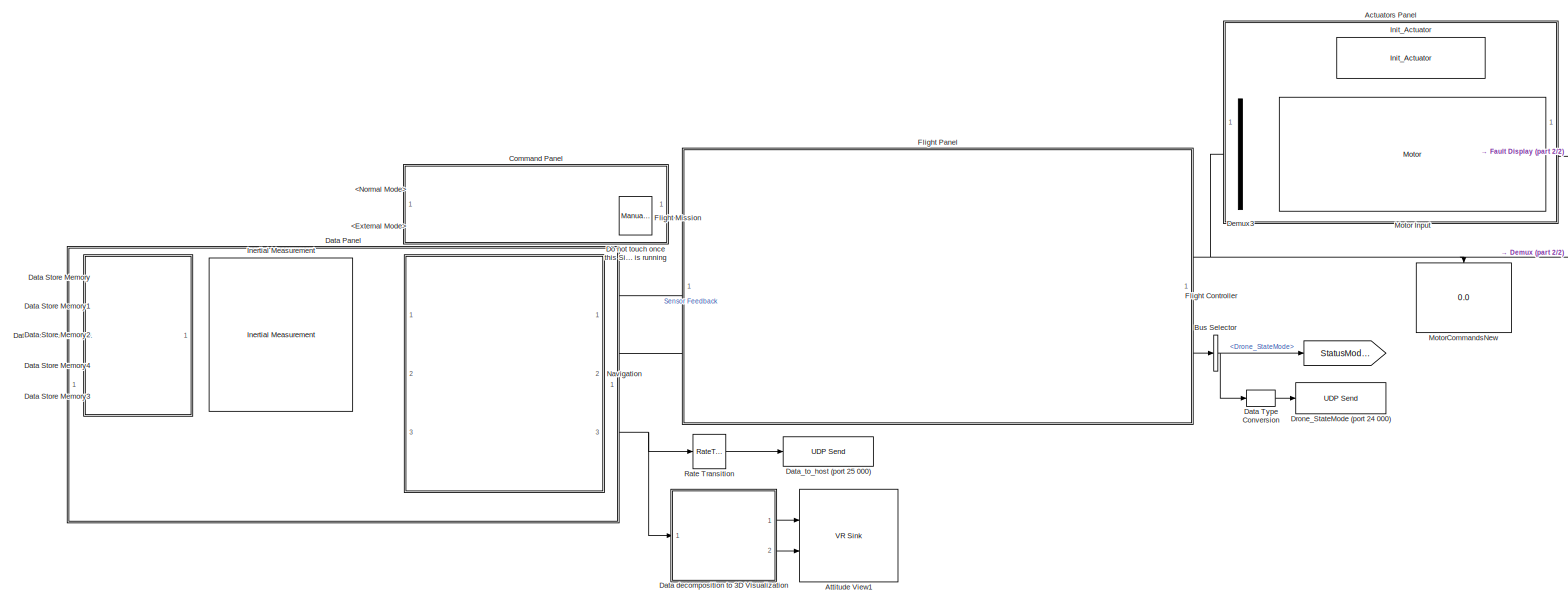
[diagram: root canvas - part 1/2, most of the canvas]
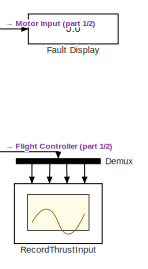
[diagram: root canvas - part 2/2, middle right region]
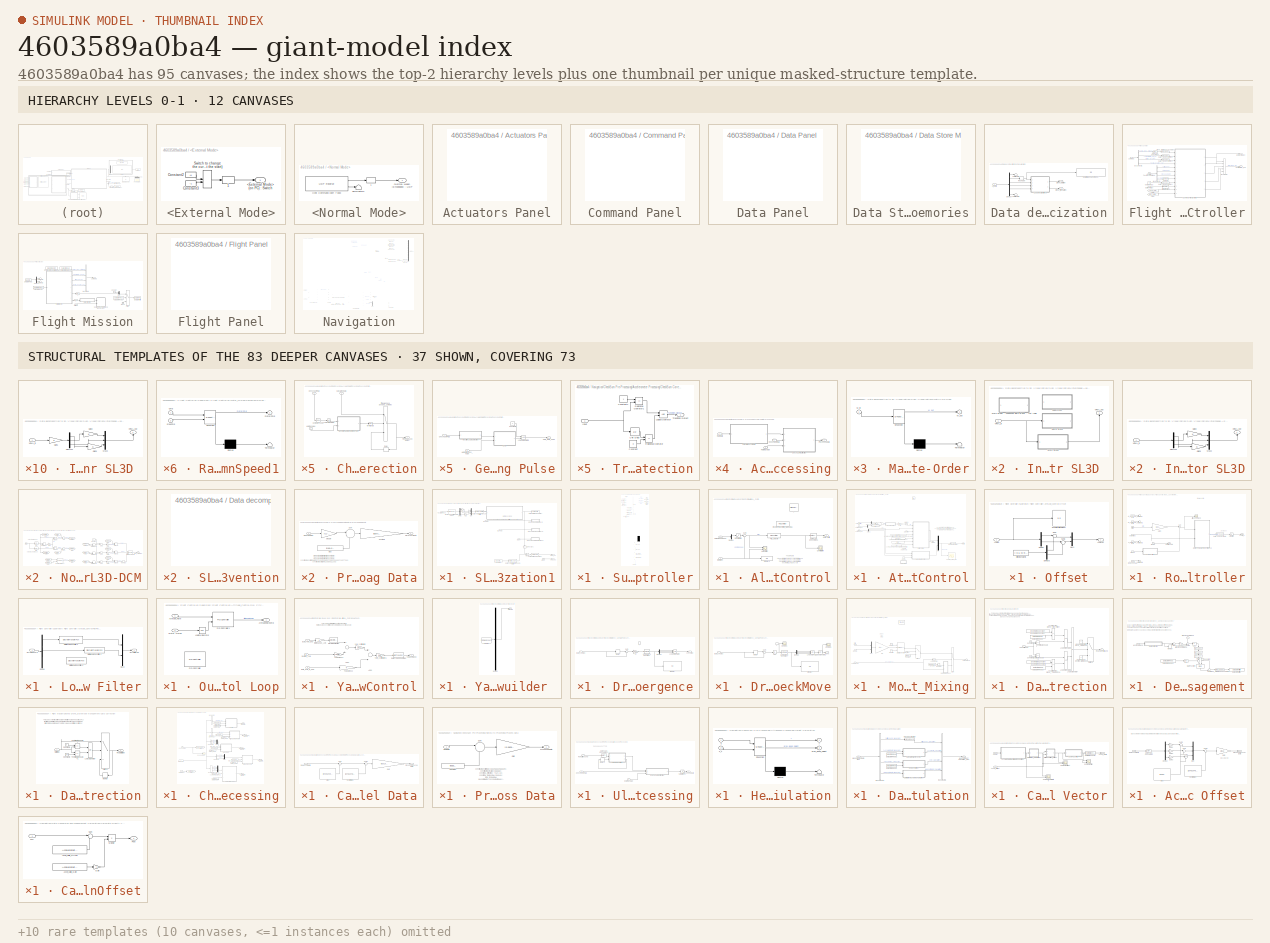
[diagram: thumbnail index - top-2 hierarchy levels (12 canvases) + 37 structural-template representatives of the remaining 83 canvases]
MODEL slx_4603589a0ba4
KIND model
BLOCK [Goto]  
  GotoTag = StatusMode_Bus
BLOCK [From]   
  GotoTag = StatusMode_Bus
BLOCK [SubSystem] <External Mode>
  Ports = [0, 1]
  RequestExecContextInheritance = off
BLOCK [DataTypeConversion] <External Mode>/ 1
  OutDataTypeStr = int16
  RndMeth = Floor
  SaturateOnIntegerOverflow = off
BLOCK [Outport] <External Mode>/<External Mode> (on PC) : Switch
  IconDisplay = Port number
BLOCK [Constant] <External Mode>/Constant2
  Value = +1
BLOCK [Constant] <External Mode>/Constant3
  Value = -1
BLOCK [ManualSwitch] <External Mode>/Switch to change the current Drone State (it has to be down at the start)
  CurrentSetting = 0
BLOCK [SubSystem] <Normal Mode>
  Ports = [0, 1]
  RequestExecContextInheritance = off
BLOCK [DataTypeConversion] <Normal Mode>/ 1
  OutDataTypeStr = int16
  RndMeth = Floor
  SaturateOnIntegerOverflow = off
BLOCK [Outport] <Normal Mode>/<Normal Mode> (Embedded) : UDP
  IconDisplay = Port number
BLOCK [Reference] <Normal Mode>/Host Command (port 7 000)  REF=dspnetwork/UDP Receive
  Ports = [0, 2]
  SourceBlock = dspnetwork/UDP Receive
  SourceType = UDP Receive
  blockPlatform = LINUX
  blockingTime = 0
  dims = 1
  isVarSize = off
  localPort = 6000
  localURL = '0.0.0.0'
  recvBufferSize = 8192
  remotePort = -1
  remoteURL = '0.0.0.0'
  sampletime = 1/400
  showBlockingTime = on
  signalDatatype = double
BLOCK [Terminator] <Normal Mode>/Terminator2
BLOCK [SubSystem] Actuators Panel
  Ports = []
  RequestExecContextInheritance = off
BLOCK [Reference] Attitude View1  REF=vrlib/VR Sink
  AllowVariableSize = off
  AutoView = off
  FieldsWritten = Drone.rotation.4.1.1.double#Drone.translation.3.1.1.double
  InstantiateOnLoad = on
  Ports = [2]
  RemoteChange = off
  RemoteView = off
  SampleTime = -1
  SourceBlock = vrlib/VR Sink
  SourceType = Virtual Reality Sink
  VideoDimensions = []
  ViewEnable = on
  WorldFileName = myDrone3.wrl
BLOCK [BusSelector] Bus Selector
  OutputSignals = Drone_StateMode
  Ports = [1, 1]
BLOCK [SubSystem] Command Panel
  Ports = []
  RequestExecContextInheritance = off
BLOCK [SubSystem] Data Panel
  Ports = []
  RequestExecContextInheritance = off
BLOCK [SubSystem] Data Store Memories
  Ports = []
  RequestExecContextInheritance = off
BLOCK [DataStoreMemory] Data Store Memory
  DataStoreName = Offset_Accel
  InitialValue = [0 0 0]
  OutDataTypeStr = double
  ReadBeforeWriteMsg = warning
  SignalType = real
  WriteAfterReadMsg = warning
  WriteAfterWriteMsg = warning
BLOCK [DataStoreMemory] Data Store Memory1
  DataStoreName = Offset_Gyro
  InitialValue = [0 0 0]
  OutDataTypeStr = double
  ReadBeforeWriteMsg = warning
  SignalType = real
  WriteAfterReadMsg = warning
  WriteAfterWriteMsg = warning
BLOCK [DataStoreMemory] Data Store Memory2
  DataStoreName = Input_ports
  InitialValue = [0 0]
  OutDataTypeStr = double
  ReadBeforeWriteMsg = warning
  SignalType = real
  WriteAfterReadMsg = warning
  WriteAfterWriteMsg = warning
BLOCK [DataStoreMemory] Data Store Memory3
  DataStoreName = Output_ports
  InitialValue = [0 0]
  OutDataTypeStr = double
  ReadBeforeWriteMsg = warning
  SignalType = real
  WriteAfterReadMsg = warning
  WriteAfterWriteMsg = warning
BLOCK [DataStoreMemory] Data Store Memory4
  DataStoreName = Flight_Mission_On_Off
  InitialValue = false
  OutDataTypeStr = boolean
  ReadBeforeWriteMsg = warning
  WriteAfterReadMsg = warning
  WriteAfterWriteMsg = warning
BLOCK [DataTypeConversion] Data Type Conversion
  OutDataTypeStr = int8
  RndMeth = Floor
  SaturateOnIntegerOverflow = off
BLOCK [SubSystem] Data decomposition to 3D Visualization
  Ports = [1, 2]
  RequestExecContextInheritance = off
BLOCK [Inport] Data decomposition to 3D Visualization/All_Data
  IconDisplay = Port number
BLOCK [Display] Data decomposition to 3D Visualization/DCM (diagonal = 1 // else 0)
  Decimation = 3
  Ports = [1]
BLOCK [Demux] Data decomposition to 3D Visualization/Demux7
  DisplayOption = bar
  Outputs = [13 9 3 3 3 3]
  Ports = [1, 6]
BLOCK [Outport] Data decomposition to 3D Visualization/Drone_rotation
  IconDisplay = Port number
BLOCK [Outport] Data decomposition to 3D Visualization/Drone_translation
  IconDisplay = Port number
  Port = 2
BLOCK [Reshape] Data decomposition to 3D Visualization/Reshape
  OutputDimensionality = Customize
  OutputDimensions = [3,3]
  Ports = [1, 1]
BLOCK [SubSystem] Data decomposition to 3D Visualization/SL3D Visualization1
  Ports = [4, 2]
  RequestExecContextInheritance = off
BLOCK [Constant] Data decomposition to 3D Visualization/SL3D Visualization1/Constant2
  Value = [90 0 90]*pi/180*1
BLOCK [Demux] Data decomposition to 3D Visualization/SL3D Visualization1/Demux
  DisplayOption = bar
  Outputs = 3
  Ports = [1, 3]
BLOCK [Reference] Data decomposition to 3D Visualization/SL3D Visualization1/Direction Cosine Matrix to Rotation Angles1  REF=aerolibtransform2/Direction Cosine Matrix
to Rotation Angles
  AttributesFormatString = Rotation Order: %<rotationOrder>
  Ports = [1, 1]
  SourceBlock = aerolibtransform2/Direction Cosine Matrix\nto Rotation Angles
  SourceType = DCM2Ang
  lim = ZeroR3
  rotationOrder = XYZ
BLOCK [Gain] Data decomposition to 3D Visualization/SL3D Visualization1/Gain
  ParamDataTypeStr = Inherit: Inherit via internal rule
  SaturateOnIntegerOverflow = off
BLOCK [Gain] Data decomposition to 3D Visualization/SL3D Visualization1/Gain1
  Gain = -1
  ParamDataTypeStr = Inherit: Inherit via internal rule
  SaturateOnIntegerOverflow = off
BLOCK [Inport] Data decomposition to 3D Visualization/SL3D Visualization1/GravVector
  IconDisplay = Port number
  Port = 2
BLOCK [Ground] Data decomposition to 3D Visualization/SL3D Visualization1/Ground
BLOCK [SubSystem] Data decomposition to 3D Visualization/SL3D Visualization1/Interchange Axes Accel for SL3D 
  Ports = [1, 1]
  RequestExecContextInheritance = off
BLOCK [Demux] Data decomposition to 3D Visualization/SL3D Visualization1/Interchange Axes Accel for SL3D /Demux1
  DisplayOption = bar
  Outputs = 3
  Ports = [1, 3]
BLOCK [Gain] Data decomposition to 3D Visualization/SL3D Visualization1/Interchange Axes Accel for SL3D /Gain1
  Gain = 3
  OutDataTypeStr = Inherit: Inherit via internal rule
  ParamDataTypeStr = Inherit: Inherit via internal rule
  SaturateOnIntegerOverflow = off
BLOCK [Gain] Data decomposition to 3D Visualization/SL3D Visualization1/Interchange Axes Accel for SL3D /Gain2
  OutDataTypeStr = Inherit: Inherit via internal rule
  ParamDataTypeStr = Inherit: Inherit via internal rule
  SaturateOnIntegerOverflow = off
BLOCK [Gain] Data decomposition to 3D Visualization/SL3D Visualization1/Interchange Axes Accel for SL3D /Gain3
  OutDataTypeStr = Inherit: Inherit via internal rule
  ParamDataTypeStr = Inherit: Inherit via internal rule
  SaturateOnIntegerOverflow = off
BLOCK [Mux] Data decomposition to 3D Visualization/SL3D Visualization1/Interchange Axes Accel for SL3D /Mux2
  DisplayOption = bar
  Inputs = 3
  Ports = [3, 1]
BLOCK [Inport] Data decomposition to 3D Visualization/SL3D Visualization1/Interchange Axes Accel for SL3D /VRML_in
  IconDisplay = Port number
BLOCK [Outport] Data decomposition to 3D Visualization/SL3D Visualization1/Interchange Axes Accel for SL3D /VRML_out
  IconDisplay = Port number
BLOCK [SubSystem] Data decomposition to 3D Visualization/SL3D Visualization1/Interchange Axes Mag for SL3D 
  Ports = [1, 1]
  RequestExecContextInheritance = off
BLOCK [SubSystem] Data decomposition to 3D Visualization/SL3D Visualization1/Interchange Axes Mag for SL3D /Home Drone
  Ports = [1, 1]
  RequestExecContextInheritance = off
BLOCK [Demux] Data decomposition to 3D Visualization/SL3D Visualization1/Interchange Axes Mag for SL3D /Home Drone/Demux1
  DisplayOption = bar
  Outputs = 3
  Ports = [1, 3]
BLOCK [Gain] Data decomposition to 3D Visualization/SL3D Visualization1/Interchange Axes Mag for SL3D /Home Drone/Gain
  Gain = -1
  OutDataTypeStr = Inherit: Inherit via internal rule
  ParamDataTypeStr = Inherit: Inherit via internal rule
  SaturateOnIntegerOverflow = off
BLOCK [Gain] Data decomposition to 3D Visualization/SL3D Visualization1/Interchange Axes Mag for SL3D /Home Drone/Gain1
  OutDataTypeStr = Inherit: Inherit via internal rule
  ParamDataTypeStr = Inherit: Inherit via internal rule
  SaturateOnIntegerOverflow = off
BLOCK [Gain] Data decomposition to 3D Visualization/SL3D Visualization1/Interchange Axes Mag for SL3D /Home Drone/Gain2
  OutDataTypeStr = Inherit: Inherit via internal rule
  ParamDataTypeStr = Inherit: Inherit via internal rule
  SaturateOnIntegerOverflow = off
BLOCK [Inport] Data decomposition to 3D Visualization/SL3D Visualization1/Interchange Axes Mag for SL3D /Home Drone/In1
  IconDisplay = Port number
BLOCK [Mux] Data decomposition to 3D Visualization/SL3D Visualization1/Interchange Axes Mag for SL3D /Home Drone/Mux2
  DisplayOption = bar
  Inputs = 3
  Ports = [3, 1]
BLOCK [Outport] Data decomposition to 3D Visualization/SL3D Visualization1/Interchange Axes Mag for SL3D /Home Drone/Out1
  IconDisplay = Port number
BLOCK [SubSystem] Data decomposition to 3D Visualization/SL3D Visualization1/Interchange Axes Mag for SL3D /Subsystem
  Commented = on
  Ports = [1, 1]
  RequestExecContextInheritance = off
BLOCK [Demux] Data decomposition to 3D Visualization/SL3D Visualization1/Interchange Axes Mag for SL3D /Subsystem/Demux1
  DisplayOption = bar
  Outputs = 3
  Ports = [1, 3]
BLOCK [Gain] Data decomposition to 3D Visualization/SL3D Visualization1/Interchange Axes Mag for SL3D /Subsystem/Gain
  OutDataTypeStr = Inherit: Inherit via internal rule
  ParamDataTypeStr = Inherit: Inherit via internal rule
  SaturateOnIntegerOverflow = off
BLOCK [Gain] Data decomposition to 3D Visualization/SL3D Visualization1/Interchange Axes Mag for SL3D /Subsystem/Gain1
  Gain = -1
  OutDataTypeStr = Inherit: Inherit via internal rule
  ParamDataTypeStr = Inherit: Inherit via internal rule
  SaturateOnIntegerOverflow = off
BLOCK [Gain] Data decomposition to 3D Visualization/SL3D Visualization1/Interchange Axes Mag for SL3D /Subsystem/Gain2
  Gain = -1
  OutDataTypeStr = Inherit: Inherit via internal rule
  ParamDataTypeStr = Inherit: Inherit via internal rule
  SaturateOnIntegerOverflow = off
BLOCK [Inport] Data decomposition to 3D Visualization/SL3D Visualization1/Interchange Axes Mag for SL3D /Subsystem/In1
  IconDisplay = Port number
BLOCK [Mux] Data decomposition to 3D Visualization/SL3D Visualization1/Interchange Axes Mag for SL3D /Subsystem/Mux2
  DisplayOption = bar
  Inputs = 3
  Ports = [3, 1]
BLOCK [Outport] Data decomposition to 3D Visualization/SL3D Visualization1/Interchange Axes Mag for SL3D /Subsystem/Out1
  IconDisplay = Port number
BLOCK [Inport] Data decomposition to 3D Visualization/SL3D Visualization1/Interchange Axes Mag for SL3D /VRML_in
  IconDisplay = Port number
BLOCK [Outport] Data decomposition to 3D Visualization/SL3D Visualization1/Interchange Axes Mag for SL3D /VRML_out
  IconDisplay = Port number
BLOCK [SubSystem] Data decomposition to 3D Visualization/SL3D Visualization1/Interchange Axes Mag for SL3D /Work Drone
  Ports = [1, 1]
  RequestExecContextInheritance = off
BLOCK [SubSystem] Data decomposition to 3D Visualization/SL3D Visualization1/Interchange Axes Mag for SL3D /Work Drone - supposed work drone .. not really
  Ports = [1, 1]
  RequestExecContextInheritance = off
BLOCK [Demux] Data decomposition to 3D Visualization/SL3D Visualization1/Interchange Axes Mag for SL3D /Work Drone - supposed work drone .. not really/Demux1
  DisplayOption = bar
  Outputs = 3
  Ports = [1, 3]
BLOCK [Gain] Data decomposition to 3D Visualization/SL3D Visualization1/Interchange Axes Mag for SL3D /Work Drone - supposed work drone .. not really/Gain
  Gain = -1
  OutDataTypeStr = Inherit: Inherit via internal rule
  ParamDataTypeStr = Inherit: Inherit via internal rule
  SaturateOnIntegerOverflow = off
BLOCK [Gain] Data decomposition to 3D Visualization/SL3D Visualization1/Interchange Axes Mag for SL3D /Work Drone - supposed work drone .. not really/Gain1
  OutDataTypeStr = Inherit: Inherit via internal rule
  ParamDataTypeStr = Inherit: Inherit via internal rule
  SaturateOnIntegerOverflow = off
BLOCK [Gain] Data decomposition to 3D Visualization/SL3D Visualization1/Interchange Axes Mag for SL3D /Work Drone - supposed work drone .. not really/Gain2
  Gain = -1
  OutDataTypeStr = Inherit: Inherit via internal rule
  ParamDataTypeStr = Inherit: Inherit via internal rule
  SaturateOnIntegerOverflow = off
BLOCK [Inport] Data decomposition to 3D Visualization/SL3D Visualization1/Interchange Axes Mag for SL3D /Work Drone - supposed work drone .. not really/In1
  IconDisplay = Port number
BLOCK [Mux] Data decomposition to 3D Visualization/SL3D Visualization1/Interchange Axes Mag for SL3D /Work Drone - supposed work drone .. not really/Mux2
  DisplayOption = bar
  Inputs = 3
  Ports = [3, 1]
BLOCK [Outport] Data decomposition to 3D Visualization/SL3D Visualization1/Interchange Axes Mag for SL3D /Work Drone - supposed work drone .. not really/Out1
  IconDisplay = Port number
BLOCK [Demux] Data decomposition to 3D Visualization/SL3D Visualization1/Interchange Axes Mag for SL3D /Work Drone/Demux1
  DisplayOption = bar
  Outputs = 3
  Ports = [1, 3]
BLOCK [Gain] Data decomposition to 3D Visualization/SL3D Visualization1/Interchange Axes Mag for SL3D /Work Drone/Gain
  Gain = -1
  OutDataTypeStr = Inherit: Inherit via internal rule
  ParamDataTypeStr = Inherit: Inherit via internal rule
  SaturateOnIntegerOverflow = off
BLOCK [Gain] Data decomposition to 3D Visualization/SL3D Visualization1/Interchange Axes Mag for SL3D /Work Drone/Gain1
  OutDataTypeStr = Inherit: Inherit via internal rule
  ParamDataTypeStr = Inherit: Inherit via internal rule
  SaturateOnIntegerOverflow = off
BLOCK [Gain] Data decomposition to 3D Visualization/SL3D Visualization1/Interchange Axes Mag for SL3D /Work Drone/Gain2
  OutDataTypeStr = Inherit: Inherit via internal rule
  ParamDataTypeStr = Inherit: Inherit via internal rule
  SaturateOnIntegerOverflow = off
BLOCK [Inport] Data decomposition to 3D Visualization/SL3D Visualization1/Interchange Axes Mag for SL3D /Work Drone/In1
  IconDisplay = Port number
BLOCK [Mux] Data decomposition to 3D Visualization/SL3D Visualization1/Interchange Axes Mag for SL3D /Work Drone/Mux2
  DisplayOption = bar
  Inputs = 3
  Ports = [3, 1]
BLOCK [Outport] Data decomposition to 3D Visualization/SL3D Visualization1/Interchange Axes Mag for SL3D /Work Drone/Out1
  IconDisplay = Port number
BLOCK [SubSystem] Data decomposition to 3D Visualization/SL3D Visualization1/Interchange Axis Mag Project for SL3D
  Ports = [1, 1]
  RequestExecContextInheritance = off
BLOCK [Demux] Data decomposition to 3D Visualization/SL3D Visualization1/Interchange Axis Mag Project for SL3D/Demux1
  DisplayOption = bar
  Outputs = 3
  Ports = [1, 3]
BLOCK [Gain] Data decomposition to 3D Visualization/SL3D Visualization1/Interchange Axis Mag Project for SL3D/Gain2
  OutDataTypeStr = Inherit: Inherit via internal rule
  ParamDataTypeStr = Inherit: Inherit via internal rule
  SaturateOnIntegerOverflow = off
BLOCK [Gain] Data decomposition to 3D Visualization/SL3D Visualization1/Interchange Axis Mag Project for SL3D/Gain3
  OutDataTypeStr = Inherit: Inherit via internal rule
  ParamDataTypeStr = Inherit: Inherit via internal rule
  SaturateOnIntegerOverflow = off
BLOCK [Mux] Data decomposition to 3D Visualization/SL3D Visualization1/Interchange Axis Mag Project for SL3D/Mux2
  DisplayOption = bar
  Inputs = 3
  Ports = [3, 1]
BLOCK [Inport] Data decomposition to 3D Visualization/SL3D Visualization1/Interchange Axis Mag Project for SL3D/VRML_in
  IconDisplay = Port number
BLOCK [Outport] Data decomposition to 3D Visualization/SL3D Visualization1/Interchange Axis Mag Project for SL3D/VRML_out
  IconDisplay = Port number
BLOCK [Inport] Data decomposition to 3D Visualization/SL3D Visualization1/MagVector
  IconDisplay = Port number
  Port = 4
BLOCK [Inport] Data decomposition to 3D Visualization/SL3D Visualization1/MagXY
  IconDisplay = Port number
  Port = 3
BLOCK [Math] Data decomposition to 3D Visualization/SL3D Visualization1/Math Function1
  Operator = transpose
  Ports = [1, 1]
BLOCK [SubSystem] Data decomposition to 3D Visualization/SL3D Visualization1/Matrix Re-Order
  ErrorFcn = Stateflow.Translate.translate
  PermitHierarchicalResolution = ExplicitOnly
  Ports = [1, 1]
  RequestExecContextInheritance = off
  SFBlockType = MATLAB Function
  TreatAsAtomicUnit = on
BLOCK [Demux] Data decomposition to 3D Visualization/SL3D Visualization1/Matrix Re-Order/ Demux 
  Outputs = 1
  Ports = [1, 1]
BLOCK [S-Function] Data decomposition to 3D Visualization/SL3D Visualization1/Matrix Re-Order/ SFunction 
  EnableBusSupport = on
  FunctionName = sf_sfun
  PortCounts = [1 2]
  Ports = [1, 2]
  Tag = Stateflow S-Function AR_Drone_Flight_Control 10
BLOCK [Terminator] Data decomposition to 3D Visualization/SL3D Visualization1/Matrix Re-Order/ Terminator 
BLOCK [Inport] Data decomposition to 3D Visualization/SL3D Visualization1/Matrix Re-Order/M_in
  IconDisplay = Port number
BLOCK [Outport] Data decomposition to 3D Visualization/SL3D Visualization1/Matrix Re-Order/M_out
  IconDisplay = Port number
BLOCK [Mux] Data decomposition to 3D Visualization/SL3D Visualization1/Mux
  DisplayOption = bar
  Inputs = 3
  Ports = [3, 1]
BLOCK [SubSystem] Data decomposition to 3D Visualization/SL3D Visualization1/Normalize SL3D-DCM
  Commented = through
  Ports = [1, 1]
  RequestExecContextInheritance = off
  TreatAsAtomicUnit = on
BLOCK [Reference] Data decomposition to 3D Visualization/SL3D Visualization1/Normalize SL3D-DCM/3x3 Cross Product  REF=aerolibutil/3x3 Cross Product
  Ports = [2, 1]
  SourceBlock = aerolibutil/3x3 Cross Product
  SourceType = CrossProduct
BLOCK [Sum] Data decomposition to 3D Visualization/SL3D Visualization1/Normalize SL3D-DCM/Add
  InputSameDT = off
  OutDataTypeStr = Inherit: Inherit via internal rule
  Ports = [2, 1]
  SaturateOnIntegerOverflow = off
BLOCK [Sum] Data decomposition to 3D Visualization/SL3D Visualization1/Normalize SL3D-DCM/Add1
  InputSameDT = off
  OutDataTypeStr = Inherit: Inherit via internal rule
  Ports = [2, 1]
  SaturateOnIntegerOverflow = off
BLOCK [Sum] Data decomposition to 3D Visualization/SL3D Visualization1/Normalize SL3D-DCM/Add2
  InputSameDT = off
  Inputs = +-
  OutDataTypeStr = Inherit: Inherit via internal rule
  Ports = [2, 1]
  SaturateOnIntegerOverflow = off
BLOCK [Sum] Data decomposition to 3D Visualization/SL3D Visualization1/Normalize SL3D-DCM/Add3
  InputSameDT = off
  Inputs = +-
  OutDataTypeStr = Inherit: Inherit via internal rule
  Ports = [2, 1]
  SaturateOnIntegerOverflow = off
BLOCK [Sum] Data decomposition to 3D Visualization/SL3D Visualization1/Normalize SL3D-DCM/Add4
  InputSameDT = off
  Inputs = +-
  OutDataTypeStr = Inherit: Inherit via internal rule
  Ports = [2, 1]
  SaturateOnIntegerOverflow = off
BLOCK [Constant] Data decomposition to 3D Visualization/SL3D Visualization1/Normalize SL3D-DCM/Constant
  OutDataTypeStr = double
  SampleTime = -1
  Value = 3
BLOCK [Inport] Data decomposition to 3D Visualization/SL3D Visualization1/Normalize SL3D-DCM/DCM
  IconDisplay = Port number
  OutDataTypeStr = double
  PortDimensions = [3,3]
BLOCK [Outport] Data decomposition to 3D Visualization/SL3D Visualization1/Normalize SL3D-DCM/DCM_normalized
  IconDisplay = Port number
  OutDataTypeStr = double
BLOCK [DotProduct] Data decomposition to 3D Visualization/SL3D Visualization1/Normalize SL3D-DCM/Dot Product
  OutDataTypeStr = Inherit: Inherit via internal rule
BLOCK [DotProduct] Data decomposition to 3D Visualization/SL3D Visualization1/Normalize SL3D-DCM/Dot Product1
  OutDataTypeStr = Inherit: Inherit via internal rule
BLOCK [DotProduct] Data decomposition to 3D Visualization/SL3D Visualization1/Normalize SL3D-DCM/Dot Product2
  OutDataTypeStr = Inherit: Inherit via internal rule
BLOCK [DotProduct] Data decomposition to 3D Visualization/SL3D Visualization1/Normalize SL3D-DCM/Dot Product3
  OutDataTypeStr = Inherit: Inherit via internal rule
BLOCK [From] Data decomposition to 3D Visualization/SL3D Visualization1/Normalize SL3D-DCM/From
  GotoTag = DCM10
BLOCK [From] Data decomposition to 3D Visualization/SL3D Visualization1/Normalize SL3D-DCM/From1
  GotoTag = DCM00
BLOCK [From] Data decomposition to 3D Visualization/SL3D Visualization1/Normalize SL3D-DCM/From2
  GotoTag = TEMP00
BLOCK [From] Data decomposition to 3D Visualization/SL3D Visualization1/Normalize SL3D-DCM/From3
  GotoTag = TEMP10
BLOCK [From] Data decomposition to 3D Visualization/SL3D Visualization1/Normalize SL3D-DCM/From4
  GotoTag = TEMP00
BLOCK [From] Data decomposition to 3D Visualization/SL3D Visualization1/Normalize SL3D-DCM/From5
  GotoTag = TEMP10
BLOCK [From] Data decomposition to 3D Visualization/SL3D Visualization1/Normalize SL3D-DCM/From6
  GotoTag = TEMP20
BLOCK [From] Data decomposition to 3D Visualization/SL3D Visualization1/Normalize SL3D-DCM/From7
  GotoTag = TEMP00
BLOCK [From] Data decomposition to 3D Visualization/SL3D Visualization1/Normalize SL3D-DCM/From8
  GotoTag = TEMP10
BLOCK [From] Data decomposition to 3D Visualization/SL3D Visualization1/Normalize SL3D-DCM/From9
  GotoTag = TEMP20
BLOCK [Gain] Data decomposition to 3D Visualization/SL3D Visualization1/Normalize SL3D-DCM/Gain
  Gain = -0.5
  OutDataTypeStr = Inherit: Inherit via internal rule
  ParamDataTypeStr = Inherit: Inherit via internal rule
  SaturateOnIntegerOverflow = off
BLOCK [Gain] Data decomposition to 3D Visualization/SL3D Visualization1/Normalize SL3D-DCM/Gain1
  Gain = 0.5
  OutDataTypeStr = single
  ParamDataTypeStr = Inherit: Inherit via internal rule
  SaturateOnIntegerOverflow = off
BLOCK [Gain] Data decomposition to 3D Visualization/SL3D Visualization1/Normalize SL3D-DCM/Gain2
  Gain = 0.5
  OutDataTypeStr = single
  ParamDataTypeStr = Inherit: Inherit via internal rule
  SaturateOnIntegerOverflow = off
BLOCK [Gain] Data decomposition to 3D Visualization/SL3D Visualization1/Normalize SL3D-DCM/Gain3
  Gain = 0.5
  OutDataTypeStr = single
  ParamDataTypeStr = Inherit: Inherit via internal rule
  SaturateOnIntegerOverflow = off
BLOCK [Goto] Data decomposition to 3D Visualization/SL3D Visualization1/Normalize SL3D-DCM/Goto
  GotoTag = DCM00
BLOCK [Goto] Data decomposition to 3D Visualization/SL3D Visualization1/Normalize SL3D-DCM/Goto1
  GotoTag = DCM10
BLOCK [Goto] Data decomposition to 3D Visualization/SL3D Visualization1/Normalize SL3D-DCM/Goto2
  GotoTag = TEMP10
BLOCK [Goto] Data decomposition to 3D Visualization/SL3D Visualization1/Normalize SL3D-DCM/Goto3
  GotoTag = TEMP00
BLOCK [Goto] Data decomposition to 3D Visualization/SL3D Visualization1/Normalize SL3D-DCM/Goto4
  GotoTag = TEMP20
BLOCK [Concatenate] Data decomposition to 3D Visualization/SL3D Visualization1/Normalize SL3D-DCM/Matrix Concatenate
  Mode = Multidimensional array
  NumInputs = 3
  Ports = [3, 1]
BLOCK [Product] Data decomposition to 3D Visualization/SL3D Visualization1/Normalize SL3D-DCM/Product
  InputSameDT = off
  OutDataTypeStr = Inherit: Inherit via internal rule
  Ports = [2, 1]
  SaturateOnIntegerOverflow = off
BLOCK [Product] Data decomposition to 3D Visualization/SL3D Visualization1/Normalize SL3D-DCM/Product1
  InputSameDT = off
  OutDataTypeStr = Inherit: Inherit via internal rule
  Ports = [2, 1]
  SaturateOnIntegerOverflow = off
BLOCK [Product] Data decomposition to 3D Visualization/SL3D Visualization1/Normalize SL3D-DCM/Product2
  InputSameDT = off
  OutDataTypeStr = Inherit: Inherit via internal rule
  Ports = [2, 1]
  SaturateOnIntegerOverflow = off
BLOCK [Product] Data decomposition to 3D Visualization/SL3D Visualization1/Normalize SL3D-DCM/Product3
  InputSameDT = off
  OutDataTypeStr = Inherit: Inherit via internal rule
  Ports = [2, 1]
  SaturateOnIntegerOverflow = off
BLOCK [Product] Data decomposition to 3D Visualization/SL3D Visualization1/Normalize SL3D-DCM/Product4
  InputSameDT = off
  OutDataTypeStr = Inherit: Inherit via internal rule
  Ports = [2, 1]
  SaturateOnIntegerOverflow = off
BLOCK [Reshape] Data decomposition to 3D Visualization/SL3D Visualization1/Normalize SL3D-DCM/Reshape
  OutputDimensionality = Row vector (2-D)
  Ports = [1, 1]
BLOCK [Selector] Data decomposition to 3D Visualization/SL3D Visualization1/Normalize SL3D-DCM/row0
  IndexMode = Zero-based
  IndexOptions = Index vector (dialog),Index vector (dialog)
  Indices = 0,[0:2]
  InputPortWidth = 3
  NumberOfDimensions = 2
  OutputSizes = 1,1
  Ports = [1, 1]
BLOCK [Selector] Data decomposition to 3D Visualization/SL3D Visualization1/Normalize SL3D-DCM/row1
  IndexMode = Zero-based
  IndexOptions = Index vector (dialog),Index vector (dialog)
  Indices = 1,[0:2]
  InputPortWidth = 3
  NumberOfDimensions = 2
  OutputSizes = 1,1
  Ports = [1, 1]
BLOCK [Product] Data decomposition to 3D Visualization/SL3D Visualization1/Product
  InputSameDT = off
  Multiplication = Matrix(*)
  OutDataTypeStr = Inherit: Inherit via internal rule
  Ports = [2, 1]
  RndMeth = Floor
  SaturateOnIntegerOverflow = off
BLOCK [Reference] Data decomposition to 3D Visualization/SL3D Visualization1/Rotation Angles to Direction Cosine Matrix  REF=aerolibtransform2/Rotation Angles to
Direction Cosine Matrix
  AttributesFormatString = Rotation Order: %<rotationOrder>
  Ports = [1, 1]
  SourceBlock = aerolibtransform2/Rotation Angles to\nDirection Cosine Matrix
  SourceType = Ang2DCM
  rotationOrder = XYZ
BLOCK [Reference] Data decomposition to 3D Visualization/SL3D Visualization1/Rotation Angles to Direction Cosine Matrix1  REF=aerolibtransform2/Rotation Angles to
Direction Cosine Matrix
  AttributesFormatString = Rotation Order: %<rotationOrder>
  Ports = [1, 1]
  SourceBlock = aerolibtransform2/Rotation Angles to\nDirection Cosine Matrix
  SourceType = Ang2DCM
  rotationOrder = XYZ
BLOCK [Reference] Data decomposition to 3D Visualization/SL3D Visualization1/Rotation Matrix to VRML Rotation1  REF=vrlib/Utilities/Rotation Matrix
to VRML Rotation
  Ports = [1, 1]
  SourceBlock = vrlib/Utilities/Rotation Matrix\nto VRML Rotation
  SourceType = Rotation Matrix to VRML Rotation
  maxzero = 1e-12
BLOCK [Reference] Data decomposition to 3D Visualization/SL3D Visualization1/Rotation Matrix to VRML Rotation2  REF=vrlib/Utilities/Rotation Matrix
to VRML Rotation
  Ports = [1, 1]
  SourceBlock = vrlib/Utilities/Rotation Matrix\nto VRML Rotation
  SourceType = Rotation Matrix to VRML Rotation
  maxzero = 1e-12
BLOCK [SubSystem] Data decomposition to 3D Visualization/SL3D Visualization1/SL3D DCM Output - used to adjust axes to fit wit SL3D convention
  Ports = []
  RequestExecContextInheritance = off
BLOCK [Outport] Data decomposition to 3D Visualization/SL3D Visualization1/VRML_out
  IconDisplay = Port number
BLOCK [Outport] Data decomposition to 3D Visualization/SL3D Visualization1/VRML_pos
  IconDisplay = Port number
  Port = 2
BLOCK [Inport] Data decomposition to 3D Visualization/SL3D Visualization1/VisualizationInput
  IconDisplay = Port number
BLOCK [Terminator] Data decomposition to 3D Visualization/Terminator2
BLOCK [Terminator] Data decomposition to 3D Visualization/Terminator3
BLOCK [Reference] Data_to_host (port 25 000)  REF=dspnetwork/UDP Send
  Ports = [1]
  SourceBlock = dspnetwork/UDP Send
  SourceType = UDP Send
  blockPlatform = LINUX
  localPort = -1
  localPortSource = Automatically determine
  localURL = '0.0.0.0'
  remotePort = 25000
  remoteURL = Host_IP_Adress
  sampletime = -1
  separateLengthPort = 0
BLOCK [Demux] Demux
  DisplayOption = bar
  Ports = [1, 4]
BLOCK [Demux] Demux3
  DisplayOption = bar
  Ports = [1, 4]
BLOCK [ManualSwitch] Do not touch once this Simulink is running
  CurrentSetting = 0
BLOCK [Reference] Drone_StateMode (port 24 000)  REF=dspnetwork/UDP Send
  Ports = [1]
  SourceBlock = dspnetwork/UDP Send
  SourceType = UDP Send
  blockPlatform = LINUX
  localPort = -1
  localPortSource = Automatically determine
  localURL = '0.0.0.0'
  remotePort = 24000
  remoteURL = Host_IP_Adress
  sampletime = -1
  separateLengthPort = 0
BLOCK [Display] Fault Display
  Decimation = 1
  Ports = [1]
BLOCK [SubSystem] Flight Controller
  Ports = [3, 2]
  RequestExecContextInheritance = off
BLOCK [Inport] Flight Controller/BatteryVoltage
  IconDisplay = Port number
  Port = 3
BLOCK [BusCreator] Flight Controller/Bus Creator
  DisplayOption = bar
  Inputs = 5
  Ports = [5, 1]
BLOCK [BusSelector] Flight Controller/Bus Selector
  OutputSignals = UltraSound,EulerAngles,ProcessedGyro,AccelNorm
  Ports = [1, 4]
BLOCK [BusSelector] Flight Controller/Bus Selector1
  OutputSignals = Desired_Drone_StateMode,Auto-Calibration_ON_OFF,Altitude_ON_OFF,Desired_Roll_Pitch_Yaw
  Ports = [1, 4]
BLOCK [Inport] Flight Controller/Command
  IconDisplay = Port number
BLOCK [Outport] Flight Controller/ControlStatus_Bus
  IconDisplay = Port number
  Port = 2
BLOCK [Inport] Flight Controller/Controller Feedback Data Bus
  IconDisplay = Port number
  Port = 2
BLOCK [DataTypeConversion] Flight Controller/Data Type Conversion1
  OutDataTypeStr = int16
  RndMeth = Floor
  SaturateOnIntegerOverflow = off
BLOCK [DataTypeConversion] Flight Controller/Data Type Conversion3
  OutDataTypeStr = int16
  RndMeth = Floor
  SaturateOnIntegerOverflow = off
BLOCK [DataTypeConversion] Flight Controller/Data Type Conversion4
  OutDataTypeStr = int16
  RndMeth = Floor
  SaturateOnIntegerOverflow = off
BLOCK [DataTypeConversion] Flight Controller/Data Type Conversion5
  OutDataTypeStr = boolean
  RndMeth = Floor
  SaturateOnIntegerOverflow = off
BLOCK [DataTypeConversion] Flight Controller/Drone_State-Mode Conversion
  OutDataTypeStr = Enum: Drone_StateModeType
  RndMeth = Floor
  SaturateOnIntegerOverflow = off
BLOCK [DiscreteTransferFcn] Flight Controller/FilterBattVoltage
  Denominator = [1 -0.9277]
  InputPortMap = u0
  Numerator = [ 0.07226]
  Ports = [1, 1]
  SampleTime = 1/400
BLOCK [From] Flight Controller/From1
  GotoTag = Gyro_data_for_offset
  TagVisibility = global
BLOCK [From] Flight Controller/From2
  GotoTag = Accel_data_for_offset
  IconDisplay = Signal name
  TagVisibility = global
BLOCK [Outport] Flight Controller/MotorCommand
  IconDisplay = Port number
BLOCK [Constant] Flight Controller/Nominal Thrust
  OutDataTypeStr = int16
  Value = 55
BLOCK [Selector] Flight Controller/Selector
  Indices = [3]
  InputPortWidth = 3
  Ports = [1, 1]
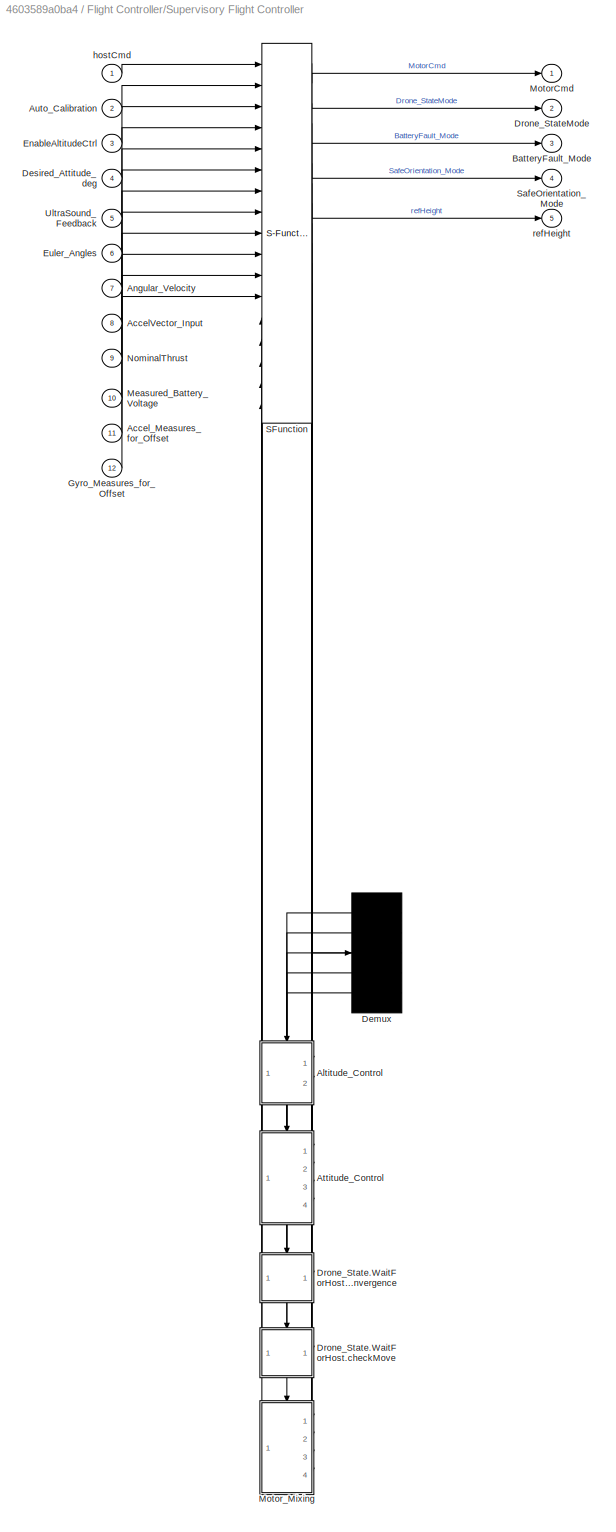
BLOCK [SubSystem] Flight Controller/Supervisory Flight Controller
  ErrorFcn = Stateflow.Translate.translate
  PermitHierarchicalResolution = ExplicitOnly
  Ports = [12, 5]
  RequestExecContextInheritance = off
  SFBlockType = Chart
  TreatAsAtomicUnit = on
BLOCK [Outport] Flight Controller/Supervisory Flight Controller/ BatteryFault_Mode
  IconDisplay = Port number
  Port = 3
BLOCK [Demux] Flight Controller/Supervisory Flight Controller/ Demux 
  Outputs = 5
  Ports = [1, 5]
BLOCK [Outport] Flight Controller/Supervisory Flight Controller/ Drone_StateMode
  IconDisplay = Port number
  Port = 2
BLOCK [S-Function] Flight Controller/Supervisory Flight Controller/ SFunction 
  EnableBusSupport = on
  FunctionName = sf_sfun
  Parameters = Accelerometer_quick_calibration,Gyrometer_quick_calibration
  PortCounts = [17 18]
  Ports = [17, 18]
  Tag = Stateflow S-Function AR_Drone_Flight_Control 12
BLOCK [Outport] Flight Controller/Supervisory Flight Controller/ SafeOrientation_Mode
  IconDisplay = Port number
  Port = 4
BLOCK [Inport] Flight Controller/Supervisory Flight Controller/AccelVector_Input
  IconDisplay = Port number
  Port = 8
BLOCK [Inport] Flight Controller/Supervisory Flight Controller/Accel_Measures_for_Offset
  IconDisplay = Port number
  Port = 11
BLOCK [SubSystem] Flight Controller/Supervisory Flight Controller/Altitude_Control
  Ports = [2, 1, 0, 1]
  PreDeleteFcn = Stateflow.SLINSF.SimulinkMan.removePreDeleteFcn
  RequestExecContextInheritance = off
  UndoDeleteFcn = Stateflow.SLINSF.SimulinkMan.restorePreDeleteFcn
BLOCK [Scope] Flight Controller/Supervisory Flight Controller/Altitude_Control/Control Effort
  DataFormat = StructureWithTime
  Floating = off
  LimitDataPoints = off
  NumInputPorts = 1
  Ports = [1]
  SampleTime = 0
  SaveName = ScopeData3
  ShowLegends = off
  YMax = 8.7875
  YMin = 8.735
BLOCK [DataTypeConversion] Flight Controller/Supervisory Flight Controller/Altitude_Control/Data Type Conversion1
  OutDataTypeStr = int16
  RndMeth = Floor
  SaturateOnIntegerOverflow = off
BLOCK [Demux] Flight Controller/Supervisory Flight Controller/Altitude_Control/Demux
  DisplayOption = bar
  Outputs = 2
  Ports = [1, 2]
BLOCK [Reference] Flight Controller/Supervisory Flight Controller/Altitude_Control/Discrete PID Controller _ WORKING1  REF=simulink/Continuous/PID Controller
  AntiWindupMode = clamping
  Commented = on
  Controller = PID
  D = 0.819231727791919*0.15
  DOutDataTypeStr = Inherit: Inherit via internal rule
  DOutMax = []
  DOutMin = []
  DParamDataTypeStr = Inherit: Inherit via internal rule
  DParamMax = []
  DParamMin = []
  ExternalReset = none
  FilterContinuousStateAttributes = ''
  FilterMethod = Forward Euler
  FilterOutDataTypeStr = Inherit: Inherit via internal rule
  FilterOutMax = []
  FilterOutMin = []
  FilterRTWStateStorageClass = Auto
  FilterStateMustResolveToSignalObject = off
  Form = Parallel
  I = 0.018136*4
  IOutDataTypeStr = Inherit: Inherit via internal rule
  IOutMax = []
  IOutMin = []
  IParamDataTypeStr = Inherit: Inherit via internal rule
  IParamMax = []
  IParamMin = []
  IgnoreLimit = off
  InitialConditionForFilter = 0
  InitialConditionForIntegrator = 0
  InitialConditionSource = internal
  IntegratorContinuousStateAttributes = ''
  IntegratorMethod = Forward Euler
  IntegratorOutDataTypeStr = Inherit: Inherit via internal rule
  IntegratorOutMax = []
  IntegratorOutMin = []
  IntegratorRTWStateStorageClass = Auto
  IntegratorStateMustResolveToSignalObject = off
  Kb = 1
  KbOutDataTypeStr = Inherit: Inherit via internal rule
  KbOutMax = []
  KbOutMin = []
  KbParamDataTypeStr = Inherit: Inherit via internal rule
  KbParamMax = []
  KbParamMin = []
  Kt = 1
  KtOutDataTypeStr = Inherit: Inherit via internal rule
  KtOutMax = []
  KtOutMin = []
  KtParamDataTypeStr = Inherit: Inherit via internal rule
  KtParamMax = []
  KtParamMin = []
  LimitOutput = on
  LinearizeAsGain = off
  LockScale = off
  LowerSaturationLimit = -20
  N = 12.5907330811849
  NOutDataTypeStr = Inherit: Inherit via internal rule
  NOutMax = []
  NOutMin = []
  NParamDataTypeStr = Inherit: Inherit via internal rule
  NParamMax = []
  NParamMin = []
  P = 0.387369235850492*0.7
  POutDataTypeStr = Inherit: Inherit via internal rule
  POutMax = []
  POutMin = []
  PParamDataTypeStr = Inherit: Inherit via internal rule
  PParamMax = []
  PParamMin = []
  Ports = [1, 1]
  RndMeth = Floor
  SampleTime = -1
  SaturateOnIntegerOverflow = off
  SaturationOutDataTypeStr = Inherit: Same as input
  SaturationOutMax = []
  SaturationOutMin = []
  SourceBlock = simulink/Continuous/PID Controller
  SourceType = PID 1dof
  SumAccumDataTypeStr = Inherit: Inherit via internal rule
  SumDAccumDataTypeStr = Inherit: Inherit via internal rule
  SumDOutDataTypeStr = Inherit: Inherit via internal rule
  SumDOutMax = []
  SumDOutMin = []
  SumI1AccumDataTypeStr = Inherit: Inherit via internal rule
  SumI1OutDataTypeStr = Inherit: Inherit via internal rule
  SumI1OutMax = []
  SumI1OutMin = []
  SumI2AccumDataTypeStr = Inherit: Inherit via internal rule
  SumI2OutDataTypeStr = Inherit: Inherit via internal rule
  SumI2OutMax = []
  SumI2OutMin = []
  SumI3AccumDataTypeStr = Inherit: Inherit via internal rule
  SumI3OutDataTypeStr = Inherit: Inherit via internal rule
  SumI3OutMax = []
  SumI3OutMin = []
  SumOutDataTypeStr = Inherit: Inherit via internal rule
  SumOutMax = []
  SumOutMin = []
  TimeDomain = Discrete-time
  TrackingMode = off
  UpperSaturationLimit = 20
  ZeroCross = on
BLOCK [Display] Flight Controller/Supervisory Flight Controller/Altitude_Control/Display3
  Decimation = 1
  Ports = [1]
BLOCK [Scope] Flight Controller/Supervisory Flight Controller/Altitude_Control/Height Error
  DataFormat = StructureWithTime
  Floating = off
  LegendLocations = 0.91293     0.92072    0.062943     0.02828\n0.88382     0.45341    0.092054     0.02828
  LimitDataPoints = off
  NumInputPorts = 2
  Ports = [2]
  SampleTime = 0
  SaveName = ScopeData13
  ShowLegends = on
  YMax = -0.08~5
  YMin = -0.1075~-5
BLOCK [Inport] Flight Controller/Supervisory Flight Controller/Altitude_Control/HeightFeedback
  IconDisplay = Port number
  OutDataTypeStr = double
  PortDimensions = 2
  SignalType = real
  VarSizeSig = No
BLOCK [Reference] Flight Controller/Supervisory Flight Controller/Altitude_Control/PID_Smooth  REF=simulink/Continuous/PID Controller
  AntiWindupMode = clamping
  Controller = PID
  D = 0.819231727791919*0.2
  DOutDataTypeStr = Inherit: Inherit via internal rule
  DOutMax = []
  DOutMin = []
  DParamDataTypeStr = Inherit: Inherit via internal rule
  DParamMax = []
  DParamMin = []
  ExternalReset = none
  FilterContinuousStateAttributes = ''
  FilterMethod = Forward Euler
  FilterOutDataTypeStr = Inherit: Inherit via internal rule
  FilterOutMax = []
  FilterOutMin = []
  FilterRTWStateStorageClass = Auto
  FilterStateMustResolveToSignalObject = off
  Form = Parallel
  I = 0.018136*4
  IOutDataTypeStr = Inherit: Inherit via internal rule
  IOutMax = []
  IOutMin = []
  IParamDataTypeStr = Inherit: Inherit via internal rule
  IParamMax = []
  IParamMin = []
  IgnoreLimit = off
  InitialConditionForFilter = 0
  InitialConditionForIntegrator = 0
  InitialConditionSource = internal
  IntegratorContinuousStateAttributes = ''
  IntegratorMethod = Forward Euler
  IntegratorOutDataTypeStr = Inherit: Inherit via internal rule
  IntegratorOutMax = []
  IntegratorOutMin = []
  IntegratorRTWStateStorageClass = Auto
  IntegratorStateMustResolveToSignalObject = off
  Kb = 1
  KbOutDataTypeStr = Inherit: Inherit via internal rule
  KbOutMax = []
  KbOutMin = []
  KbParamDataTypeStr = Inherit: Inherit via internal rule
  KbParamMax = []
  KbParamMin = []
  Kt = 1
  KtOutDataTypeStr = Inherit: Inherit via internal rule
  KtOutMax = []
  KtOutMin = []
  KtParamDataTypeStr = Inherit: Inherit via internal rule
  KtParamMax = []
  KtParamMin = []
  LimitOutput = on
  LinearizeAsGain = off
  LockScale = off
  LowerSaturationLimit = -20
  N = 12.5907330811849
  NOutDataTypeStr = Inherit: Inherit via internal rule
  NOutMax = []
  NOutMin = []
  NParamDataTypeStr = Inherit: Inherit via internal rule
  NParamMax = []
  NParamMin = []
  P = 0.387369235850492*0.9
  POutDataTypeStr = Inherit: Inherit via internal rule
  POutMax = []
  POutMin = []
  PParamDataTypeStr = Inherit: Inherit via internal rule
  PParamMax = []
  PParamMin = []
  Ports = [1, 1]
  RndMeth = Floor
  SampleTime = -1
  SaturateOnIntegerOverflow = off
  SaturationOutDataTypeStr = Inherit: Same as input
  SaturationOutMax = []
  SaturationOutMin = []
  SourceBlock = simulink/Continuous/PID Controller
  SourceType = PID 1dof
  SumAccumDataTypeStr = Inherit: Inherit via internal rule
  SumDAccumDataTypeStr = Inherit: Inherit via internal rule
  SumDOutDataTypeStr = Inherit: Inherit via internal rule
  SumDOutMax = []
  SumDOutMin = []
  SumI1AccumDataTypeStr = Inherit: Inherit via internal rule
  SumI1OutDataTypeStr = Inherit: Inherit via internal rule
  SumI1OutMax = []
  SumI1OutMin = []
  SumI2AccumDataTypeStr = Inherit: Inherit via internal rule
  SumI2OutDataTypeStr = Inherit: Inherit via internal rule
  SumI2OutMax = []
  SumI2OutMin = []
  SumI3AccumDataTypeStr = Inherit: Inherit via internal rule
  SumI3OutDataTypeStr = Inherit: Inherit via internal rule
  SumI3OutMax = []
  SumI3OutMin = []
  SumOutDataTypeStr = Inherit: Inherit via internal rule
  SumOutMax = []
  SumOutMin = []
  TimeDomain = Discrete-time
  TrackingMode = off
  UpperSaturationLimit = 20
  ZeroCross = on
BLOCK [Saturate] Flight Controller/Supervisory Flight Controller/Altitude_Control/Re-Calibrate
  AttributesFormatString = Upper: %<UpperLimit>\nLower %<LowerLimit>
  InputPortMap = u0
  LowerLimit = 0
  OutMax = 200
  OutMin = 0
  Ports = [1, 1]
  UpperLimit = 200
BLOCK [Sum] Flight Controller/Supervisory Flight Controller/Altitude_Control/Sum
  IconShape = round
  InputSameDT = off
  Inputs = |-+
  OutDataTypeStr = Inherit: Inherit via internal rule
  Ports = [2, 1]
  SaturateOnIntegerOverflow = off
BLOCK [Outport] Flight Controller/Supervisory Flight Controller/Altitude_Control/deltaThrottle
  IconDisplay = Port number
  OutDataTypeStr = int16
BLOCK [TriggerPort] Flight Controller/Supervisory Flight Controller/Altitude_Control/f
  CopyFcn = Stateflow.SLINSF.SimulinkMan.removeBlockPreDeleteFcn
  Ports = []
  PreDeleteFcn = Stateflow.SLINSF.SimulinkMan.unsafePredeleteFcn
  StatesWhenEnabling = held
  TriggerType = function-call
BLOCK [Inport] Flight Controller/Supervisory Flight Controller/Altitude_Control/refHeight
  IconDisplay = Port number
  OutDataTypeStr = double
  Port = 2
  PortDimensions = 1
  SignalType = real
  VarSizeSig = No
BLOCK [Inport] Flight Controller/Supervisory Flight Controller/Angular_Velocity
  IconDisplay = Port number
  Port = 7
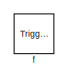
[diagram: Flight Controller/Supervisory Flight Controller/Attitude_Control - part 1/3, top center region]
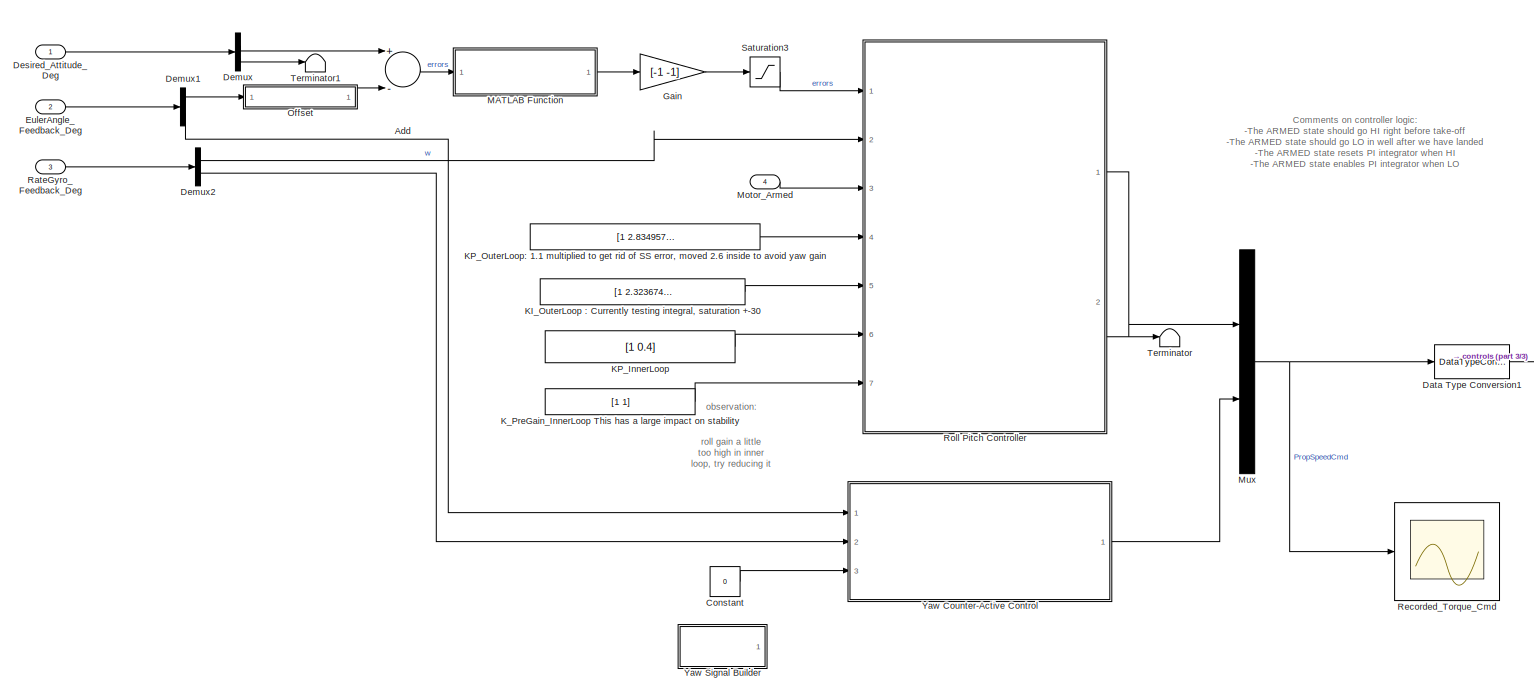
[diagram: Flight Controller/Supervisory Flight Controller/Attitude_Control - part 2/3, full width, bottom band]
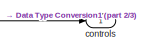
[diagram: Flight Controller/Supervisory Flight Controller/Attitude_Control - part 3/3, bottom right region]
BLOCK [SubSystem] Flight Controller/Supervisory Flight Controller/Attitude_Control
  Ports = [4, 1, 0, 1]
  PreDeleteFcn = Stateflow.SLINSF.SimulinkMan.removePreDeleteFcn
  RequestExecContextInheritance = off
  UndoDeleteFcn = Stateflow.SLINSF.SimulinkMan.restorePreDeleteFcn
BLOCK [Sum] Flight Controller/Supervisory Flight Controller/Attitude_Control/Add
  AccumDataTypeStr = single
  InputSameDT = off
  Inputs = +-
  OutDataTypeStr = single
  Ports = [2, 1]
  SaturateOnIntegerOverflow = off
BLOCK [Constant] Flight Controller/Supervisory Flight Controller/Attitude_Control/Constant
  Value = 0
BLOCK [DataTypeConversion] Flight Controller/Supervisory Flight Controller/Attitude_Control/Data Type Conversion1
  RndMeth = Floor
  SaturateOnIntegerOverflow = off
BLOCK [Demux] Flight Controller/Supervisory Flight Controller/Attitude_Control/Demux
  DisplayOption = bar
  Outputs = [2 1]
  Ports = [1, 2]
BLOCK [Demux] Flight Controller/Supervisory Flight Controller/Attitude_Control/Demux1
  DisplayOption = bar
  Outputs = [2 1]
  Ports = [1, 2]
BLOCK [Demux] Flight Controller/Supervisory Flight Controller/Attitude_Control/Demux2
  DisplayOption = bar
  Outputs = [2 1]
  Ports = [1, 2]
BLOCK [Inport] Flight Controller/Supervisory Flight Controller/Attitude_Control/Desired_Attitude_Deg
  IconDisplay = Port number
  OutDataTypeStr = double
  PortDimensions = 3
  SignalType = real
  VarSizeSig = No
BLOCK [Inport] Flight Controller/Supervisory Flight Controller/Attitude_Control/EulerAngle_Feedback_Deg
  IconDisplay = Port number
  OutDataTypeStr = double
  Port = 2
  PortDimensions = 3
  SignalType = real
  VarSizeSig = No
BLOCK [Gain] Flight Controller/Supervisory Flight Controller/Attitude_Control/Gain
  Gain = [-1 -1]
  OutDataTypeStr = Inherit: Inherit via internal rule
  ParamDataTypeStr = Inherit: Inherit via internal rule
  SaturateOnIntegerOverflow = off
BLOCK [Constant] Flight Controller/Supervisory Flight Controller/Attitude_Control/KI_OuterLoop : Currently testing integral, saturation +-30
  Commented = on
  Value = [1 2.32367440623623]
BLOCK [Constant] Flight Controller/Supervisory Flight Controller/Attitude_Control/KP_InnerLoop
  Commented = on
  Value = [1 0.4]
BLOCK [Constant] Flight Controller/Supervisory Flight Controller/Attitude_Control/KP_OuterLoop: 1.1 multiplied to get rid of SS error, moved 2.6 inside to avoid yaw gain
  Commented = on
  Value = [1 2.83495745743949]*1
BLOCK [Constant] Flight Controller/Supervisory Flight Controller/Attitude_Control/K_PreGain_InnerLoop This has a large impact on stability
  Commented = on
  Value = [1 1]
BLOCK [SubSystem] Flight Controller/Supervisory Flight Controller/Attitude_Control/MATLAB Function
  ErrorFcn = Stateflow.Translate.translate
  PermitHierarchicalResolution = ExplicitOnly
  Ports = [1, 1]
  RequestExecContextInheritance = off
  SFBlockType = MATLAB Function
  TreatAsAtomicUnit = on
BLOCK [Demux] Flight Controller/Supervisory Flight Controller/Attitude_Control/MATLAB Function/ Demux 
  Outputs = 1
  Ports = [1, 1]
BLOCK [S-Function] Flight Controller/Supervisory Flight Controller/Attitude_Control/MATLAB Function/ SFunction 
  EnableBusSupport = off
  FunctionName = sf_sfun
  PortCounts = [1 2]
  Ports = [1, 2]
  Tag = Stateflow S-Function AR_Drone_Flight_Control 13
BLOCK [Terminator] Flight Controller/Supervisory Flight Controller/Attitude_Control/MATLAB Function/ Terminator 
BLOCK [Outport] Flight Controller/Supervisory Flight Controller/Attitude_Control/MATLAB Function/err_normalized
  IconDisplay = Port number
BLOCK [Inport] Flight Controller/Supervisory Flight Controller/Attitude_Control/MATLAB Function/error
  IconDisplay = Port number
BLOCK [Inport] Flight Controller/Supervisory Flight Controller/Attitude_Control/Motor_Armed
  IconDisplay = Port number
  OutDataTypeStr = double
  Port = 4
  PortDimensions = 1
  SignalType = real
  VarSizeSig = No
BLOCK [Mux] Flight Controller/Supervisory Flight Controller/Attitude_Control/Mux
  DisplayOption = bar
  Inputs = 2
  Ports = [2, 1]
BLOCK [SubSystem] Flight Controller/Supervisory Flight Controller/Attitude_Control/Offset
  Ports = [1, 1]
  RequestExecContextInheritance = off
BLOCK [Inport] Flight Controller/Supervisory Flight Controller/Attitude_Control/Offset/AngleIn
  IconDisplay = Port number
BLOCK [Outport] Flight Controller/Supervisory Flight Controller/Attitude_Control/Offset/AngleOut
  IconDisplay = Port number
BLOCK [Demux] Flight Controller/Supervisory Flight Controller/Attitude_Control/Offset/Demux
  DisplayOption = bar
  Outputs = 2
  Ports = [1, 2]
BLOCK [Demux] Flight Controller/Supervisory Flight Controller/Attitude_Control/Offset/Demux3
  DisplayOption = bar
  Outputs = 2
  Ports = [1, 2]
BLOCK [Display] Flight Controller/Supervisory Flight Controller/Attitude_Control/Offset/Examine Offset At Rest
  Decimation = 1
  Ports = [1]
BLOCK [Mux] Flight Controller/Supervisory Flight Controller/Attitude_Control/Offset/Mux1
  DisplayOption = bar
  Inputs = 2
  Ports = [2, 1]
BLOCK [Constant] Flight Controller/Supervisory Flight Controller/Attitude_Control/Offset/Offset Constants
  OutDataTypeStr = single
  Value = [-0.6 +0.4]*0
BLOCK [Sum] Flight Controller/Supervisory Flight Controller/Attitude_Control/Offset/Sum
  IconShape = round
  InputSameDT = off
  Inputs = |++
  OutDataTypeStr = Inherit: Inherit via internal rule
  Ports = [2, 1]
  SaturateOnIntegerOverflow = off
BLOCK [Sum] Flight Controller/Supervisory Flight Controller/Attitude_Control/Offset/Sum1
  IconShape = round
  InputSameDT = off
  Inputs = |++
  OutDataTypeStr = Inherit: Inherit via internal rule
  Ports = [2, 1]
  SaturateOnIntegerOverflow = off
BLOCK [Inport] Flight Controller/Supervisory Flight Controller/Attitude_Control/RateGyro_Feedback_Deg
  IconDisplay = Port number
  OutDataTypeStr = double
  Port = 3
  PortDimensions = 3
  SignalType = real
  VarSizeSig = No
BLOCK [Scope] Flight Controller/Supervisory Flight Controller/Attitude_Control/Recorded_Torque_Cmd
  DataFormat = StructureWithTime
  Floating = off
  LimitDataPoints = off
  NumInputPorts = 1
  Ports = [1]
  SampleTime = 0
  SaveName = Toqrue_Input
  SaveToWorkspace = on
  ShowLegends = off
  TimeRange = 30
  YMax = 30
  YMin = -30
  ZoomMode = yonly
BLOCK [SubSystem] Flight Controller/Supervisory Flight Controller/Attitude_Control/Roll Pitch Controller
  Ports = [7, 2]
  RequestExecContextInheritance = off
  TreatAsAtomicUnit = on
BLOCK [Scope] Flight Controller/Supervisory Flight Controller/Attitude_Control/Roll Pitch Controller/Attitude Command
  DataFormat = StructureWithTime
  Floating = off
  LimitDataPoints = off
  NumInputPorts = 1
  Ports = [1]
  SampleTime = 0
  SaveName = AttitudeRateCtrl_Cmd
  SaveToWorkspace = on
  ShowLegends = off
BLOCK [Outport] Flight Controller/Supervisory Flight Controller/Attitude_Control/Roll Pitch Controller/Control_U
  IconDisplay = Port number
BLOCK [DataTypeConversion] Flight Controller/Supervisory Flight Controller/Attitude_Control/Roll Pitch Controller/Data Type Conversion
  OutDataTypeStr = int16
  RndMeth = Nearest
  SaturateOnIntegerOverflow = off
BLOCK [Gain] Flight Controller/Supervisory Flight Controller/Attitude_Control/Roll Pitch Controller/Gain4
  Gain = [1.3 1.3]*4  %used to be *7
  OutDataTypeStr = Inherit: Inherit via internal rule
  ParamDataTypeStr = Inherit: Inherit via internal rule
  SaturateOnIntegerOverflow = off
BLOCK [Ground] Flight Controller/Supervisory Flight Controller/Attitude_Control/Roll Pitch Controller/Ground
BLOCK [Inport] Flight Controller/Supervisory Flight Controller/Attitude_Control/Roll Pitch Controller/KI_OuterLoop_GAIN
  IconDisplay = Port number
  Port = 5
BLOCK [Inport] Flight Controller/Supervisory Flight Controller/Attitude_Control/Roll Pitch Controller/KP_InnerLoop_GAIN
  IconDisplay = Port number
  Port = 6
BLOCK [Inport] Flight Controller/Supervisory Flight Controller/Attitude_Control/Roll Pitch Controller/KP_OuterLoop_GAIN
  IconDisplay = Port number
  Port = 4
BLOCK [Inport] Flight Controller/Supervisory Flight Controller/Attitude_Control/Roll Pitch Controller/K_PreGain_InnerLoop_GAIN
  IconDisplay = Port number
  Port = 7
BLOCK [SubSystem] Flight Controller/Supervisory Flight Controller/Attitude_Control/Roll Pitch Controller/Low Pass Filter
  Ports = [1, 1]
  RequestExecContextInheritance = off
BLOCK [Demux] Flight Controller/Supervisory Flight Controller/Attitude_Control/Roll Pitch Controller/Low Pass Filter/Demux
  DisplayOption = bar
  Outputs = 2
  Ports = [1, 2]
BLOCK [DiscreteTransferFcn] Flight Controller/Supervisory Flight Controller/Attitude_Control/Roll Pitch Controller/Low Pass Filter/Digital Low Pass Filter1
  Denominator = [1 -0.9512]
  InputPortMap = u0
  Numerator = [0.04877]
  OutDataTypeStr = int16
  Ports = [1, 1]
BLOCK [DiscreteTransferFcn] Flight Controller/Supervisory Flight Controller/Attitude_Control/Roll Pitch Controller/Low Pass Filter/Digital Low Pass Filter2
  Denominator = [1 -0.9512]
  InputPortMap = u0
  Numerator = [0.04877]
  OutDataTypeStr = int16
  Ports = [1, 1]
BLOCK [DiscreteTransferFcn] Flight Controller/Supervisory Flight Controller/Attitude_Control/Roll Pitch Controller/Low Pass Filter/Digital Low Pass Filter3
  Commented = on
  Denominator = [1 -0.9512]
  InputPortMap = u0
  Numerator = [0.04877]
  OutDataTypeStr = int16
  Ports = [1, 1]
BLOCK [Outport] Flight Controller/Supervisory Flight Controller/Attitude_Control/Roll Pitch Controller/Low Pass Filter/GyroFiltered
  IconDisplay = Port number
BLOCK [Inport] Flight Controller/Supervisory Flight Controller/Attitude_Control/Roll Pitch Controller/Low Pass Filter/GyroMeasure
  IconDisplay = Port number
BLOCK [Mux] Flight Controller/Supervisory Flight Controller/Attitude_Control/Roll Pitch Controller/Low Pass Filter/Mux3
  DisplayOption = bar
  Inputs = 2
  Ports = [2, 1]
BLOCK [Inport] Flight Controller/Supervisory Flight Controller/Attitude_Control/Roll Pitch Controller/MotorArmed
  IconDisplay = Port number
  Port = 3
BLOCK [Inport] Flight Controller/Supervisory Flight Controller/Attitude_Control/Roll Pitch Controller/Omega
  IconDisplay = Port number
  Port = 2
BLOCK [SubSystem] Flight Controller/Supervisory Flight Controller/Attitude_Control/Roll Pitch Controller/Outer Loop Euler Angle Control Loop
  Ports = [2, 1]
  RequestExecContextInheritance = off
BLOCK [Outport] Flight Controller/Supervisory Flight Controller/Attitude_Control/Roll Pitch Controller/Outer Loop Euler Angle Control Loop/AttitudeRateCmd
  IconDisplay = Port number
BLOCK [Inport] Flight Controller/Supervisory Flight Controller/Attitude_Control/Roll Pitch Controller/Outer Loop Euler Angle Control Loop/Attitude_Rate
  IconDisplay = Port number
BLOCK [Logic] Flight Controller/Supervisory Flight Controller/Attitude_Control/Roll Pitch Controller/Outer Loop Euler Angle Control Loop/Logical Operator
  AllPortsSameDT = off
  Operator = NOT
  OutDataTypeStr = boolean
  Ports = [1, 1]
BLOCK [Inport] Flight Controller/Supervisory Flight Controller/Attitude_Control/Roll Pitch Controller/Outer Loop Euler Angle Control Loop/Motor Armed
  IconDisplay = Port number
  Port = 2
BLOCK [Reference] Flight Controller/Supervisory Flight Controller/Attitude_Control/Roll Pitch Controller/Outer Loop Euler Angle Control Loop/PID Controller  REF=simulink/Continuous/PID Controller
  AntiWindupMode = clamping
  Controller = PID
  D = 0.023379
  DOutDataTypeStr = Inherit: Inherit via internal rule
  DOutMax = []
  DOutMin = []
  DParamDataTypeStr = Inherit: Inherit via internal rule
  DParamMax = []
  DParamMin = []
  ExternalReset = level
  FilterContinuousStateAttributes = ''
  FilterMethod = Forward Euler
  FilterOutDataTypeStr = Inherit: Inherit via internal rule
  FilterOutMax = []
  FilterOutMin = []
  FilterRTWStateStorageClass = Auto
  FilterStateMustResolveToSignalObject = off
  Form = Parallel
  I = 28.23
  IOutDataTypeStr = Inherit: Inherit via internal rule
  IOutMax = []
  IOutMin = []
  IParamDataTypeStr = Inherit: Inherit via internal rule
  IParamMax = []
  IParamMin = []
  IgnoreLimit = off
  InitialConditionForFilter = 0
  InitialConditionForIntegrator = 0
  InitialConditionSource = internal
  IntegratorContinuousStateAttributes = ''
  IntegratorMethod = Forward Euler
  IntegratorOutDataTypeStr = Inherit: Inherit via internal rule
  IntegratorOutMax = []
  IntegratorOutMin = []
  IntegratorRTWStateStorageClass = Auto
  IntegratorStateMustResolveToSignalObject = off
  Kb = 1
  KbOutDataTypeStr = Inherit: Inherit via internal rule
  KbOutMax = []
  KbOutMin = []
  KbParamDataTypeStr = Inherit: Inherit via internal rule
  KbParamMax = []
  KbParamMin = []
  Kt = 1
  KtOutDataTypeStr = Inherit: Inherit via internal rule
  KtOutMax = []
  KtOutMin = []
  KtParamDataTypeStr = Inherit: Inherit via internal rule
  KtParamMax = []
  KtParamMin = []
  LimitOutput = on
  LinearizeAsGain = on
  LockScale = off
  LowerSaturationLimit = -30
  N = 0.0076593
  NOutDataTypeStr = Inherit: Inherit via internal rule
  NOutMax = []
  NOutMin = []
  NParamDataTypeStr = Inherit: Inherit via internal rule
  NParamMax = []
  NParamMin = []
  P = 2.8281
  POutDataTypeStr = Inherit: Inherit via internal rule
  POutMax = []
  POutMin = []
  PParamDataTypeStr = Inherit: Inherit via internal rule
  PParamMax = []
  PParamMin = []
  Ports = [2, 1]
  RndMeth = Floor
  SampleTime = -1
  SaturateOnIntegerOverflow = off
  SaturationOutDataTypeStr = Inherit: Same as input
  SaturationOutMax = []
  SaturationOutMin = []
  SourceBlock = simulink/Continuous/PID Controller
  SourceType = PID 1dof
  SumAccumDataTypeStr = Inherit: Inherit via internal rule
  SumDAccumDataTypeStr = Inherit: Inherit via internal rule
  SumDOutDataTypeStr = Inherit: Inherit via internal rule
  SumDOutMax = []
  SumDOutMin = []
  SumI1AccumDataTypeStr = Inherit: Inherit via internal rule
  SumI1OutDataTypeStr = Inherit: Inherit via internal rule
  SumI1OutMax = []
  SumI1OutMin = []
  SumI2AccumDataTypeStr = Inherit: Inherit via internal rule
  SumI2OutDataTypeStr = Inherit: Inherit via internal rule
  SumI2OutMax = []
  SumI2OutMin = []
  SumI3AccumDataTypeStr = Inherit: Inherit via internal rule
  SumI3OutDataTypeStr = Inherit: Inherit via internal rule
  SumI3OutMax = []
  SumI3OutMin = []
  SumOutDataTypeStr = Inherit: Inherit via internal rule
  SumOutMax = []
  SumOutMin = []
  TimeDomain = Discrete-time
  TrackingMode = off
  UpperSaturationLimit = 30
  ZeroCross = on
BLOCK [Reference] Flight Controller/Supervisory Flight Controller/Attitude_Control/Roll Pitch Controller/Outer Loop Euler Angle Control Loop/PID Controller1  REF=simulink/Continuous/PID Controller
  AntiWindupMode = clamping
  Controller = PID
  D = -0.011755
  DOutDataTypeStr = Inherit: Inherit via internal rule
  DOutMax = []
  DOutMin = []
  DParamDataTypeStr = Inherit: Inherit via internal rule
  DParamMax = []
  DParamMin = []
  ExternalReset = level
  FilterContinuousStateAttributes = ''
  FilterMethod = Forward Euler
  FilterOutDataTypeStr = Inherit: Inherit via internal rule
  FilterOutMax = []
  FilterOutMin = []
  FilterRTWStateStorageClass = Auto
  FilterStateMustResolveToSignalObject = off
  Form = Parallel
  I = 0.13631*2
  IOutDataTypeStr = Inherit: Inherit via internal rule
  IOutMax = []
  IOutMin = []
  IParamDataTypeStr = Inherit: Inherit via internal rule
  IParamMax = []
  IParamMin = []
  IgnoreLimit = off
  InitialConditionForFilter = 0
  InitialConditionForIntegrator = 0
  InitialConditionSource = internal
  IntegratorContinuousStateAttributes = ''
  IntegratorMethod = Forward Euler
  IntegratorOutDataTypeStr = Inherit: Inherit via internal rule
  IntegratorOutMax = []
  IntegratorOutMin = []
  IntegratorRTWStateStorageClass = Auto
  IntegratorStateMustResolveToSignalObject = off
  Kb = 1
  KbOutDataTypeStr = Inherit: Inherit via internal rule
  KbOutMax = []
  KbOutMin = []
  KbParamDataTypeStr = Inherit: Inherit via internal rule
  KbParamMax = []
  KbParamMin = []
  Kt = 1
  KtOutDataTypeStr = Inherit: Inherit via internal rule
  KtOutMax = []
  KtOutMin = []
  KtParamDataTypeStr = Inherit: Inherit via internal rule
  KtParamMax = []
  KtParamMin = []
  LimitOutput = on
  LinearizeAsGain = on
  LockScale = off
  LowerSaturationLimit = -30
  N = 5
  NOutDataTypeStr = Inherit: Inherit via internal rule
  NOutMax = []
  NOutMin = []
  NParamDataTypeStr = Inherit: Inherit via internal rule
  NParamMax = []
  NParamMin = []
  P = 0.10084*2
  POutDataTypeStr = Inherit: Inherit via internal rule
  POutMax = []
  POutMin = []
  PParamDataTypeStr = Inherit: Inherit via internal rule
  PParamMax = []
  PParamMin = []
  Ports = [2, 1]
  RndMeth = Floor
  SampleTime = -1
  SaturateOnIntegerOverflow = off
  SaturationOutDataTypeStr = Inherit: Same as input
  SaturationOutMax = []
  SaturationOutMin = []
  SourceBlock = simulink/Continuous/PID Controller
  SourceType = PID 1dof
  SumAccumDataTypeStr = Inherit: Inherit via internal rule
  SumDAccumDataTypeStr = Inherit: Inherit via internal rule
  SumDOutDataTypeStr = Inherit: Inherit via internal rule
  SumDOutMax = []
  SumDOutMin = []
  SumI1AccumDataTypeStr = Inherit: Inherit via internal rule
  SumI1OutDataTypeStr = Inherit: Inherit via internal rule
  SumI1OutMax = []
  SumI1OutMin = []
  SumI2AccumDataTypeStr = Inherit: Inherit via internal rule
  SumI2OutDataTypeStr = Inherit: Inherit via internal rule
  SumI2OutMax = []
  SumI2OutMin = []
  SumI3AccumDataTypeStr = Inherit: Inherit via internal rule
  SumI3OutDataTypeStr = Inherit: Inherit via internal rule
  SumI3OutMax = []
  SumI3OutMin = []
  SumOutDataTypeStr = Inherit: Inherit via internal rule
  SumOutMax = []
  SumOutMin = []
  TimeDomain = Discrete-time
  TrackingMode = off
  UpperSaturationLimit = 30
  ZeroCross = on
BLOCK [Saturate] Flight Controller/Supervisory Flight Controller/Attitude_Control/Roll Pitch Controller/Saturation
  AttributesFormatString = %<LowerLimit>\nto\n%<UpperLimit>
  InputPortMap = u0
  LowerLimit = -250
  OutDataTypeStr = int16
  Ports = [1, 1]
  UpperLimit = 250
BLOCK [Outport] Flight Controller/Supervisory Flight Controller/Attitude_Control/Roll Pitch Controller/Saturation Flag
  IconDisplay = Port number
  Port = 2
BLOCK [Sum] Flight Controller/Supervisory Flight Controller/Attitude_Control/Roll Pitch Controller/Sum
  IconShape = round
  InputSameDT = off
  Inputs = |+-
  OutDataTypeStr = Inherit: Inherit via internal rule
  Ports = [2, 1]
  SaturateOnIntegerOverflow = off
BLOCK [Terminator] Flight Controller/Supervisory Flight Controller/Attitude_Control/Roll Pitch Controller/Terminator
BLOCK [Terminator] Flight Controller/Supervisory Flight Controller/Attitude_Control/Roll Pitch Controller/Terminator1
BLOCK [Terminator] Flight Controller/Supervisory Flight Controller/Attitude_Control/Roll Pitch Controller/Terminator2
BLOCK [Terminator] Flight Controller/Supervisory Flight Controller/Attitude_Control/Roll Pitch Controller/Terminator3
BLOCK [Inport] Flight Controller/Supervisory Flight Controller/Attitude_Control/Roll Pitch Controller/errors
  IconDisplay = Port number
BLOCK [Saturate] Flight Controller/Supervisory Flight Controller/Attitude_Control/Saturation3
  AttributesFormatString = %<LowerLimit> to %<UpperLimit>
  InputPortMap = u0
  LowerLimit = [-25 -25]
  OutDataTypeStr = single
  Ports = [1, 1]
  UpperLimit = [25 25]
BLOCK [Terminator] Flight Controller/Supervisory Flight Controller/Attitude_Control/Terminator
BLOCK [Terminator] Flight Controller/Supervisory Flight Controller/Attitude_Control/Terminator1
BLOCK [SubSystem] Flight Controller/Supervisory Flight Controller/Attitude_Control/Yaw Counter-Active Control
  Ports = [3, 1]
  RequestExecContextInheritance = off
BLOCK [Sum] Flight Controller/Supervisory Flight Controller/Attitude_Control/Yaw Counter-Active Control/Add1
  AccumDataTypeStr = single
  InputSameDT = off
  Inputs = +-
  OutDataTypeStr = single
  Ports = [2, 1]
  SaturateOnIntegerOverflow = off
BLOCK [Sum] Flight Controller/Supervisory Flight Controller/Attitude_Control/Yaw Counter-Active Control/Add2
  AccumDataTypeStr = single
  InputSameDT = off
  Inputs = +-
  OutDataTypeStr = single
  Ports = [2, 1]
  SaturateOnIntegerOverflow = off
BLOCK [DataTypeConversion] Flight Controller/Supervisory Flight Controller/Attitude_Control/Yaw Counter-Active Control/Data Type Conversion
  OutDataTypeStr = int16
  RndMeth = Floor
  SaturateOnIntegerOverflow = off
BLOCK [Inport] Flight Controller/Supervisory Flight Controller/Attitude_Control/Yaw Counter-Active Control/Desired_yaw 
  IconDisplay = Port number
  Port = 3
BLOCK [Reference] Flight Controller/Supervisory Flight Controller/Attitude_Control/Yaw Counter-Active Control/Discrete Derivative  REF=simulink/Discrete/Discrete Derivative
  DoSatur = off
  ICPrevScaledInput = 0.0
  InputProcessing = Inherited
  LockScale = off
  OutDataType = fixdt(1, 16)
  OutDataTypeStr = Inherit: Inherit via internal rule
  OutMax = []
  OutMin = []
  OutScaling = 2^-10
  OutputDataTypeScalingMode = Inherit via internal rule
  Ports = [1, 1]
  RndMeth = Floor
  SourceBlock = simulink/Discrete/Discrete Derivative
  SourceType = Discrete Derivative
  gainval = 1.0
BLOCK [Inport] Flight Controller/Supervisory Flight Controller/Attitude_Control/Yaw Counter-Active Control/Euler_Yaw_Deg
  IconDisplay = Port number
BLOCK [Gain] Flight Controller/Supervisory Flight Controller/Attitude_Control/Yaw Counter-Active Control/InterChange_Axis
  AttributesFormatString = %<Gain>
  Gain = -1
  OutDataTypeStr = single
  ParamDataTypeStr = single
  SaturateOnIntegerOverflow = off
BLOCK [Inport] Flight Controller/Supervisory Flight Controller/Attitude_Control/Yaw Counter-Active Control/Rate_Gyro_R_deg
  IconDisplay = Port number
  Port = 2
BLOCK [Gain] Flight Controller/Supervisory Flight Controller/Attitude_Control/Yaw Counter-Active Control/To Degrees2
  AttributesFormatString = %<Gain>
  Gain = 180/pi
  OutDataTypeStr = single
  ParamDataTypeStr = single
  SaturateOnIntegerOverflow = off
BLOCK [Gain] Flight Controller/Supervisory Flight Controller/Attitude_Control/Yaw Counter-Active Control/To Degrees3
  AttributesFormatString = %<Gain>
  OutDataTypeStr = single
  ParamDataTypeStr = single
  SaturateOnIntegerOverflow = off
BLOCK [Outport] Flight Controller/Supervisory Flight Controller/Attitude_Control/Yaw Counter-Active Control/YawCommand
  IconDisplay = Port number
BLOCK [Gain] Flight Controller/Supervisory Flight Controller/Attitude_Control/Yaw Counter-Active Control/Yaw_contribution
  AttributesFormatString = %<Gain>
  Gain = 2.5*2
  OutDataTypeStr = single
  ParamDataTypeStr = single
  SaturateOnIntegerOverflow = off
BLOCK [Gain] Flight Controller/Supervisory Flight Controller/Attitude_Control/Yaw Counter-Active Control/Yaw_contribution1
  AttributesFormatString = %<Gain>
  Gain = 0.06
  OutDataTypeStr = single
  ParamDataTypeStr = single
  SaturateOnIntegerOverflow = off
BLOCK [SubSystem] Flight Controller/Supervisory Flight Controller/Attitude_Control/Yaw Signal Builder 
  ClipboardFcn = sigbuilder_block('clipboard');
  CloseFcn = sigbuilder_block('close');
  Commented = on
  ContinueFcn = sigbuilder_block('continue');
  CopyFcn = sigbuilder_block('copy');
  DeleteFcn = sigbuilder_block('delete');
  LoadFcn = sigbuilder_block('load');
  MaskHideContents = on
  ModelCloseFcn = sigbuilder_block('modelClose');
  NameChangeFcn = sigbuilder_block('namechange');
  OpenFcn = sigbuilder_block('open',[437.25 118.5 550.5 394.5 ]);
  PauseFcn = sigbuilder_block('pause');
  Ports = [0, 1]
  PreSaveFcn = sigbuilder_block('preSave');
  RequestExecContextInheritance = off
  StartFcn = sigbuilder_block('start');
  StopFcn = sigbuilder_block('stop');
  Tag = STV Subsys
BLOCK [Demux] Flight Controller/Supervisory Flight Controller/Attitude_Control/Yaw Signal Builder /Demux
  Outputs = 1
  Ports = [1, 1]
  Tag = STV Demux
BLOCK [FromWorkspace] Flight Controller/Supervisory Flight Controller/Attitude_Control/Yaw Signal Builder /FromWs
  Tag = STV FromWs
  VariableName = tuvar
  ZeroCross = on
BLOCK [Outport] Flight Controller/Supervisory Flight Controller/Attitude_Control/Yaw Signal Builder /Signal 1
  IconDisplay = Port number
  Tag = STV Outport
BLOCK [Outport] Flight Controller/Supervisory Flight Controller/Attitude_Control/controls
  IconDisplay = Port number
  InitialOutput = 0
  OutDataTypeStr = int16
  PortDimensions = 3
BLOCK [TriggerPort] Flight Controller/Supervisory Flight Controller/Attitude_Control/f
  CopyFcn = Stateflow.SLINSF.SimulinkMan.removeBlockPreDeleteFcn
  Ports = []
  PreDeleteFcn = Stateflow.SLINSF.SimulinkMan.unsafePredeleteFcn
  StatesWhenEnabling = held
  TriggerType = function-call
BLOCK [Inport] Flight Controller/Supervisory Flight Controller/Auto_Calibration
  IconDisplay = Port number
  Port = 2
BLOCK [Inport] Flight Controller/Supervisory Flight Controller/Desired_Attitude_deg
  IconDisplay = Port number
  Port = 4
BLOCK [SubSystem] Flight Controller/Supervisory Flight Controller/Drone_State.WaitForHost.checkConvergence
  Ports = [1, 1, 0, 1]
  PreDeleteFcn = Stateflow.SLINSF.SimulinkMan.removePreDeleteFcn
  RequestExecContextInheritance = off
  UndoDeleteFcn = Stateflow.SLINSF.SimulinkMan.restorePreDeleteFcn
BLOCK [Reference] Flight Controller/Supervisory Flight Controller/Drone_State.WaitForHost.checkConvergence/Compare To Constant  REF=simulink/Logic and Bit
Operations/Compare
To Constant
  OutDataTypeStr = boolean
  Ports = [1, 1]
  SourceBlock = simulink/Logic and Bit\nOperations/Compare\nTo Constant
  SourceType = Compare To Constant
  ZeroCross = on
  const = 0.00001
  relop = <
BLOCK [Delay] Flight Controller/Supervisory Flight Controller/Drone_State.WaitForHost.checkConvergence/Delay
  DelayLength = 1
  InitialCondition = inf
  InputPortMap = u0
  Ports = [1, 1]
BLOCK [Demux] Flight Controller/Supervisory Flight Controller/Drone_State.WaitForHost.checkConvergence/Demux
  DisplayOption = bar
  Outputs = 3
  Ports = [1, 3]
BLOCK [Display] Flight Controller/Supervisory Flight Controller/Drone_State.WaitForHost.checkConvergence/Display
  Decimation = 1
  Ports = [1]
BLOCK [Inport] Flight Controller/Supervisory Flight Controller/Drone_State.WaitForHost.checkConvergence/Euler_Angles
  IconDisplay = Port number
  OutDataTypeStr = double
  PortDimensions = 3
  SignalType = real
  VarSizeSig = No
BLOCK [Logic] Flight Controller/Supervisory Flight Controller/Drone_State.WaitForHost.checkConvergence/Logical Operator
  AllPortsSameDT = off
  Inputs = 3
  OutDataTypeStr = boolean
  Ports = [3, 1]
BLOCK [Sum] Flight Controller/Supervisory Flight Controller/Drone_State.WaitForHost.checkConvergence/Sum
  IconShape = round
  InputSameDT = off
  Inputs = |+-
  OutDataTypeStr = Inherit: Inherit via internal rule
  Ports = [2, 1]
  SaturateOnIntegerOverflow = off
BLOCK [Outport] Flight Controller/Supervisory Flight Controller/Drone_State.WaitForHost.checkConvergence/converge
  IconDisplay = Port number
BLOCK [Gain] Flight Controller/Supervisory Flight Controller/Drone_State.WaitForHost.checkConvergence/dt
  Gain = 1/400
  OutDataTypeStr = Inherit: Inherit via internal rule
  ParamDataTypeStr = Inherit: Inherit via internal rule
  SaturateOnIntegerOverflow = off
BLOCK [TriggerPort] Flight Controller/Supervisory Flight Controller/Drone_State.WaitForHost.checkConvergence/f
  CopyFcn = Stateflow.SLINSF.SimulinkMan.removeBlockPreDeleteFcn
  Ports = []
  PreDeleteFcn = Stateflow.SLINSF.SimulinkMan.unsafePredeleteFcn
  StatesWhenEnabling = held
  TriggerType = function-call
BLOCK [SubSystem] Flight Controller/Supervisory Flight Controller/Drone_State.WaitForHost.checkMove
  Ports = [1, 1, 0, 1]
  PreDeleteFcn = Stateflow.SLINSF.SimulinkMan.removePreDeleteFcn
  RequestExecContextInheritance = off
  UndoDeleteFcn = Stateflow.SLINSF.SimulinkMan.restorePreDeleteFcn
BLOCK [Abs] Flight Controller/Supervisory Flight Controller/Drone_State.WaitForHost.checkMove/Abs
  SaturateOnIntegerOverflow = off
BLOCK [Reference] Flight Controller/Supervisory Flight Controller/Drone_State.WaitForHost.checkMove/Compare To Constant  REF=simulink/Logic and Bit
Operations/Compare
To Constant
  OutDataTypeStr = boolean
  Ports = [1, 1]
  SourceBlock = simulink/Logic and Bit\nOperations/Compare\nTo Constant
  SourceType = Compare To Constant
  ZeroCross = on
  const = 50
  relop = <
BLOCK [Delay] Flight Controller/Supervisory Flight Controller/Drone_State.WaitForHost.checkMove/Delay
  DelayLength = 40
  InitialCondition = inf
  InputPortMap = u0
  Ports = [1, 1]
BLOCK [Demux] Flight Controller/Supervisory Flight Controller/Drone_State.WaitForHost.checkMove/Demux
  DisplayOption = bar
  Outputs = 3
  Ports = [1, 3]
BLOCK [Display] Flight Controller/Supervisory Flight Controller/Drone_State.WaitForHost.checkMove/Display
  Decimation = 1
  Ports = [1]
BLOCK [Inport] Flight Controller/Supervisory Flight Controller/Drone_State.WaitForHost.checkMove/Euler_Angles
  IconDisplay = Port number
  OutDataTypeStr = double
  PortDimensions = 3
  SignalType = real
  VarSizeSig = No
BLOCK [Logic] Flight Controller/Supervisory Flight Controller/Drone_State.WaitForHost.checkMove/Logical Operator
  AllPortsSameDT = off
  Inputs = 3
  OutDataTypeStr = boolean
  Ports = [3, 1]
BLOCK [Logic] Flight Controller/Supervisory Flight Controller/Drone_State.WaitForHost.checkMove/Logical Operator1
  AllPortsSameDT = off
  Operator = NOT
  OutDataTypeStr = boolean
  Ports = [1, 1]
BLOCK [Scope] Flight Controller/Supervisory Flight Controller/Drone_State.WaitForHost.checkMove/Scope1
  DataFormat = StructureWithTime
  Floating = off
  LimitDataPoints = off
  NumInputPorts = 1
  Ports = [1]
  SaveName = Difference
  SaveToWorkspace = on
  ShowLegends = off
BLOCK [Scope] Flight Controller/Supervisory Flight Controller/Drone_State.WaitForHost.checkMove/Scope3
  DataFormat = StructureWithTime
  Floating = off
  LimitDataPoints = off
  NumInputPorts = 1
  Ports = [1]
  SaveName = Move
  SaveToWorkspace = on
  ShowLegends = off
BLOCK [Sum] Flight Controller/Supervisory Flight Controller/Drone_State.WaitForHost.checkMove/Sum
  IconShape = round
  InputSameDT = off
  Inputs = |+-
  OutDataTypeStr = Inherit: Inherit via internal rule
  Ports = [2, 1]
  SaturateOnIntegerOverflow = off
BLOCK [TriggerPort] Flight Controller/Supervisory Flight Controller/Drone_State.WaitForHost.checkMove/f
  CopyFcn = Stateflow.SLINSF.SimulinkMan.removeBlockPreDeleteFcn
  Ports = []
  PreDeleteFcn = Stateflow.SLINSF.SimulinkMan.unsafePredeleteFcn
  StatesWhenEnabling = held
  TriggerType = function-call
BLOCK [Outport] Flight Controller/Supervisory Flight Controller/Drone_State.WaitForHost.checkMove/move
  IconDisplay = Port number
BLOCK [Inport] Flight Controller/Supervisory Flight Controller/EnableAltitudeCtrl
  IconDisplay = Port number
  Port = 3
BLOCK [Inport] Flight Controller/Supervisory Flight Controller/Euler_Angles
  IconDisplay = Port number
  Port = 6
BLOCK [Inport] Flight Controller/Supervisory Flight Controller/Gyro_Measures_for_Offset
  IconDisplay = Port number
  Port = 12
BLOCK [Inport] Flight Controller/Supervisory Flight Controller/Measured_Battery_Voltage
  IconDisplay = Port number
  Port = 10
BLOCK [Outport] Flight Controller/Supervisory Flight Controller/MotorCmd
  IconDisplay = Port number
BLOCK [SubSystem] Flight Controller/Supervisory Flight Controller/Motor_Mixing
  Ports = [4, 1, 0, 1]
  PreDeleteFcn = Stateflow.SLINSF.SimulinkMan.removePreDeleteFcn
  RequestExecContextInheritance = off
  UndoDeleteFcn = Stateflow.SLINSF.SimulinkMan.restorePreDeleteFcn
BLOCK [Constant] Flight Controller/Supervisory Flight Controller/Motor_Mixing/Constant
  OutDataTypeStr = int16
  SampleTime = -1
  Value = 100
BLOCK [Constant] Flight Controller/Supervisory Flight Controller/Motor_Mixing/Constant1
  OutDataTypeStr = int16
  Value = [0 0 0 0]
BLOCK [Constant] Flight Controller/Supervisory Flight Controller/Motor_Mixing/Constant2
  Value = [55 55 55 55]*0.4
BLOCK [DataTypeConversion] Flight Controller/Supervisory Flight Controller/Motor_Mixing/Data Type Conversion
  OutDataTypeStr = double
  RndMeth = Floor
  SaturateOnIntegerOverflow = off
BLOCK [Gain] Flight Controller/Supervisory Flight Controller/Motor_Mixing/Gain
  Gain = [1 1 -1 -1; 1 -1 -1 1; 1 -1 1 -1; 1 1 1 1]
  Multiplication = Matrix(K*u)
  OutDataTypeStr = int16
  ParamDataTypeStr = int16
  SaturateOnIntegerOverflow = off
BLOCK [Inport] Flight Controller/Supervisory Flight Controller/Motor_Mixing/LandingPhase
  IconDisplay = Port number
  OutDataTypeStr = double
  Port = 3
  PortDimensions = 1
  SignalType = real
  VarSizeSig = No
BLOCK [Logic] Flight Controller/Supervisory Flight Controller/Motor_Mixing/Logical Operator1
  AllPortsSameDT = off
  Operator = NOT
  OutDataTypeStr = boolean
  Ports = [1, 1]
BLOCK [Outport] Flight Controller/Supervisory Flight Controller/Motor_Mixing/MotorCommands
  IconDisplay = Port number
  InitialOutput = 0
BLOCK [Inport] Flight Controller/Supervisory Flight Controller/Motor_Mixing/Motor_Armed
  IconDisplay = Port number
  OutDataTypeStr = double
  Port = 4
  PortDimensions = 1
  SignalType = real
  VarSizeSig = No
BLOCK [Mux] Flight Controller/Supervisory Flight Controller/Motor_Mixing/Mux1
  DisplayOption = bar
  Inputs = 2
  Ports = [2, 1]
BLOCK [Inport] Flight Controller/Supervisory Flight Controller/Motor_Mixing/RPYCmd
  IconDisplay = Port number
  OutDataTypeStr = int16
  Port = 2
  PortDimensions = 3
  SignalType = real
  VarSizeSig = No
BLOCK [SubSystem] Flight Controller/Supervisory Flight Controller/Motor_Mixing/RampDownInSpeed1
  ErrorFcn = Stateflow.Translate.translate
  PermitHierarchicalResolution = ExplicitOnly
  Ports = [2, 1]
  RequestExecContextInheritance = off
  SFBlockType = MATLAB Function
  TreatAsAtomicUnit = on
BLOCK [Demux] Flight Controller/Supervisory Flight Controller/Motor_Mixing/RampDownInSpeed1/ Demux 
  Outputs = 1
  Ports = [1, 1]
BLOCK [S-Function] Flight Controller/Supervisory Flight Controller/Motor_Mixing/RampDownInSpeed1/ SFunction 
  EnableBusSupport = on
  FunctionName = sf_sfun
  PortCounts = [2 2]
  Ports = [2, 2]
  Tag = Stateflow S-Function AR_Drone_Flight_Control 21
BLOCK [Terminator] Flight Controller/Supervisory Flight Controller/Motor_Mixing/RampDownInSpeed1/ Terminator 
BLOCK [Inport] Flight Controller/Supervisory Flight Controller/Motor_Mixing/RampDownInSpeed1/Cmd
  IconDisplay = Port number
BLOCK [Outport] Flight Controller/Supervisory Flight Controller/Motor_Mixing/RampDownInSpeed1/motorCmd
  IconDisplay = Port number
BLOCK [Inport] Flight Controller/Supervisory Flight Controller/Motor_Mixing/RampDownInSpeed1/stopCmd
  IconDisplay = Port number
  Port = 2
BLOCK [Reference] Flight Controller/Supervisory Flight Controller/Motor_Mixing/Saturation Dynamic  REF=simulink/Discontinuities/Saturation
Dynamic
  DoSatur = off
  LockScale = off
  OutDataType = fixdt(1, 16)
  OutDataTypeStr = Inherit: Same as second input
  OutMax = []
  OutMin = []
  OutScaling = 2^-10
  OutputDataTypeScalingMode = Same as second input
  Ports = [3, 1]
  RndMeth = Floor
  SourceBlock = simulink/Discontinuities/Saturation\nDynamic
  SourceType = Saturation Dynamic
BLOCK [Switch] Flight Controller/Supervisory Flight Controller/Motor_Mixing/Switch
  Criteria = u2 > Threshold
  InputSameDT = off
  SaturateOnIntegerOverflow = off
BLOCK [Switch] Flight Controller/Supervisory Flight Controller/Motor_Mixing/Switch1
  Criteria = u2 > Threshold
  InputSameDT = off
  SaturateOnIntegerOverflow = off
BLOCK [TriggerPort] Flight Controller/Supervisory Flight Controller/Motor_Mixing/f
  CopyFcn = Stateflow.SLINSF.SimulinkMan.removeBlockPreDeleteFcn
  Ports = []
  PreDeleteFcn = Stateflow.SLINSF.SimulinkMan.unsafePredeleteFcn
  StatesWhenEnabling = held
  TriggerType = function-call
BLOCK [Constant] Flight Controller/Supervisory Flight Controller/Motor_Mixing/minThrottle
  OutDataTypeStr = int16
  Value = 10
BLOCK [Inport] Flight Controller/Supervisory Flight Controller/Motor_Mixing/throttle
  IconDisplay = Port number
  OutDataTypeStr = int16
  PortDimensions = 1
  SignalType = real
  VarSizeSig = No
BLOCK [Inport] Flight Controller/Supervisory Flight Controller/NominalThrust
  IconDisplay = Port number
  Port = 9
BLOCK [Inport] Flight Controller/Supervisory Flight Controller/UltraSound_Feedback
  IconDisplay = Port number
  Port = 5
BLOCK [Inport] Flight Controller/Supervisory Flight Controller/hostCmd
  IconDisplay = Port number
BLOCK [Outport] Flight Controller/Supervisory Flight Controller/refHeight
  IconDisplay = Port number
  Port = 5
BLOCK [SubSystem] Flight Mission
  Ports = [1, 1]
  RequestExecContextInheritance = off
BLOCK [DataTypeConversion] Flight Mission/ 4
  OutDataTypeStr = double
  RndMeth = Floor
  SaturateOnIntegerOverflow = off
BLOCK [DataTypeConversion] Flight Mission/ 7
  OutDataTypeStr = int16
  RndMeth = Floor
  SaturateOnIntegerOverflow = off
BLOCK [BusCreator] Flight Mission/Bus Creator
  DisplayOption = bar
  Ports = [4, 1]
BLOCK [Outport] Flight Mission/Command
  IconDisplay = Port number
BLOCK [Constant] Flight Mission/Constant
BLOCK [SubSystem] Flight Mission/Data Correction
  Ports = [1, 1]
  RequestExecContextInheritance = off
BLOCK [Constant] Flight Mission/Data Correction/Change Desired Drone_StateMode
  OutDataTypeStr = int16
BLOCK [Constant] Flight Mission/Data Correction/Constant1
  Value = -1
BLOCK [Constant] Flight Mission/Data Correction/Constant2
  Value = +1
BLOCK [DataStoreRead] Flight Mission/Data Correction/Data Store Read1
  DataStoreName = Desired_Drone_StateMode
  Ports = [0, 1]
BLOCK [DataStoreRead] Flight Mission/Data Correction/Data Store Read3
  DataStoreName = Desired_Drone_StateMode
  Ports = [0, 1]
BLOCK [Constant] Flight Mission/Data Correction/Don't change Desired Drone_StateMode
  OutDataTypeStr = int16
  Value = 0
BLOCK [Reference] Flight Mission/Data Correction/Enumerated Constant  REF=simulink/Sources/Enumerated
Constant
  AttributesFormatString = %<Value>
  OutDataTypeStr = Enum: Drone_StateModeType
  Ports = [0, 1]
  SampleTime = inf
  SourceBlock = simulink/Sources/Enumerated\nConstant
  SourceType = Enumerated Constant
  Value = Drone_StateModeType.Controlled_Flight
BLOCK [Reference] Flight Mission/Data Correction/Enumerated Constant1  REF=simulink/Sources/Enumerated
Constant
  AttributesFormatString = %<Value>
  OutDataTypeStr = Enum: Drone_StateModeType
  Ports = [0, 1]
  SampleTime = inf
  SourceBlock = simulink/Sources/Enumerated\nConstant
  SourceType = Enumerated Constant
  Value = Drone_StateModeType.Landing_Sequence
BLOCK [Logic] Flight Mission/Data Correction/Logical Operator
  AllPortsSameDT = off
  Operator = OR
  OutDataTypeStr = boolean
  Ports = [2, 1]
BLOCK [Logic] Flight Mission/Data Correction/Logical Operator2
  AllPortsSameDT = off
  OutDataTypeStr = boolean
  Ports = [2, 1]
BLOCK [Logic] Flight Mission/Data Correction/Logical Operator3
  AllPortsSameDT = off
  OutDataTypeStr = boolean
  Ports = [2, 1]
BLOCK [Outport] Flight Mission/Data Correction/Real TakeOff//Land
  IconDisplay = Port number
BLOCK [Switch] Flight Mission/Data Correction/Switch1
  Criteria = u2 > Threshold
  InputSameDT = off
  SaturateOnIntegerOverflow = off
BLOCK [Inport] Flight Mission/Data Correction/TakeOff//Land
  IconDisplay = Port number
BLOCK [RelationalOperator] Flight Mission/Data Correction/Tests if Desired_Drone_StateMode is Contrelled_Flight
  InputSameDT = off
  Operator = ==
  OutDataTypeStr = boolean
  Ports = [2, 1]
BLOCK [RelationalOperator] Flight Mission/Data Correction/Tests if Desired_Drone_StateMode is Landing_Sequence
  InputSameDT = off
  Operator = ==
  OutDataTypeStr = boolean
  Ports = [2, 1]
BLOCK [RelationalOperator] Flight Mission/Data Correction/Tests if data equals +1
  InputSameDT = off
  Operator = ==
  OutDataTypeStr = boolean
  Ports = [2, 1]
BLOCK [RelationalOperator] Flight Mission/Data Correction/Tests if data equals -1
  InputSameDT = off
  Operator = ==
  OutDataTypeStr = boolean
  Ports = [2, 1]
BLOCK [DataStoreRead] Flight Mission/Data Store Read
  DataStoreName = Input_ports
  Ports = [0, 1]
BLOCK [DataStoreRead] Flight Mission/Data Store Read1
  DataStoreName = Flight_Mission_On_Off
  Ports = [0, 1]
BLOCK [DataStoreRead] Flight Mission/Data Store Read2
  DataStoreName = Desired_Drone_StateMode
  Ports = [0, 1]
BLOCK [DataStoreRead] Flight Mission/Data Store Read3
  DataStoreName = Flight_Mission_On_Off
  Ports = [0, 1]
BLOCK [DataStoreWrite] Flight Mission/Data Store Write
  DataStoreName = Output_ports
  Ports = [1]
BLOCK [Demux] Flight Mission/Demux1
  DisplayOption = bar
  Outputs = 2
  Ports = [1, 2]
BLOCK [SubSystem] Flight Mission/Desired Drone_StateMode Management
  Ports = [2]
  RequestExecContextInheritance = off
BLOCK [DataTypeConversion] Flight Mission/Desired Drone_StateMode Management/ 2
  OutDataTypeStr = boolean
  RndMeth = Floor
  SaturateOnIntegerOverflow = off
BLOCK [DataTypeConversion] Flight Mission/Desired Drone_StateMode Management/ 3
  OutDataTypeStr = int16
  RndMeth = Floor
  SaturateOnIntegerOverflow = off
BLOCK [DataTypeConversion] Flight Mission/Desired Drone_StateMode Management/ 4
  OutDataTypeStr = int16
  RndMeth = Floor
  SaturateOnIntegerOverflow = off
BLOCK [DataTypeConversion] Flight Mission/Desired Drone_StateMode Management/ 5
  OutDataTypeStr = int16
  RndMeth = Floor
  SaturateOnIntegerOverflow = off
BLOCK [Abs] Flight Mission/Desired Drone_StateMode Management/Abs
  SaturateOnIntegerOverflow = off
BLOCK [Constant] Flight Mission/Desired Drone_StateMode Management/Constant
  OutDataTypeStr = int16
  Value = 2
BLOCK [SubSystem] Flight Mission/Desired Drone_StateMode Management/Data Correction
  Ports = [1, 1]
  RequestExecContextInheritance = off
BLOCK [Constant] Flight Mission/Desired Drone_StateMode Management/Data Correction/Constant1
  Value = -1
BLOCK [Constant] Flight Mission/Desired Drone_StateMode Management/Data Correction/Constant2
  Value = +1
BLOCK [Logic] Flight Mission/Desired Drone_StateMode Management/Data Correction/Logical Operator
  AllPortsSameDT = off
  Operator = OR
  OutDataTypeStr = boolean
  Ports = [2, 1]
BLOCK [Memory] Flight Mission/Desired Drone_StateMode Management/Data Correction/Memory
  X0 = -1
BLOCK [Outport] Flight Mission/Desired Drone_StateMode Management/Data Correction/Real Start//Stop
  IconDisplay = Port number
BLOCK [Inport] Flight Mission/Desired Drone_StateMode Management/Data Correction/Start//Stop
  IconDisplay = Port number
BLOCK [Switch] Flight Mission/Desired Drone_StateMode Management/Data Correction/Switch1
  Criteria = u2 > Threshold
  InputSameDT = off
  SaturateOnIntegerOverflow = off
BLOCK [RelationalOperator] Flight Mission/Desired Drone_StateMode Management/Data Correction/Tests if data equals +1
  InputSameDT = off
  Operator = ==
  OutDataTypeStr = boolean
  Ports = [2, 1]
BLOCK [RelationalOperator] Flight Mission/Desired Drone_StateMode Management/Data Correction/Tests if data equals -1
  InputSameDT = off
  Operator = ==
  OutDataTypeStr = boolean
  Ports = [2, 1]
BLOCK [DataStoreRead] Flight Mission/Desired Drone_StateMode Management/Data Store Read3
  DataStoreName = Desired_Drone_StateMode
  Ports = [0, 1]
BLOCK [DataStoreWrite] Flight Mission/Desired Drone_StateMode Management/Data Store Write1
  DataStoreName = Desired_Drone_StateMode
  Ports = [1]
BLOCK [DataTypeConversion] Flight Mission/Desired Drone_StateMode Management/Drone_State-Mode Conversion
  OutDataTypeStr = Enum: Drone_StateModeType
  RndMeth = Floor
  SaturateOnIntegerOverflow = off
BLOCK [Inport] Flight Mission/Desired Drone_StateMode Management/Host Command
  IconDisplay = Port number
  Port = 2
BLOCK [Gain] Flight Mission/Desired Drone_StateMode Management/Host Command > Mission Command
  Gain = 2
  OutDataTypeStr = Inherit: Inherit via internal rule
  ParamDataTypeStr = Inherit: Inherit via internal rule
  SaturateOnIntegerOverflow = off
BLOCK [Math] Flight Mission/Desired Drone_StateMode Management/Math Function
  Operator = mod
  Ports = [2, 1]
BLOCK [Memory] Flight Mission/Desired Drone_StateMode Management/Memory
  X0 = -1
BLOCK [Inport] Flight Mission/Desired Drone_StateMode Management/Mission Command
  IconDisplay = Port number
BLOCK [Sum] Flight Mission/Desired Drone_StateMode Management/Sum
  IconShape = round
  InputSameDT = off
  Inputs = |+-
  OutDataTypeStr = Inherit: Inherit via internal rule
  Ports = [2, 1]
  SaturateOnIntegerOverflow = off
BLOCK [Sum] Flight Mission/Desired Drone_StateMode Management/Sum1
  IconShape = round
  InputSameDT = off
  Inputs = ++|
  OutDataTypeStr = Inherit: Inherit via internal rule
  Ports = [2, 1]
  SaturateOnIntegerOverflow = off
BLOCK [Sum] Flight Mission/Desired Drone_StateMode Management/Sum2
  IconShape = round
  InputSameDT = off
  Inputs = ++|
  OutDataTypeStr = Inherit: Inherit via internal rule
  Ports = [2, 1]
  SaturateOnIntegerOverflow = off
BLOCK [Sum] Flight Mission/Desired Drone_StateMode Management/Sum4
  IconShape = round
  InputSameDT = off
  Inputs = ++|
  OutDataTypeStr = Inherit: Inherit via internal rule
  Ports = [2, 1]
  SaturateOnIntegerOverflow = off
BLOCK [DataStoreMemory] Flight Mission/Desired_Drone_StateMode
  DataStoreName = Desired_Drone_StateMode
  InitialValue = Drone_StateModeType.Landing_Sequence
  OutDataTypeStr = Enum: Drone_StateModeType
  ReadBeforeWriteMsg = warning
  WriteAfterReadMsg = warning
  WriteAfterWriteMsg = warning
BLOCK [ModelReference] Flight Mission/Flight Mission
  CopyOfModelName = AR_Drone_Mission_Height.slx
  DefaultDataLogging = on
  ModelNameDialog = AR_Drone_Mission_Height.slx
  ModelReferenceVersion = 1.1120
  Ports = [1, 5]
BLOCK [Ground] Flight Mission/Ground
BLOCK [Mux] Flight Mission/Mux
  DisplayOption = bar
  Inputs = 2
  Ports = [2, 1]
BLOCK [Inport] Flight Mission/Start//Stop
  IconDisplay = Port number
BLOCK [Switch] Flight Mission/Switch
  Criteria = u2 > Threshold
  InputSameDT = off
  SaturateOnIntegerOverflow = off
BLOCK [Terminator] Flight Mission/Terminator1
BLOCK [Terminator] Flight Mission/Terminator3
BLOCK [SubSystem] Flight Panel
  Ports = []
  RequestExecContextInheritance = off
BLOCK [Reference] Inertial Measurement  REF=AR_Drone_2_Library/Inertial Measurement
  Ports = [0, 2]
  SourceBlock = AR_Drone_2_Library/Inertial Measurement
  Ts = 1/400
BLOCK [Reference] Init_Actuator  REF=AR_Drone_2_Library/Init_Actuator
  Ports = []
  ShowSpec = on
  SourceBlock = AR_Drone_2_Library/Init_Actuator
BLOCK [Reference] Motor Input  REF=AR_Drone_2_Library/Motor
  Ports = [4, 1]
  SourceBlock = AR_Drone_2_Library/Motor
BLOCK [Display] MotorCommandsNew
  Decimation = 1
  Ports = [1]
BLOCK [SubSystem] Navigation
  AncestorBlock = Navigation_KF_Lib/Navigation
  Ports = [3, 3]
  RequestExecContextInheritance = off
BLOCK [Reference] Navigation/Battery Voltage Measurement  REF=AR_Drone_2_Library/Battery Voltage Measurement
  Ports = [0, 1]
  SFunctionSpec = void BatteryMeasure_step(single y1[1])
  SampleTime = 1/400
  SourceBlock = AR_Drone_2_Library/Battery Voltage Measurement
  SourceType = Read Battery Voltage
BLOCK [Outport] Navigation/Battery_Voltage
  IconDisplay = Port number
  Port = 2
BLOCK [BusCreator] Navigation/Bus Creator
  DisplayOption = bar
  Ports = [4, 1]
BLOCK [BusCreator] Navigation/Bus Creator1
  DisplayOption = bar
  Inputs = 5
  Ports = [5, 1]
BLOCK [Inport] Navigation/CheckSum
  IconDisplay = Port number
  Port = 2
BLOCK [SubSystem] Navigation/CheckSum Pre-Processing
  Ports = [2, 5]
  RTWSystemCode = Inline
  RequestExecContextInheritance = off
  TreatAsAtomicUnit = on
BLOCK [SubSystem] Navigation/CheckSum Pre-Processing/Accelerometer Processing
  Ports = [3, 1]
  RequestExecContextInheritance = off
BLOCK [SubSystem] Navigation/CheckSum Pre-Processing/Accelerometer Processing/Calculate Accel Data
  Commented = through
  Ports = [1, 1]
  RequestExecContextInheritance = off
BLOCK [Constant] Navigation/CheckSum Pre-Processing/Accelerometer Processing/Calculate Accel Data/Bias
  Value = [0 4096 4096]
BLOCK [Gain] Navigation/CheckSum Pre-Processing/Accelerometer Processing/Calculate Accel Data/Gain
  Gain = [0.001953125, 0.001953125, 0.001953125]
  OutDataTypeStr = Inherit: Inherit via internal rule
  ParamDataTypeStr = Inherit: Inherit via internal rule
  SaturateOnIntegerOverflow = off
BLOCK [Constant] Navigation/CheckSum Pre-Processing/Accelerometer Processing/Calculate Accel Data/Neutral Bias
  Value = [2048 2048 2048]
BLOCK [Outport] Navigation/CheckSum Pre-Processing/Accelerometer Processing/Calculate Accel Data/Processed Accel Data
  IconDisplay = Port number
BLOCK [Inport] Navigation/CheckSum Pre-Processing/Accelerometer Processing/Calculate Accel Data/Raw Accel Data
  IconDisplay = Port number
BLOCK [Sum] Navigation/CheckSum Pre-Processing/Accelerometer Processing/Calculate Accel Data/Sum
  IconShape = round
  InputSameDT = off
  Inputs = |-+
  OutDataTypeStr = Inherit: Inherit via internal rule
  Ports = [2, 1]
  SaturateOnIntegerOverflow = off
BLOCK [Sum] Navigation/CheckSum Pre-Processing/Accelerometer Processing/Calculate Accel Data/Sum1
  IconShape = round
  InputSameDT = off
  Inputs = |+-
  OutDataTypeStr = Inherit: Inherit via internal rule
  Ports = [2, 1]
  SaturateOnIntegerOverflow = off
BLOCK [SubSystem] Navigation/CheckSum Pre-Processing/Accelerometer Processing/CheckSum Correction
  Ports = [3, 1]
  RequestExecContextInheritance = off
BLOCK [Inport] Navigation/CheckSum Pre-Processing/Accelerometer Processing/CheckSum Correction/CalculatedData
  IconDisplay = Port number
BLOCK [Inport] Navigation/CheckSum Pre-Processing/Accelerometer Processing/CheckSum Correction/CheckSumFlag
  IconDisplay = Port number
  Port = 2
BLOCK [Reference] Navigation/CheckSum Pre-Processing/Accelerometer Processing/CheckSum Correction/Compare To Zero  REF=simulink/Logic and Bit
Operations/Compare
To Zero
  OutDataTypeStr = boolean
  Ports = [1, 1]
  SourceBlock = simulink/Logic and Bit\nOperations/Compare\nTo Zero
  SourceType = Compare To Zero
  ZeroCross = on
  relop = >
BLOCK [Delay] Navigation/CheckSum Pre-Processing/Accelerometer Processing/CheckSum Correction/Delay
  DelayLength = 3
  InitialCondition = 0
  InputPortMap = u0
  Ports = [1, 1]
BLOCK [SubSystem] Navigation/CheckSum Pre-Processing/Accelerometer Processing/CheckSum Correction/Generate Sample Holding Pulse
  Ports = [2, 1]
  RequestExecContextInheritance = off
BLOCK [SubSystem] Navigation/CheckSum Pre-Processing/Accelerometer Processing/CheckSum Correction/Generate Sample Holding Pulse/Chart
  ErrorFcn = Stateflow.Translate.translate
  PermitHierarchicalResolution = ExplicitOnly
  Ports = [2, 1]
  RequestExecContextInheritance = off
  SFBlockType = Chart
  TreatAsAtomicUnit = on
BLOCK [Demux] Navigation/CheckSum Pre-Processing/Accelerometer Processing/CheckSum Correction/Generate Sample Holding Pulse/Chart/ Demux 
  Outputs = 1
  Ports = [1, 1]
BLOCK [S-Function] Navigation/CheckSum Pre-Processing/Accelerometer Processing/CheckSum Correction/Generate Sample Holding Pulse/Chart/ SFunction 
  EnableBusSupport = on
  FunctionName = sf_sfun
  PortCounts = [2 2]
  Ports = [2, 2]
  Tag = Stateflow S-Function AR_Drone_Flight_Control 2
BLOCK [Terminator] Navigation/CheckSum Pre-Processing/Accelerometer Processing/CheckSum Correction/Generate Sample Holding Pulse/Chart/ Terminator 
BLOCK [Inport] Navigation/CheckSum Pre-Processing/Accelerometer Processing/CheckSum Correction/Generate Sample Holding Pulse/Chart/HoldDataTicks
  IconDisplay = Port number
  Port = 2
BLOCK [Inport] Navigation/CheckSum Pre-Processing/Accelerometer Processing/CheckSum Correction/Generate Sample Holding Pulse/Chart/if_transition
  IconDisplay = Port number
BLOCK [Outport] Navigation/CheckSum Pre-Processing/Accelerometer Processing/CheckSum Correction/Generate Sample Holding Pulse/Chart/output
  IconDisplay = Port number
BLOCK [Inport] Navigation/CheckSum Pre-Processing/Accelerometer Processing/CheckSum Correction/Generate Sample Holding Pulse/CheckSumFlag
  IconDisplay = Port number
BLOCK [Constant] Navigation/CheckSum Pre-Processing/Accelerometer Processing/CheckSum Correction/Generate Sample Holding Pulse/Constant2
BLOCK [Inport] Navigation/CheckSum Pre-Processing/Accelerometer Processing/CheckSum Correction/Generate Sample Holding Pulse/HoldDataTicks_Value
  IconDisplay = Port number
  Port = 2
BLOCK [Outport] Navigation/CheckSum Pre-Processing/Accelerometer Processing/CheckSum Correction/Generate Sample Holding Pulse/Hold_Data_Pulse
  IconDisplay = Port number
BLOCK [Logic] Navigation/CheckSum Pre-Processing/Accelerometer Processing/CheckSum Correction/Generate Sample Holding Pulse/Logical Operator1
  AllPortsSameDT = off
  OutDataTypeStr = boolean
  Ports = [2, 1]
BLOCK [SubSystem] Navigation/CheckSum Pre-Processing/Accelerometer Processing/CheckSum Correction/Generate Sample Holding Pulse/Transition Logic Detection
  Ports = [1, 1]
  RequestExecContextInheritance = off
BLOCK [Constant] Navigation/CheckSum Pre-Processing/Accelerometer Processing/CheckSum Correction/Generate Sample Holding Pulse/Transition Logic Detection/Constant
  Value = 0
BLOCK [Constant] Navigation/CheckSum Pre-Processing/Accelerometer Processing/CheckSum Correction/Generate Sample Holding Pulse/Transition Logic Detection/Constant1
BLOCK [Inport] Navigation/CheckSum Pre-Processing/Accelerometer Processing/CheckSum Correction/Generate Sample Holding Pulse/Transition Logic Detection/Input
  IconDisplay = Port number
BLOCK [Logic] Navigation/CheckSum Pre-Processing/Accelerometer Processing/CheckSum Correction/Generate Sample Holding Pulse/Transition Logic Detection/Logical Operator
  AllPortsSameDT = off
  OutDataTypeStr = boolean
  Ports = [2, 1]
BLOCK [RelationalOperator] Navigation/CheckSum Pre-Processing/Accelerometer Processing/CheckSum Correction/Generate Sample Holding Pulse/Transition Logic Detection/Relational Operator
  InputSameDT = off
  Operator = ==
  OutDataTypeStr = boolean
  Ports = [2, 1]
BLOCK [RelationalOperator] Navigation/CheckSum Pre-Processing/Accelerometer Processing/CheckSum Correction/Generate Sample Holding Pulse/Transition Logic Detection/Relational Operator1
  InputSameDT = off
  Operator = ==
  OutDataTypeStr = boolean
  Ports = [2, 1]
BLOCK [Outport] Navigation/CheckSum Pre-Processing/Accelerometer Processing/CheckSum Correction/Generate Sample Holding Pulse/Transition Logic Detection/Transition Detect
  IconDisplay = Port number
BLOCK [UnitDelay] Navigation/CheckSum Pre-Processing/Accelerometer Processing/CheckSum Correction/Generate Sample Holding Pulse/Transition Logic Detection/Unit Delay
  InputProcessing = Elements as channels (sample based)
  SampleTime = -1
BLOCK [Inport] Navigation/CheckSum Pre-Processing/Accelerometer Processing/CheckSum Correction/Holding Value
  IconDisplay = Port number
  Port = 3
BLOCK [Switch] Navigation/CheckSum Pre-Processing/Accelerometer Processing/CheckSum Correction/If True, we have good data, If false, we have bad data, With bad data, use previous good data from N samples ago and hold it on that value for M samples
  Criteria = u2 > Threshold
  InputSameDT = off
  SaturateOnIntegerOverflow = off
BLOCK [Logic] Navigation/CheckSum Pre-Processing/Accelerometer Processing/CheckSum Correction/Invert Logic
  AllPortsSameDT = off
  Operator = NOT
  OutDataTypeStr = boolean
  Ports = [1, 1]
BLOCK [Logic] Navigation/CheckSum Pre-Processing/Accelerometer Processing/CheckSum Correction/Logical Operator1
  AllPortsSameDT = off
  Operator = NOT
  OutDataTypeStr = boolean
  Ports = [1, 1]
BLOCK [Outport] Navigation/CheckSum Pre-Processing/Accelerometer Processing/CheckSum Correction/Pre-Processed Height
  IconDisplay = Port number
BLOCK [Inport] Navigation/CheckSum Pre-Processing/Accelerometer Processing/CheckSum Flag
  IconDisplay = Port number
  Port = 2
BLOCK [Inport] Navigation/CheckSum Pre-Processing/Accelerometer Processing/Holding Value
  IconDisplay = Port number
  Port = 3
BLOCK [Outport] Navigation/CheckSum Pre-Processing/Accelerometer Processing/Processed Data
  IconDisplay = Port number
BLOCK [Inport] Navigation/CheckSum Pre-Processing/Accelerometer Processing/Raw Data
  IconDisplay = Port number
BLOCK [From] Navigation/CheckSum Pre-Processing/Accelerometer_Goto_Tag
  GotoTag = CheckSum_Tag
BLOCK [Outport] Navigation/CheckSum Pre-Processing/Accelerometer_Measure
  IconDisplay = Port number
  Port = 4
BLOCK [Outport] Navigation/CheckSum Pre-Processing/BodyRates_Measure
  IconDisplay = Port number
  Port = 3
BLOCK [BusSelector] Navigation/CheckSum Pre-Processing/Bus Selector
  OutputSignals = vx,vy,vz
  Ports = [1, 3]
BLOCK [BusSelector] Navigation/CheckSum Pre-Processing/Bus Selector1
  OutputSignals = ultrasound
  Ports = [1, 1]
BLOCK [BusSelector] Navigation/CheckSum Pre-Processing/Bus Selector2
  OutputSignals = mx,my,mz
  Ports = [1, 3]
BLOCK [BusSelector] Navigation/CheckSum Pre-Processing/Bus Selector3
  OutputSignals = temperature_gyro
  Ports = [1, 1]
BLOCK [BusSelector] Navigation/CheckSum Pre-Processing/Bus Selector4
  OutputSignals = ax,ay,az
  Ports = [1, 3]
BLOCK [Scope] Navigation/CheckSum Pre-Processing/CheckSum Value
  Commented = on
  DataFormat = StructureWithTime
  Floating = off
  LimitDataPoints = off
  NumInputPorts = 1
  Ports = [1]
  SampleTime = 0
  SaveName = CheckSum
  SaveToWorkspace = on
  ShowLegends = off
  YMax = 2500
  YMin = 0
  ZoomMode = xonly
BLOCK [Inport] Navigation/CheckSum Pre-Processing/CheckSumFlag
  IconDisplay = Port number
  Port = 2
BLOCK [Goto] Navigation/CheckSum Pre-Processing/Goto
  GotoTag = CheckSum_Tag
  IconDisplay = Signal name
BLOCK [Goto] Navigation/CheckSum Pre-Processing/Goto1
  GotoTag = HoldingValue
  IconDisplay = Signal name
BLOCK [Outport] Navigation/CheckSum Pre-Processing/GyroTemp_Measure
  IconDisplay = Port number
  Port = 5
BLOCK [Constant] Navigation/CheckSum Pre-Processing/Holding Value
  Value = 50
BLOCK [From] Navigation/CheckSum Pre-Processing/Holding_Value
  GotoTag = HoldingValue
BLOCK [From] Navigation/CheckSum Pre-Processing/Holding_Value1
  GotoTag = HoldingValue
BLOCK [From] Navigation/CheckSum Pre-Processing/Holding_Value2
  GotoTag = HoldingValue
BLOCK [From] Navigation/CheckSum Pre-Processing/Holding_Value3
  GotoTag = HoldingValue
BLOCK [From] Navigation/CheckSum Pre-Processing/Holding_Value4
  GotoTag = HoldingValue
BLOCK [Inport] Navigation/CheckSum Pre-Processing/IMU Packets
  IconDisplay = Port number
BLOCK [From] Navigation/CheckSum Pre-Processing/Mag_GoTo_Tag
  GotoTag = CheckSum_Tag
BLOCK [SubSystem] Navigation/CheckSum Pre-Processing/Magnetometer
  Ports = [3, 1]
  RequestExecContextInheritance = off
BLOCK [SubSystem] Navigation/CheckSum Pre-Processing/Magnetometer/CheckSum Correction
  Ports = [3, 1]
  RequestExecContextInheritance = off
BLOCK [Inport] Navigation/CheckSum Pre-Processing/Magnetometer/CheckSum Correction/CalculatedData
  IconDisplay = Port number
BLOCK [Inport] Navigation/CheckSum Pre-Processing/Magnetometer/CheckSum Correction/CheckSumFlag
  IconDisplay = Port number
  Port = 2
BLOCK [Reference] Navigation/CheckSum Pre-Processing/Magnetometer/CheckSum Correction/Compare To Zero  REF=simulink/Logic and Bit
Operations/Compare
To Zero
  OutDataTypeStr = boolean
  Ports = [1, 1]
  SourceBlock = simulink/Logic and Bit\nOperations/Compare\nTo Zero
  SourceType = Compare To Zero
  ZeroCross = on
  relop = >
BLOCK [Delay] Navigation/CheckSum Pre-Processing/Magnetometer/CheckSum Correction/Delay
  DelayLength = 3
  InitialCondition = 0
  InputPortMap = u0
  Ports = [1, 1]
BLOCK [SubSystem] Navigation/CheckSum Pre-Processing/Magnetometer/CheckSum Correction/Generate Sample Holding Pulse
  Ports = [2, 1]
  RequestExecContextInheritance = off
BLOCK [SubSystem] Navigation/CheckSum Pre-Processing/Magnetometer/CheckSum Correction/Generate Sample Holding Pulse/Chart
  ErrorFcn = Stateflow.Translate.translate
  PermitHierarchicalResolution = ExplicitOnly
  Ports = [2, 1]
  RequestExecContextInheritance = off
  SFBlockType = Chart
  TreatAsAtomicUnit = on
BLOCK [Demux] Navigation/CheckSum Pre-Processing/Magnetometer/CheckSum Correction/Generate Sample Holding Pulse/Chart/ Demux 
  Outputs = 1
  Ports = [1, 1]
BLOCK [S-Function] Navigation/CheckSum Pre-Processing/Magnetometer/CheckSum Correction/Generate Sample Holding Pulse/Chart/ SFunction 
  EnableBusSupport = on
  FunctionName = sf_sfun
  PortCounts = [2 2]
  Ports = [2, 2]
  Tag = Stateflow S-Function AR_Drone_Flight_Control 5
BLOCK [Terminator] Navigation/CheckSum Pre-Processing/Magnetometer/CheckSum Correction/Generate Sample Holding Pulse/Chart/ Terminator 
BLOCK [Inport] Navigation/CheckSum Pre-Processing/Magnetometer/CheckSum Correction/Generate Sample Holding Pulse/Chart/HoldDataTicks
  IconDisplay = Port number
  Port = 2
BLOCK [Inport] Navigation/CheckSum Pre-Processing/Magnetometer/CheckSum Correction/Generate Sample Holding Pulse/Chart/if_transition
  IconDisplay = Port number
BLOCK [Outport] Navigation/CheckSum Pre-Processing/Magnetometer/CheckSum Correction/Generate Sample Holding Pulse/Chart/output
  IconDisplay = Port number
BLOCK [Inport] Navigation/CheckSum Pre-Processing/Magnetometer/CheckSum Correction/Generate Sample Holding Pulse/CheckSumFlag
  IconDisplay = Port number
BLOCK [Constant] Navigation/CheckSum Pre-Processing/Magnetometer/CheckSum Correction/Generate Sample Holding Pulse/Constant2
BLOCK [Inport] Navigation/CheckSum Pre-Processing/Magnetometer/CheckSum Correction/Generate Sample Holding Pulse/HoldDataTicks_Value
  IconDisplay = Port number
  Port = 2
BLOCK [Outport] Navigation/CheckSum Pre-Processing/Magnetometer/CheckSum Correction/Generate Sample Holding Pulse/Hold_Data_Pulse
  IconDisplay = Port number
BLOCK [Logic] Navigation/CheckSum Pre-Processing/Magnetometer/CheckSum Correction/Generate Sample Holding Pulse/Logical Operator1
  AllPortsSameDT = off
  OutDataTypeStr = boolean
  Ports = [2, 1]
BLOCK [SubSystem] Navigation/CheckSum Pre-Processing/Magnetometer/CheckSum Correction/Generate Sample Holding Pulse/Transition Logic Detection
  Ports = [1, 1]
  RequestExecContextInheritance = off
BLOCK [Constant] Navigation/CheckSum Pre-Processing/Magnetometer/CheckSum Correction/Generate Sample Holding Pulse/Transition Logic Detection/Constant
  Value = 0
BLOCK [Constant] Navigation/CheckSum Pre-Processing/Magnetometer/CheckSum Correction/Generate Sample Holding Pulse/Transition Logic Detection/Constant1
BLOCK [Inport] Navigation/CheckSum Pre-Processing/Magnetometer/CheckSum Correction/Generate Sample Holding Pulse/Transition Logic Detection/Input
  IconDisplay = Port number
BLOCK [Logic] Navigation/CheckSum Pre-Processing/Magnetometer/CheckSum Correction/Generate Sample Holding Pulse/Transition Logic Detection/Logical Operator
  AllPortsSameDT = off
  OutDataTypeStr = boolean
  Ports = [2, 1]
BLOCK [RelationalOperator] Navigation/CheckSum Pre-Processing/Magnetometer/CheckSum Correction/Generate Sample Holding Pulse/Transition Logic Detection/Relational Operator
  InputSameDT = off
  Operator = ==
  OutDataTypeStr = boolean
  Ports = [2, 1]
BLOCK [RelationalOperator] Navigation/CheckSum Pre-Processing/Magnetometer/CheckSum Correction/Generate Sample Holding Pulse/Transition Logic Detection/Relational Operator1
  InputSameDT = off
  Operator = ==
  OutDataTypeStr = boolean
  Ports = [2, 1]
BLOCK [Outport] Navigation/CheckSum Pre-Processing/Magnetometer/CheckSum Correction/Generate Sample Holding Pulse/Transition Logic Detection/Transition Detect
  IconDisplay = Port number
BLOCK [UnitDelay] Navigation/CheckSum Pre-Processing/Magnetometer/CheckSum Correction/Generate Sample Holding Pulse/Transition Logic Detection/Unit Delay
  InputProcessing = Elements as channels (sample based)
  SampleTime = -1
BLOCK [Inport] Navigation/CheckSum Pre-Processing/Magnetometer/CheckSum Correction/Holding Value
  IconDisplay = Port number
  Port = 3
BLOCK [Switch] Navigation/CheckSum Pre-Processing/Magnetometer/CheckSum Correction/If True, we have good data, If false, we have bad data, With bad data, use previous good data from N samples ago and hold it on that value for M samples
  Criteria = u2 > Threshold
  InputSameDT = off
  SaturateOnIntegerOverflow = off
BLOCK [Logic] Navigation/CheckSum Pre-Processing/Magnetometer/CheckSum Correction/Invert Logic
  AllPortsSameDT = off
  Operator = NOT
  OutDataTypeStr = boolean
  Ports = [1, 1]
BLOCK [Logic] Navigation/CheckSum Pre-Processing/Magnetometer/CheckSum Correction/Logical Operator1
  AllPortsSameDT = off
  Operator = NOT
  OutDataTypeStr = boolean
  Ports = [1, 1]
BLOCK [Outport] Navigation/CheckSum Pre-Processing/Magnetometer/CheckSum Correction/Pre-Processed Data
  IconDisplay = Port number
BLOCK [Inport] Navigation/CheckSum Pre-Processing/Magnetometer/CheckSum Flag
  IconDisplay = Port number
  Port = 2
BLOCK [Inport] Navigation/CheckSum Pre-Processing/Magnetometer/Holding Value
  IconDisplay = Port number
  Port = 3
BLOCK [Inport] Navigation/CheckSum Pre-Processing/Magnetometer/Magnetometer
  IconDisplay = Port number
BLOCK [SubSystem] Navigation/CheckSum Pre-Processing/Magnetometer/Process Raw Mag Data
  Commented = through
  Ports = [1, 1]
  RequestExecContextInheritance = off
BLOCK [Constant] Navigation/CheckSum Pre-Processing/Magnetometer/Process Raw Mag Data/Bias
  Value = [ 118.0, -65.0, 110.0 ]
BLOCK [Inport] Navigation/CheckSum Pre-Processing/Magnetometer/Process Raw Mag Data/Magnetometer
  IconDisplay = Port number
BLOCK [Outport] Navigation/CheckSum Pre-Processing/Magnetometer/Process Raw Mag Data/ProcessedData
  IconDisplay = Port number
BLOCK [Sum] Navigation/CheckSum Pre-Processing/Magnetometer/Process Raw Mag Data/Sum
  IconShape = round
  InputSameDT = off
  Inputs = |+-
  OutDataTypeStr = Inherit: Inherit via internal rule
  Ports = [2, 1]
  SaturateOnIntegerOverflow = off
BLOCK [Gain] Navigation/CheckSum Pre-Processing/Magnetometer/Process Raw Mag Data/postGain
  Gain = [0.0071492608, 0.0070882491, 0.0074057781]
  OutDataTypeStr = Inherit: Inherit via internal rule
  ParamDataTypeStr = Inherit: Inherit via internal rule
  SaturateOnIntegerOverflow = off
BLOCK [Gain] Navigation/CheckSum Pre-Processing/Magnetometer/Process Raw Mag Data/preGain
  Gain = [-1 1 -1]
  OutDataTypeStr = Inherit: Inherit via internal rule
  ParamDataTypeStr = Inherit: Inherit via internal rule
  SaturateOnIntegerOverflow = off
BLOCK [Outport] Navigation/CheckSum Pre-Processing/Magnetometer/Processed Data
  IconDisplay = Port number
BLOCK [Outport] Navigation/CheckSum Pre-Processing/Magnetometer_Measure
  IconDisplay = Port number
  Port = 2
BLOCK [Mux] Navigation/CheckSum Pre-Processing/Mux1
  DisplayOption = bar
  Inputs = 3
  Ports = [3, 1]
BLOCK [Mux] Navigation/CheckSum Pre-Processing/Mux2
  DisplayOption = bar
  Inputs = 3
  Ports = [3, 1]
BLOCK [Mux] Navigation/CheckSum Pre-Processing/Mux3
  DisplayOption = bar
  Inputs = 3
  Ports = [3, 1]
BLOCK [SubSystem] Navigation/CheckSum Pre-Processing/RateGyro Processing
  Ports = [3, 1]
  RequestExecContextInheritance = off
BLOCK [SubSystem] Navigation/CheckSum Pre-Processing/RateGyro Processing/CheckSum Correction
  Ports = [3, 1]
  RequestExecContextInheritance = off
BLOCK [Inport] Navigation/CheckSum Pre-Processing/RateGyro Processing/CheckSum Correction/CalculatedData
  IconDisplay = Port number
BLOCK [Inport] Navigation/CheckSum Pre-Processing/RateGyro Processing/CheckSum Correction/CheckSumFlag
  IconDisplay = Port number
  Port = 2
BLOCK [Reference] Navigation/CheckSum Pre-Processing/RateGyro Processing/CheckSum Correction/Compare To Zero  REF=simulink/Logic and Bit
Operations/Compare
To Zero
  OutDataTypeStr = boolean
  Ports = [1, 1]
  SourceBlock = simulink/Logic and Bit\nOperations/Compare\nTo Zero
  SourceType = Compare To Zero
  ZeroCross = on
  relop = >
BLOCK [Delay] Navigation/CheckSum Pre-Processing/RateGyro Processing/CheckSum Correction/Delay
  DelayLength = 3
  InitialCondition = 0
  InputPortMap = u0
  Ports = [1, 1]
BLOCK [SubSystem] Navigation/CheckSum Pre-Processing/RateGyro Processing/CheckSum Correction/Generate Sample Holding Pulse
  Ports = [2, 1]
  RequestExecContextInheritance = off
BLOCK [SubSystem] Navigation/CheckSum Pre-Processing/RateGyro Processing/CheckSum Correction/Generate Sample Holding Pulse/Chart
  ErrorFcn = Stateflow.Translate.translate
  PermitHierarchicalResolution = ExplicitOnly
  Ports = [2, 1]
  RequestExecContextInheritance = off
  SFBlockType = Chart
  TreatAsAtomicUnit = on
BLOCK [Demux] Navigation/CheckSum Pre-Processing/RateGyro Processing/CheckSum Correction/Generate Sample Holding Pulse/Chart/ Demux 
  Outputs = 1
  Ports = [1, 1]
BLOCK [S-Function] Navigation/CheckSum Pre-Processing/RateGyro Processing/CheckSum Correction/Generate Sample Holding Pulse/Chart/ SFunction 
  EnableBusSupport = on
  FunctionName = sf_sfun
  PortCounts = [2 2]
  Ports = [2, 2]
  Tag = Stateflow S-Function AR_Drone_Flight_Control 3
BLOCK [Terminator] Navigation/CheckSum Pre-Processing/RateGyro Processing/CheckSum Correction/Generate Sample Holding Pulse/Chart/ Terminator 
BLOCK [Inport] Navigation/CheckSum Pre-Processing/RateGyro Processing/CheckSum Correction/Generate Sample Holding Pulse/Chart/HoldDataTicks
  IconDisplay = Port number
  Port = 2
BLOCK [Inport] Navigation/CheckSum Pre-Processing/RateGyro Processing/CheckSum Correction/Generate Sample Holding Pulse/Chart/if_transition
  IconDisplay = Port number
BLOCK [Outport] Navigation/CheckSum Pre-Processing/RateGyro Processing/CheckSum Correction/Generate Sample Holding Pulse/Chart/output
  IconDisplay = Port number
BLOCK [Inport] Navigation/CheckSum Pre-Processing/RateGyro Processing/CheckSum Correction/Generate Sample Holding Pulse/CheckSumFlag
  IconDisplay = Port number
BLOCK [Constant] Navigation/CheckSum Pre-Processing/RateGyro Processing/CheckSum Correction/Generate Sample Holding Pulse/Constant2
BLOCK [Inport] Navigation/CheckSum Pre-Processing/RateGyro Processing/CheckSum Correction/Generate Sample Holding Pulse/HoldDataTicks_Value
  IconDisplay = Port number
  Port = 2
BLOCK [Outport] Navigation/CheckSum Pre-Processing/RateGyro Processing/CheckSum Correction/Generate Sample Holding Pulse/Hold_Data_Pulse
  IconDisplay = Port number
BLOCK [Logic] Navigation/CheckSum Pre-Processing/RateGyro Processing/CheckSum Correction/Generate Sample Holding Pulse/Logical Operator1
  AllPortsSameDT = off
  OutDataTypeStr = boolean
  Ports = [2, 1]
BLOCK [SubSystem] Navigation/CheckSum Pre-Processing/RateGyro Processing/CheckSum Correction/Generate Sample Holding Pulse/Transition Logic Detection
  Ports = [1, 1]
  RequestExecContextInheritance = off
BLOCK [Constant] Navigation/CheckSum Pre-Processing/RateGyro Processing/CheckSum Correction/Generate Sample Holding Pulse/Transition Logic Detection/Constant
  Value = 0
BLOCK [Constant] Navigation/CheckSum Pre-Processing/RateGyro Processing/CheckSum Correction/Generate Sample Holding Pulse/Transition Logic Detection/Constant1
BLOCK [Inport] Navigation/CheckSum Pre-Processing/RateGyro Processing/CheckSum Correction/Generate Sample Holding Pulse/Transition Logic Detection/Input
  IconDisplay = Port number
BLOCK [Logic] Navigation/CheckSum Pre-Processing/RateGyro Processing/CheckSum Correction/Generate Sample Holding Pulse/Transition Logic Detection/Logical Operator
  AllPortsSameDT = off
  OutDataTypeStr = boolean
  Ports = [2, 1]
BLOCK [RelationalOperator] Navigation/CheckSum Pre-Processing/RateGyro Processing/CheckSum Correction/Generate Sample Holding Pulse/Transition Logic Detection/Relational Operator
  InputSameDT = off
  Operator = ==
  OutDataTypeStr = boolean
  Ports = [2, 1]
BLOCK [RelationalOperator] Navigation/CheckSum Pre-Processing/RateGyro Processing/CheckSum Correction/Generate Sample Holding Pulse/Transition Logic Detection/Relational Operator1
  InputSameDT = off
  Operator = ==
  OutDataTypeStr = boolean
  Ports = [2, 1]
BLOCK [Outport] Navigation/CheckSum Pre-Processing/RateGyro Processing/CheckSum Correction/Generate Sample Holding Pulse/Transition Logic Detection/Transition Detect
  IconDisplay = Port number
BLOCK [UnitDelay] Navigation/CheckSum Pre-Processing/RateGyro Processing/CheckSum Correction/Generate Sample Holding Pulse/Transition Logic Detection/Unit Delay
  InputProcessing = Elements as channels (sample based)
  SampleTime = -1
BLOCK [Inport] Navigation/CheckSum Pre-Processing/RateGyro Processing/CheckSum Correction/Holding Value
  IconDisplay = Port number
  Port = 3
BLOCK [Switch] Navigation/CheckSum Pre-Processing/RateGyro Processing/CheckSum Correction/If True, we have good data, If false, we have bad data, With bad data, use previous good data from N samples ago and hold it on that value for M samples
  Criteria = u2 > Threshold
  InputSameDT = off
  SaturateOnIntegerOverflow = off
BLOCK [Logic] Navigation/CheckSum Pre-Processing/RateGyro Processing/CheckSum Correction/Invert Logic
  AllPortsSameDT = off
  Operator = NOT
  OutDataTypeStr = boolean
  Ports = [1, 1]
BLOCK [Logic] Navigation/CheckSum Pre-Processing/RateGyro Processing/CheckSum Correction/Logical Operator1
  AllPortsSameDT = off
  Operator = NOT
  OutDataTypeStr = boolean
  Ports = [1, 1]
BLOCK [Outport] Navigation/CheckSum Pre-Processing/RateGyro Processing/CheckSum Correction/Pre-Processed Height
  IconDisplay = Port number
BLOCK [Inport] Navigation/CheckSum Pre-Processing/RateGyro Processing/CheckSum Flag
  IconDisplay = Port number
  Port = 2
BLOCK [Inport] Navigation/CheckSum Pre-Processing/RateGyro Processing/Holding Value
  IconDisplay = Port number
  Port = 3
BLOCK [SubSystem] Navigation/CheckSum Pre-Processing/RateGyro Processing/Process Data
  Commented = through
  Ports = [1, 1]
  RequestExecContextInheritance = off
BLOCK [Constant] Navigation/CheckSum Pre-Processing/RateGyro Processing/Process Data/Constant
  Value = [0.0, 0.0, 0.0]
BLOCK [Gain] Navigation/CheckSum Pre-Processing/RateGyro Processing/Process Data/Gain
  Gain = [0.0609, 0.0609, 0.0609]
  OutDataTypeStr = Inherit: Inherit via internal rule
  ParamDataTypeStr = Inherit: Inherit via internal rule
  SaturateOnIntegerOverflow = off
BLOCK [Outport] Navigation/CheckSum Pre-Processing/RateGyro Processing/Process Data/Processed Data
  IconDisplay = Port number
BLOCK [Inport] Navigation/CheckSum Pre-Processing/RateGyro Processing/Process Data/Raw Data
  IconDisplay = Port number
BLOCK [Sum] Navigation/CheckSum Pre-Processing/RateGyro Processing/Process Data/Sum
  IconShape = round
  InputSameDT = off
  Inputs = |++
  OutDataTypeStr = Inherit: Inherit via internal rule
  Ports = [2, 1]
  SaturateOnIntegerOverflow = off
BLOCK [Outport] Navigation/CheckSum Pre-Processing/RateGyro Processing/Processed Data
  IconDisplay = Port number
BLOCK [Inport] Navigation/CheckSum Pre-Processing/RateGyro Processing/Raw Data
  IconDisplay = Port number
BLOCK [From] Navigation/CheckSum Pre-Processing/Rate_Gyro_Processing_Tag
  GotoTag = CheckSum_Tag
BLOCK [SubSystem] Navigation/CheckSum Pre-Processing/TempFilter
  Ports = [3, 1]
  RequestExecContextInheritance = off
BLOCK [SubSystem] Navigation/CheckSum Pre-Processing/TempFilter/CheckSum Correction
  Ports = [3, 1]
  RequestExecContextInheritance = off
BLOCK [Inport] Navigation/CheckSum Pre-Processing/TempFilter/CheckSum Correction/CalculatedData
  IconDisplay = Port number
BLOCK [Inport] Navigation/CheckSum Pre-Processing/TempFilter/CheckSum Correction/CheckSumFlag
  IconDisplay = Port number
  Port = 2
BLOCK [Reference] Navigation/CheckSum Pre-Processing/TempFilter/CheckSum Correction/Compare To Zero  REF=simulink/Logic and Bit
Operations/Compare
To Zero
  OutDataTypeStr = boolean
  Ports = [1, 1]
  SourceBlock = simulink/Logic and Bit\nOperations/Compare\nTo Zero
  SourceType = Compare To Zero
  ZeroCross = on
  relop = >
BLOCK [Delay] Navigation/CheckSum Pre-Processing/TempFilter/CheckSum Correction/Delay
  DelayLength = 3
  InitialCondition = 0
  InputPortMap = u0
  Ports = [1, 1]
BLOCK [SubSystem] Navigation/CheckSum Pre-Processing/TempFilter/CheckSum Correction/Generate Sample Holding Pulse
  Ports = [2, 1]
  RequestExecContextInheritance = off
BLOCK [SubSystem] Navigation/CheckSum Pre-Processing/TempFilter/CheckSum Correction/Generate Sample Holding Pulse/Chart
  ErrorFcn = Stateflow.Translate.translate
  PermitHierarchicalResolution = ExplicitOnly
  Ports = [2, 1]
  RequestExecContextInheritance = off
  SFBlockType = Chart
  TreatAsAtomicUnit = on
BLOCK [Demux] Navigation/CheckSum Pre-Processing/TempFilter/CheckSum Correction/Generate Sample Holding Pulse/Chart/ Demux 
  Outputs = 1
  Ports = [1, 1]
BLOCK [S-Function] Navigation/CheckSum Pre-Processing/TempFilter/CheckSum Correction/Generate Sample Holding Pulse/Chart/ SFunction 
  EnableBusSupport = on
  FunctionName = sf_sfun
  PortCounts = [2 2]
  Ports = [2, 2]
  Tag = Stateflow S-Function AR_Drone_Flight_Control 7
BLOCK [Terminator] Navigation/CheckSum Pre-Processing/TempFilter/CheckSum Correction/Generate Sample Holding Pulse/Chart/ Terminator 
BLOCK [Inport] Navigation/CheckSum Pre-Processing/TempFilter/CheckSum Correction/Generate Sample Holding Pulse/Chart/HoldDataTicks
  IconDisplay = Port number
  Port = 2
BLOCK [Inport] Navigation/CheckSum Pre-Processing/TempFilter/CheckSum Correction/Generate Sample Holding Pulse/Chart/if_transition
  IconDisplay = Port number
BLOCK [Outport] Navigation/CheckSum Pre-Processing/TempFilter/CheckSum Correction/Generate Sample Holding Pulse/Chart/output
  IconDisplay = Port number
BLOCK [Inport] Navigation/CheckSum Pre-Processing/TempFilter/CheckSum Correction/Generate Sample Holding Pulse/CheckSumFlag
  IconDisplay = Port number
BLOCK [Constant] Navigation/CheckSum Pre-Processing/TempFilter/CheckSum Correction/Generate Sample Holding Pulse/Constant2
BLOCK [Inport] Navigation/CheckSum Pre-Processing/TempFilter/CheckSum Correction/Generate Sample Holding Pulse/HoldDataTicks_Value
  IconDisplay = Port number
  Port = 2
BLOCK [Outport] Navigation/CheckSum Pre-Processing/TempFilter/CheckSum Correction/Generate Sample Holding Pulse/Hold_Data_Pulse
  IconDisplay = Port number
BLOCK [Logic] Navigation/CheckSum Pre-Processing/TempFilter/CheckSum Correction/Generate Sample Holding Pulse/Logical Operator1
  AllPortsSameDT = off
  OutDataTypeStr = boolean
  Ports = [2, 1]
BLOCK [SubSystem] Navigation/CheckSum Pre-Processing/TempFilter/CheckSum Correction/Generate Sample Holding Pulse/Transition Logic Detection
  Ports = [1, 1]
  RequestExecContextInheritance = off
BLOCK [Constant] Navigation/CheckSum Pre-Processing/TempFilter/CheckSum Correction/Generate Sample Holding Pulse/Transition Logic Detection/Constant
  Value = 0
BLOCK [Constant] Navigation/CheckSum Pre-Processing/TempFilter/CheckSum Correction/Generate Sample Holding Pulse/Transition Logic Detection/Constant1
BLOCK [Inport] Navigation/CheckSum Pre-Processing/TempFilter/CheckSum Correction/Generate Sample Holding Pulse/Transition Logic Detection/Input
  IconDisplay = Port number
BLOCK [Logic] Navigation/CheckSum Pre-Processing/TempFilter/CheckSum Correction/Generate Sample Holding Pulse/Transition Logic Detection/Logical Operator
  AllPortsSameDT = off
  OutDataTypeStr = boolean
  Ports = [2, 1]
BLOCK [RelationalOperator] Navigation/CheckSum Pre-Processing/TempFilter/CheckSum Correction/Generate Sample Holding Pulse/Transition Logic Detection/Relational Operator
  InputSameDT = off
  Operator = ==
  OutDataTypeStr = boolean
  Ports = [2, 1]
BLOCK [RelationalOperator] Navigation/CheckSum Pre-Processing/TempFilter/CheckSum Correction/Generate Sample Holding Pulse/Transition Logic Detection/Relational Operator1
  InputSameDT = off
  Operator = ==
  OutDataTypeStr = boolean
  Ports = [2, 1]
BLOCK [Outport] Navigation/CheckSum Pre-Processing/TempFilter/CheckSum Correction/Generate Sample Holding Pulse/Transition Logic Detection/Transition Detect
  IconDisplay = Port number
BLOCK [UnitDelay] Navigation/CheckSum Pre-Processing/TempFilter/CheckSum Correction/Generate Sample Holding Pulse/Transition Logic Detection/Unit Delay
  InputProcessing = Elements as channels (sample based)
  SampleTime = -1
BLOCK [Inport] Navigation/CheckSum Pre-Processing/TempFilter/CheckSum Correction/Holding Value
  IconDisplay = Port number
  Port = 3
BLOCK [Switch] Navigation/CheckSum Pre-Processing/TempFilter/CheckSum Correction/If True, we have good data, If false, we have bad data, With bad data, use previous good data from N samples ago and hold it on that value for M samples
  Criteria = u2 > Threshold
  InputSameDT = off
  SaturateOnIntegerOverflow = off
BLOCK [Logic] Navigation/CheckSum Pre-Processing/TempFilter/CheckSum Correction/Invert Logic
  AllPortsSameDT = off
  Operator = NOT
  OutDataTypeStr = boolean
  Ports = [1, 1]
BLOCK [Logic] Navigation/CheckSum Pre-Processing/TempFilter/CheckSum Correction/Logical Operator1
  AllPortsSameDT = off
  Operator = NOT
  OutDataTypeStr = boolean
  Ports = [1, 1]
BLOCK [Outport] Navigation/CheckSum Pre-Processing/TempFilter/CheckSum Correction/Pre-Processed Data
  IconDisplay = Port number
BLOCK [Inport] Navigation/CheckSum Pre-Processing/TempFilter/CheckSum Flag
  IconDisplay = Port number
  Port = 2
BLOCK [Inport] Navigation/CheckSum Pre-Processing/TempFilter/HoldingValue
  IconDisplay = Port number
  Port = 3
BLOCK [Inport] Navigation/CheckSum Pre-Processing/TempFilter/Magnetometer
  IconDisplay = Port number
BLOCK [SubSystem] Navigation/CheckSum Pre-Processing/TempFilter/Process Raw Mag Data
  Commented = through
  Ports = [1, 1]
  RequestExecContextInheritance = off
BLOCK [Constant] Navigation/CheckSum Pre-Processing/TempFilter/Process Raw Mag Data/Bias
  Value = [ 118.0, -65.0, 110.0 ]
BLOCK [Inport] Navigation/CheckSum Pre-Processing/TempFilter/Process Raw Mag Data/Magnetometer
  IconDisplay = Port number
BLOCK [Outport] Navigation/CheckSum Pre-Processing/TempFilter/Process Raw Mag Data/ProcessedData
  IconDisplay = Port number
BLOCK [Sum] Navigation/CheckSum Pre-Processing/TempFilter/Process Raw Mag Data/Sum
  IconShape = round
  InputSameDT = off
  Inputs = |+-
  OutDataTypeStr = Inherit: Inherit via internal rule
  Ports = [2, 1]
  SaturateOnIntegerOverflow = off
BLOCK [Gain] Navigation/CheckSum Pre-Processing/TempFilter/Process Raw Mag Data/postGain
  Gain = [0.0071492608, 0.0070882491, 0.0074057781]
  OutDataTypeStr = Inherit: Inherit via internal rule
  ParamDataTypeStr = Inherit: Inherit via internal rule
  SaturateOnIntegerOverflow = off
BLOCK [Gain] Navigation/CheckSum Pre-Processing/TempFilter/Process Raw Mag Data/preGain
  Gain = [-1 1 -1]
  OutDataTypeStr = Inherit: Inherit via internal rule
  ParamDataTypeStr = Inherit: Inherit via internal rule
  SaturateOnIntegerOverflow = off
BLOCK [Outport] Navigation/CheckSum Pre-Processing/TempFilter/Processed Data
  IconDisplay = Port number
BLOCK [From] Navigation/CheckSum Pre-Processing/Temp_Tag
  GotoTag = CheckSum_Tag
BLOCK [Outport] Navigation/CheckSum Pre-Processing/UltraSoundHeight_Measure
  IconDisplay = Port number
BLOCK [From] Navigation/CheckSum Pre-Processing/Ultra_Sound_Checksum_Tag
  GotoTag = CheckSum_Tag
BLOCK [SubSystem] Navigation/CheckSum Pre-Processing/Ultrasound Processing
  Ports = [3, 1]
  RequestExecContextInheritance = off
BLOCK [SubSystem] Navigation/CheckSum Pre-Processing/Ultrasound Processing/CheckSum Correction
  Ports = [3, 1]
  RequestExecContextInheritance = off
BLOCK [Inport] Navigation/CheckSum Pre-Processing/Ultrasound Processing/CheckSum Correction/CalculatedData
  IconDisplay = Port number
BLOCK [Inport] Navigation/CheckSum Pre-Processing/Ultrasound Processing/CheckSum Correction/CheckSumFlag
  IconDisplay = Port number
  Port = 2
BLOCK [Reference] Navigation/CheckSum Pre-Processing/Ultrasound Processing/CheckSum Correction/Compare To Zero  REF=simulink/Logic and Bit
Operations/Compare
To Zero
  OutDataTypeStr = boolean
  Ports = [1, 1]
  SourceBlock = simulink/Logic and Bit\nOperations/Compare\nTo Zero
  SourceType = Compare To Zero
  ZeroCross = on
  relop = >
BLOCK [Delay] Navigation/CheckSum Pre-Processing/Ultrasound Processing/CheckSum Correction/Delay
  DelayLength = 3
  InitialCondition = 0
  InputPortMap = u0
  Ports = [1, 1]
BLOCK [SubSystem] Navigation/CheckSum Pre-Processing/Ultrasound Processing/CheckSum Correction/Generate Sample Holding Pulse
  Ports = [2, 1]
  RequestExecContextInheritance = off
BLOCK [SubSystem] Navigation/CheckSum Pre-Processing/Ultrasound Processing/CheckSum Correction/Generate Sample Holding Pulse/Chart
  ErrorFcn = Stateflow.Translate.translate
  PermitHierarchicalResolution = ExplicitOnly
  Ports = [2, 1]
  RequestExecContextInheritance = off
  SFBlockType = Chart
  TreatAsAtomicUnit = on
BLOCK [Demux] Navigation/CheckSum Pre-Processing/Ultrasound Processing/CheckSum Correction/Generate Sample Holding Pulse/Chart/ Demux 
  Outputs = 1
  Ports = [1, 1]
BLOCK [S-Function] Navigation/CheckSum Pre-Processing/Ultrasound Processing/CheckSum Correction/Generate Sample Holding Pulse/Chart/ SFunction 
  EnableBusSupport = on
  FunctionName = sf_sfun
  PortCounts = [2 2]
  Ports = [2, 2]
  Tag = Stateflow S-Function AR_Drone_Flight_Control 6
BLOCK [Terminator] Navigation/CheckSum Pre-Processing/Ultrasound Processing/CheckSum Correction/Generate Sample Holding Pulse/Chart/ Terminator 
BLOCK [Inport] Navigation/CheckSum Pre-Processing/Ultrasound Processing/CheckSum Correction/Generate Sample Holding Pulse/Chart/HoldDataTicks
  IconDisplay = Port number
  Port = 2
BLOCK [Inport] Navigation/CheckSum Pre-Processing/Ultrasound Processing/CheckSum Correction/Generate Sample Holding Pulse/Chart/if_transition
  IconDisplay = Port number
BLOCK [Outport] Navigation/CheckSum Pre-Processing/Ultrasound Processing/CheckSum Correction/Generate Sample Holding Pulse/Chart/output
  IconDisplay = Port number
BLOCK [Inport] Navigation/CheckSum Pre-Processing/Ultrasound Processing/CheckSum Correction/Generate Sample Holding Pulse/CheckSumFlag
  IconDisplay = Port number
BLOCK [Constant] Navigation/CheckSum Pre-Processing/Ultrasound Processing/CheckSum Correction/Generate Sample Holding Pulse/Constant2
BLOCK [Inport] Navigation/CheckSum Pre-Processing/Ultrasound Processing/CheckSum Correction/Generate Sample Holding Pulse/HoldDataTicks_Value
  IconDisplay = Port number
  Port = 2
BLOCK [Outport] Navigation/CheckSum Pre-Processing/Ultrasound Processing/CheckSum Correction/Generate Sample Holding Pulse/Hold_Data_Pulse
  IconDisplay = Port number
BLOCK [Logic] Navigation/CheckSum Pre-Processing/Ultrasound Processing/CheckSum Correction/Generate Sample Holding Pulse/Logical Operator1
  AllPortsSameDT = off
  OutDataTypeStr = boolean
  Ports = [2, 1]
BLOCK [SubSystem] Navigation/CheckSum Pre-Processing/Ultrasound Processing/CheckSum Correction/Generate Sample Holding Pulse/Transition Logic Detection
  Ports = [1, 1]
  RequestExecContextInheritance = off
BLOCK [Constant] Navigation/CheckSum Pre-Processing/Ultrasound Processing/CheckSum Correction/Generate Sample Holding Pulse/Transition Logic Detection/Constant
  Value = 0
BLOCK [Constant] Navigation/CheckSum Pre-Processing/Ultrasound Processing/CheckSum Correction/Generate Sample Holding Pulse/Transition Logic Detection/Constant1
BLOCK [Inport] Navigation/CheckSum Pre-Processing/Ultrasound Processing/CheckSum Correction/Generate Sample Holding Pulse/Transition Logic Detection/Input
  IconDisplay = Port number
BLOCK [Logic] Navigation/CheckSum Pre-Processing/Ultrasound Processing/CheckSum Correction/Generate Sample Holding Pulse/Transition Logic Detection/Logical Operator
  AllPortsSameDT = off
  OutDataTypeStr = boolean
  Ports = [2, 1]
BLOCK [RelationalOperator] Navigation/CheckSum Pre-Processing/Ultrasound Processing/CheckSum Correction/Generate Sample Holding Pulse/Transition Logic Detection/Relational Operator
  InputSameDT = off
  Operator = ==
  OutDataTypeStr = boolean
  Ports = [2, 1]
BLOCK [RelationalOperator] Navigation/CheckSum Pre-Processing/Ultrasound Processing/CheckSum Correction/Generate Sample Holding Pulse/Transition Logic Detection/Relational Operator1
  InputSameDT = off
  Operator = ==
  OutDataTypeStr = boolean
  Ports = [2, 1]
BLOCK [Outport] Navigation/CheckSum Pre-Processing/Ultrasound Processing/CheckSum Correction/Generate Sample Holding Pulse/Transition Logic Detection/Transition Detect
  IconDisplay = Port number
BLOCK [UnitDelay] Navigation/CheckSum Pre-Processing/Ultrasound Processing/CheckSum Correction/Generate Sample Holding Pulse/Transition Logic Detection/Unit Delay
  InputProcessing = Elements as channels (sample based)
  SampleTime = -1
BLOCK [Inport] Navigation/CheckSum Pre-Processing/Ultrasound Processing/CheckSum Correction/Holding Value
  IconDisplay = Port number
  Port = 3
BLOCK [Switch] Navigation/CheckSum Pre-Processing/Ultrasound Processing/CheckSum Correction/If True, we have good data, If false, we have bad data, With bad data, use previous good data from N samples ago and hold it on that value for M samples
  Criteria = u2 > Threshold
  InputSameDT = off
  SaturateOnIntegerOverflow = off
BLOCK [Logic] Navigation/CheckSum Pre-Processing/Ultrasound Processing/CheckSum Correction/Invert Logic
  AllPortsSameDT = off
  Operator = NOT
  OutDataTypeStr = boolean
  Ports = [1, 1]
BLOCK [Logic] Navigation/CheckSum Pre-Processing/Ultrasound Processing/CheckSum Correction/Logical Operator1
  AllPortsSameDT = off
  Operator = NOT
  OutDataTypeStr = boolean
  Ports = [1, 1]
BLOCK [Outport] Navigation/CheckSum Pre-Processing/Ultrasound Processing/CheckSum Correction/Pre-Processed Height
  IconDisplay = Port number
BLOCK [Inport] Navigation/CheckSum Pre-Processing/Ultrasound Processing/CheckSum Flag
  IconDisplay = Port number
  Port = 2
BLOCK [DataTypeConversion] Navigation/CheckSum Pre-Processing/Ultrasound Processing/Data Type Conversion1
  RndMeth = Floor
  SaturateOnIntegerOverflow = off
BLOCK [Delay] Navigation/CheckSum Pre-Processing/Ultrasound Processing/Delay1
  DelayLength = 1
  InitialCondition = 0
  InputPortMap = u0
  Ports = [1, 1]
BLOCK [SubSystem] Navigation/CheckSum Pre-Processing/Ultrasound Processing/Height Calculation
  ErrorFcn = Stateflow.Translate.translate
  PermitHierarchicalResolution = ExplicitOnly
  Ports = [2, 2]
  RequestExecContextInheritance = off
  SFBlockType = MATLAB Function
  TreatAsAtomicUnit = on
BLOCK [Demux] Navigation/CheckSum Pre-Processing/Ultrasound Processing/Height Calculation/ Demux 
  Outputs = 1
  Ports = [1, 1]
BLOCK [S-Function] Navigation/CheckSum Pre-Processing/Ultrasound Processing/Height Calculation/ SFunction 
  EnableBusSupport = on
  FunctionName = sf_sfun
  PortCounts = [2 3]
  Ports = [2, 3]
  Tag = Stateflow S-Function AR_Drone_Flight_Control 8
BLOCK [Terminator] Navigation/CheckSum Pre-Processing/Ultrasound Processing/Height Calculation/ Terminator 
BLOCK [Outport] Navigation/CheckSum Pre-Processing/Ultrasound Processing/Height Calculation/prev_good_height
  IconDisplay = Port number
  Port = 2
BLOCK [Inport] Navigation/CheckSum Pre-Processing/Ultrasound Processing/Height Calculation/u
  IconDisplay = Port number
BLOCK [Outport] Navigation/CheckSum Pre-Processing/Ultrasound Processing/Height Calculation/y
  IconDisplay = Port number
BLOCK [Inport] Navigation/CheckSum Pre-Processing/Ultrasound Processing/Height Calculation/z_1
  IconDisplay = Port number
  Port = 2
BLOCK [Inport] Navigation/CheckSum Pre-Processing/Ultrasound Processing/Holding Value
  IconDisplay = Port number
  Port = 3
BLOCK [Outport] Navigation/CheckSum Pre-Processing/Ultrasound Processing/Processed Data
  IconDisplay = Port number
BLOCK [Inport] Navigation/CheckSum Pre-Processing/Ultrasound Processing/Raw Ultrasound
  IconDisplay = Port number
BLOCK [Saturate] Navigation/CheckSum Pre-Processing/Ultrasound Processing/Saturation1
  InputPortMap = u0
  LowerLimit = 0
  Ports = [1, 1]
  UpperLimit = 100e3
BLOCK [Outport] Navigation/Controller_Data_Bus
  IconDisplay = Port number
BLOCK [SubSystem] Navigation/Data Conversion and Measurement Calculation
  Ports = [1, 1]
  RequestExecContextInheritance = off
BLOCK [BusCreator] Navigation/Data Conversion and Measurement Calculation/Bus Creator1
  DisplayOption = bar
  Ports = [4, 1]
BLOCK [BusSelector] Navigation/Data Conversion and Measurement Calculation/Bus Selector
  OutputSignals = Ultrasound_Measure,Accelerometer_Measure,BodyRates_Measure,Magnetometer_Measure
  Ports = [1, 4]
BLOCK [SubSystem] Navigation/Data Conversion and Measurement Calculation/Calculate Gravity Vector
  Ports = [2, 1]
  RequestExecContextInheritance = off
BLOCK [Inport] Navigation/Data Conversion and Measurement Calculation/Calculate Gravity Vector/Accel
  IconDisplay = Port number
BLOCK [Outport] Navigation/Data Conversion and Measurement Calculation/Calculate Gravity Vector/Accel_Norm
  IconDisplay = Port number
BLOCK [Inport] Navigation/Data Conversion and Measurement Calculation/Calculate Gravity Vector/Accel_Offset
  IconDisplay = Port number
  Port = 2
BLOCK [SubSystem] Navigation/Data Conversion and Measurement Calculation/Calculate Gravity Vector/Accelerometer Neutral Gain and Offset
  Ports = [1, 1]
  RequestExecContextInheritance = off
BLOCK [Constant] Navigation/Data Conversion and Measurement Calculation/Calculate Gravity Vector/Accelerometer Neutral Gain and Offset/Bias
  Value = [4096]
BLOCK [DataTypeConversion] Navigation/Data Conversion and Measurement Calculation/Calculate Gravity Vector/Accelerometer Neutral Gain and Offset/Data Type Conversion
  OutDataTypeStr = int16
  RndMeth = Floor
  SaturateOnIntegerOverflow = off
BLOCK [Demux] Navigation/Data Conversion and Measurement Calculation/Calculate Gravity Vector/Accelerometer Neutral Gain and Offset/Demux
  DisplayOption = bar
  Outputs = 3
  Ports = [1, 3]
BLOCK [Gain] Navigation/Data Conversion and Measurement Calculation/Calculate Gravity Vector/Accelerometer Neutral Gain and Offset/Gain
  Gain = 1/512
  OutDataTypeStr = Inherit: Inherit via internal rule
  ParamDataTypeStr = Inherit: Inherit via internal rule
  SaturateOnIntegerOverflow = off
BLOCK [Gain] Navigation/Data Conversion and Measurement Calculation/Calculate Gravity Vector/Accelerometer Neutral Gain and Offset/Gain1
  Gain = -1
  OutDataTypeStr = double
  ParamDataTypeStr = Inherit: Inherit via internal rule
  SaturateOnIntegerOverflow = off
BLOCK [Gain] Navigation/Data Conversion and Measurement Calculation/Calculate Gravity Vector/Accelerometer Neutral Gain and Offset/Gain2
  Gain = -1
  OutDataTypeStr = double
  ParamDataTypeStr = Inherit: Inherit via internal rule
  SaturateOnIntegerOverflow = off
BLOCK [Gain] Navigation/Data Conversion and Measurement Calculation/Calculate Gravity Vector/Accelerometer Neutral Gain and Offset/Gain3
  Gain = -1
  OutDataTypeStr = double
  ParamDataTypeStr = Inherit: Inherit via internal rule
  SaturateOnIntegerOverflow = off
BLOCK [Mux] Navigation/Data Conversion and Measurement Calculation/Calculate Gravity Vector/Accelerometer Neutral Gain and Offset/Mux
  DisplayOption = bar
  Inputs = 3
  Ports = [3, 1]
BLOCK [Constant] Navigation/Data Conversion and Measurement Calculation/Calculate Gravity Vector/Accelerometer Neutral Gain and Offset/Neutral Bias
  Value = [2048 2048 2048]
BLOCK [Outport] Navigation/Data Conversion and Measurement Calculation/Calculate Gravity Vector/Accelerometer Neutral Gain and Offset/Processed Accel Data
  IconDisplay = Port number
BLOCK [Inport] Navigation/Data Conversion and Measurement Calculation/Calculate Gravity Vector/Accelerometer Neutral Gain and Offset/Raw Accel Data
  IconDisplay = Port number
BLOCK [Sum] Navigation/Data Conversion and Measurement Calculation/Calculate Gravity Vector/Accelerometer Neutral Gain and Offset/Sum
  IconShape = round
  InputSameDT = off
  Inputs = |++
  OutDataTypeStr = Inherit: Inherit via internal rule
  Ports = [2, 1]
  SaturateOnIntegerOverflow = off
BLOCK [Sum] Navigation/Data Conversion and Measurement Calculation/Calculate Gravity Vector/Accelerometer Neutral Gain and Offset/Sum1
  IconShape = round
  InputSameDT = off
  Inputs = |+-
  OutDataTypeStr = Inherit: Inherit via internal rule
  Ports = [2, 1]
  SaturateOnIntegerOverflow = off
BLOCK [Sum] Navigation/Data Conversion and Measurement Calculation/Calculate Gravity Vector/Accelerometer Neutral Gain and Offset/Sum2
  IconShape = round
  InputSameDT = off
  Inputs = |++
  OutDataTypeStr = Inherit: Inherit via internal rule
  Ports = [2, 1]
  SaturateOnIntegerOverflow = off
BLOCK [Sum] Navigation/Data Conversion and Measurement Calculation/Calculate Gravity Vector/Accelerometer Neutral Gain and Offset/Sum3
  IconShape = round
  InputSameDT = off
  Inputs = |++
  OutDataTypeStr = Inherit: Inherit via internal rule
  Ports = [2, 1]
  SaturateOnIntegerOverflow = off
BLOCK [SubSystem] Navigation/Data Conversion and Measurement Calculation/Calculate Gravity Vector/Calibration_GainOffset
  Ports = [1, 1]
  RequestExecContextInheritance = off
BLOCK [Constant] Navigation/Data Conversion and Measurement Calculation/Calculate Gravity Vector/Calibration_GainOffset/Accel_Calib_Gain
  AttributesFormatString = %<Value>
  Value = Accelerometer_360deg_calibration.Gains
BLOCK [Constant] Navigation/Data Conversion and Measurement Calculation/Calculate Gravity Vector/Calibration_GainOffset/Accel_Calib_Offset
  AttributesFormatString = %<Value>
  Value = Accelerometer_360deg_calibration.Offsets
BLOCK [Gain] Navigation/Data Conversion and Measurement Calculation/Calculate Gravity Vector/Calibration_GainOffset/Gain
  Gain = -1
  ParamDataTypeStr = Inherit: Inherit via internal rule
  SaturateOnIntegerOverflow = off
BLOCK [Product] Navigation/Data Conversion and Measurement Calculation/Calculate Gravity Vector/Calibration_GainOffset/Multiply
  InputSameDT = off
  Inputs = */
  OutDataTypeStr = Inherit: Inherit via internal rule
  Ports = [2, 1]
  RndMeth = Floor
  SaturateOnIntegerOverflow = off
BLOCK [Outport] Navigation/Data Conversion and Measurement Calculation/Calculate Gravity Vector/Calibration_GainOffset/Post
  IconDisplay = Port number
BLOCK [Inport] Navigation/Data Conversion and Measurement Calculation/Calculate Gravity Vector/Calibration_GainOffset/Pre
  IconDisplay = Port number
BLOCK [Sum] Navigation/Data Conversion and Measurement Calculation/Calculate Gravity Vector/Calibration_GainOffset/Sum
  IconShape = round
  InputSameDT = off
  Inputs = |+-
  OutDataTypeStr = Inherit: Inherit via internal rule
  Ports = [2, 1]
  SaturateOnIntegerOverflow = off
BLOCK [Scope] Navigation/Data Conversion and Measurement Calculation/Calculate Gravity Vector/Compare Calibration
  DataFormat = StructureWithTime
  Floating = off
  LimitDataPoints = off
  NumInputPorts = 2
  Ports = [2]
  SampleTime = 0
  SaveName = AccelProcessed_Record1
  ShowLegends = off
  TimeRange = 6.848856838354834
  YMax = 0.05~0.1
  YMin = -1.05~-1.05
  ZoomMode = yonly
BLOCK [Scope] Navigation/Data Conversion and Measurement Calculation/Calculate Gravity Vector/Compare Filter
  DataFormat = StructureWithTime
  Floating = off
  LimitDataPoints = off
  NumInputPorts = 2
  Ports = [2]
  SampleTime = 0
  SaveName = AccelProcessed_Record2
  ShowLegends = off
  TimeRange = 6.848856838354834
  YMax = 1.05~1.05
  YMin = -0.05~-0.05
BLOCK [Scope] Navigation/Data Conversion and Measurement Calculation/Calculate Gravity Vector/Compare Offset
  DataFormat = StructureWithTime
  Floating = off
  LimitDataPoints = off
  NumInputPorts = 2
  Ports = [2]
  SampleTime = 0
  SaveName = AccelProcessed_Record
  ShowLegends = off
  TimeRange = 6.848856838354834
  YMax = 1.05~0.05
  YMin = -0.05~-1
  ZoomMode = yonly
BLOCK [SubSystem] Navigation/Data Conversion and Measurement Calculation/Calculate Gravity Vector/InitialCondition_Offset
  Ports = [2, 1]
  RequestExecContextInheritance = off
BLOCK [Inport] Navigation/Data Conversion and Measurement Calculation/Calculate Gravity Vector/InitialCondition_Offset/Accel_Offset
  IconDisplay = Port number
  Port = 2
BLOCK [Display] Navigation/Data Conversion and Measurement Calculation/Calculate Gravity Vector/InitialCondition_Offset/After
  Decimation = 1
  Ports = [1]
BLOCK [Display] Navigation/Data Conversion and Measurement Calculation/Calculate Gravity Vector/InitialCondition_Offset/Before
  Decimation = 1
  Ports = [1]
BLOCK [Demux] Navigation/Data Conversion and Measurement Calculation/Calculate Gravity Vector/InitialCondition_Offset/Demux
  DisplayOption = bar
  Outputs = 3
  Ports = [1, 3]
BLOCK [Demux] Navigation/Data Conversion and Measurement Calculation/Calculate Gravity Vector/InitialCondition_Offset/Demux1
  DisplayOption = bar
  Outputs = 3
  Ports = [1, 3]
BLOCK [Gain] Navigation/Data Conversion and Measurement Calculation/Calculate Gravity Vector/InitialCondition_Offset/Gain
  OutDataTypeStr = Inherit: Inherit via internal rule
  ParamDataTypeStr = Inherit: Inherit via internal rule
  SaturateOnIntegerOverflow = off
BLOCK [Gain] Navigation/Data Conversion and Measurement Calculation/Calculate Gravity Vector/InitialCondition_Offset/Gain1
  OutDataTypeStr = Inherit: Inherit via internal rule
  ParamDataTypeStr = Inherit: Inherit via internal rule
  SaturateOnIntegerOverflow = off
BLOCK [Gain] Navigation/Data Conversion and Measurement Calculation/Calculate Gravity Vector/InitialCondition_Offset/Gain2
  OutDataTypeStr = Inherit: Inherit via internal rule
  ParamDataTypeStr = Inherit: Inherit via internal rule
  SaturateOnIntegerOverflow = off
BLOCK [Mux] Navigation/Data Conversion and Measurement Calculation/Calculate Gravity Vector/InitialCondition_Offset/Mux1
  DisplayOption = bar
  Inputs = 3
  Ports = [3, 1]
BLOCK [Outport] Navigation/Data Conversion and Measurement Calculation/Calculate Gravity Vector/InitialCondition_Offset/Post
  IconDisplay = Port number
BLOCK [Inport] Navigation/Data Conversion and Measurement Calculation/Calculate Gravity Vector/InitialCondition_Offset/Pre
  IconDisplay = Port number
BLOCK [Goto] Navigation/Data Conversion and Measurement Calculation/Calculate Gravity Vector/InitialCondition_Offset/Send to StateFlow Logic
  GotoTag = Accel_data_for_offset
  TagVisibility = global
BLOCK [Sum] Navigation/Data Conversion and Measurement Calculation/Calculate Gravity Vector/InitialCondition_Offset/Sum
  IconShape = round
  InputSameDT = off
  Inputs = |+-
  OutDataTypeStr = Inherit: Inherit via internal rule
  Ports = [2, 1]
  SaturateOnIntegerOverflow = off
BLOCK [Sum] Navigation/Data Conversion and Measurement Calculation/Calculate Gravity Vector/InitialCondition_Offset/Sum1
  IconShape = round
  InputSameDT = off
  Inputs = |+-
  OutDataTypeStr = Inherit: Inherit via internal rule
  Ports = [2, 1]
  SaturateOnIntegerOverflow = off
BLOCK [Sum] Navigation/Data Conversion and Measurement Calculation/Calculate Gravity Vector/InitialCondition_Offset/Sum2
  IconShape = round
  InputSameDT = off
  Inputs = |+-
  OutDataTypeStr = Inherit: Inherit via internal rule
  Ports = [2, 1]
  SaturateOnIntegerOverflow = off
BLOCK [Sum] Navigation/Data Conversion and Measurement Calculation/Calculate Gravity Vector/InitialCondition_Offset/Sum3
  IconShape = round
  InputSameDT = off
  Inputs = |+-
  OutDataTypeStr = Inherit: Inherit via internal rule
  Ports = [2, 1]
  SaturateOnIntegerOverflow = off
BLOCK [Sum] Navigation/Data Conversion and Measurement Calculation/Calculate Gravity Vector/InitialCondition_Offset/Sum4
  IconShape = round
  InputSameDT = off
  Inputs = |+-
  OutDataTypeStr = Inherit: Inherit via internal rule
  Ports = [2, 1]
  SaturateOnIntegerOverflow = off
BLOCK [Sum] Navigation/Data Conversion and Measurement Calculation/Calculate Gravity Vector/InitialCondition_Offset/Sum5
  IconShape = round
  InputSameDT = off
  Inputs = |+-
  OutDataTypeStr = Inherit: Inherit via internal rule
  Ports = [2, 1]
  SaturateOnIntegerOverflow = off
BLOCK [Constant] Navigation/Data Conversion and Measurement Calculation/Calculate Gravity Vector/InitialCondition_Offset/X when horizontal
  Value = 0
BLOCK [Constant] Navigation/Data Conversion and Measurement Calculation/Calculate Gravity Vector/InitialCondition_Offset/Y when horizontal
  Value = 0
BLOCK [Constant] Navigation/Data Conversion and Measurement Calculation/Calculate Gravity Vector/InitialCondition_Offset/Z when horizontal
  Value = -1
BLOCK [SubSystem] Navigation/Data Conversion and Measurement Calculation/Calculate Gravity Vector/Low Pass Filter
  Ports = [1, 1]
  RequestExecContextInheritance = off
BLOCK [Sum] Navigation/Data Conversion and Measurement Calculation/Calculate Gravity Vector/Low Pass Filter/Add
  InputSameDT = off
  OutDataTypeStr = Inherit: Inherit via internal rule
  Ports = [2, 1]
  SaturateOnIntegerOverflow = off
BLOCK [Outport] Navigation/Data Conversion and Measurement Calculation/Calculate Gravity Vector/Low Pass Filter/Filtered Accel
  IconDisplay = Port number
BLOCK [Gain] Navigation/Data Conversion and Measurement Calculation/Calculate Gravity Vector/Low Pass Filter/Gain
  Gain = 0.8
  OutDataTypeStr = Inherit: Inherit via internal rule
  ParamDataTypeStr = Inherit: Inherit via internal rule
  SaturateOnIntegerOverflow = off
BLOCK [Gain] Navigation/Data Conversion and Measurement Calculation/Calculate Gravity Vector/Low Pass Filter/Gain1
  Gain = 0.2
  OutDataTypeStr = Inherit: Inherit via internal rule
  ParamDataTypeStr = Inherit: Inherit via internal rule
  SaturateOnIntegerOverflow = off
BLOCK [Inport] Navigation/Data Conversion and Measurement Calculation/Calculate Gravity Vector/Low Pass Filter/Offset Accel
  IconDisplay = Port number
BLOCK [UnitDelay] Navigation/Data Conversion and Measurement Calculation/Calculate Gravity Vector/Low Pass Filter/Unit Delay
  InputProcessing = Elements as channels (sample based)
  SampleTime = -1
BLOCK [Reference] Navigation/Data Conversion and Measurement Calculation/Calculate Gravity Vector/Normalize Vector  REF=vrlib/Utilities/Normalize Vector
  Ports = [1, 1]
  SourceBlock = vrlib/Utilities/Normalize Vector
  SourceType = Normalize Vector
  maxzero = 0
BLOCK [SubSystem] Navigation/Data Conversion and Measurement Calculation/Calibration_Scale_and_Offset
  Ports = [1, 1]
  RequestExecContextInheritance = off
BLOCK [Reference] Navigation/Data Conversion and Measurement Calculation/Calibration_Scale_and_Offset/Normalize Vector  REF=vrlib/Utilities/Normalize Vector
  Ports = [1, 1]
  SourceBlock = vrlib/Utilities/Normalize Vector
  SourceType = Normalize Vector
  maxzero = 0
BLOCK [Outport] Navigation/Data Conversion and Measurement Calculation/Calibration_Scale_and_Offset/Normalized  Magnetometer
  IconDisplay = Port number
BLOCK [SubSystem] Navigation/Data Conversion and Measurement Calculation/Calibration_Scale_and_Offset/Process Raw Mag Data
  OverrideUsingVariant = TempVariantA
  Ports = [1, 1]
  RequestExecContextInheritance = off
  Variant = on
BLOCK [Outport] Navigation/Data Conversion and Measurement Calculation/Calibration_Scale_and_Offset/Process Raw Mag Data/MagVector
  IconDisplay = Port number
BLOCK [Inport] Navigation/Data Conversion and Measurement Calculation/Calibration_Scale_and_Offset/Process Raw Mag Data/Magnetometer
  IconDisplay = Port number
BLOCK [SubSystem] Navigation/Data Conversion and Measurement Calculation/Calibration_Scale_and_Offset/Process Raw Mag Data/Process Raw Mag Data (Home_330453)
  Ports = [1, 1]
  RequestExecContextInheritance = off
  VariantControl = TempVariantA
BLOCK [Constant] Navigation/Data Conversion and Measurement Calculation/Calibration_Scale_and_Offset/Process Raw Mag Data/Process Raw Mag Data (Home_330453)/Bias
  Commented = on
  Value = [-23 4.3 1.44]
BLOCK [Constant] Navigation/Data Conversion and Measurement Calculation/Calibration_Scale_and_Offset/Process Raw Mag Data/Process Raw Mag Data (Home_330453)/Constant
  AttributesFormatString = %<Value>
  Value = Magnetometer_calibration.Offsets
BLOCK [Constant] Navigation/Data Conversion and Measurement Calculation/Calibration_Scale_and_Offset/Process Raw Mag Data/Process Raw Mag Data (Home_330453)/Constant1
  AttributesFormatString = %<Value>
  Value = Magnetometer_calibration.Gains
BLOCK [Product] Navigation/Data Conversion and Measurement Calculation/Calibration_Scale_and_Offset/Process Raw Mag Data/Process Raw Mag Data (Home_330453)/Divide
  InputSameDT = off
  Inputs = /*
  OutDataTypeStr = Inherit: Inherit via internal rule
  Ports = [2, 1]
  RndMeth = Floor
  SaturateOnIntegerOverflow = off
BLOCK [Outport] Navigation/Data Conversion and Measurement Calculation/Calibration_Scale_and_Offset/Process Raw Mag Data/Process Raw Mag Data (Home_330453)/MagVector
  IconDisplay = Port number
BLOCK [Inport] Navigation/Data Conversion and Measurement Calculation/Calibration_Scale_and_Offset/Process Raw Mag Data/Process Raw Mag Data (Home_330453)/Magnetometer
  IconDisplay = Port number
BLOCK [Sum] Navigation/Data Conversion and Measurement Calculation/Calibration_Scale_and_Offset/Process Raw Mag Data/Process Raw Mag Data (Home_330453)/Sum
  IconShape = round
  InputSameDT = off
  Inputs = |+-
  OutDataTypeStr = Inherit: Inherit via internal rule
  Ports = [2, 1]
  SaturateOnIntegerOverflow = off
BLOCK [Gain] Navigation/Data Conversion and Measurement Calculation/Calibration_Scale_and_Offset/Process Raw Mag Data/Process Raw Mag Data (Home_330453)/postGain
  Commented = on
  Gain = 1./[187 163 139]
  OutDataTypeStr = Inherit: Inherit via internal rule
  ParamDataTypeStr = Inherit: Inherit via internal rule
  SaturateOnIntegerOverflow = off
BLOCK [SubSystem] Navigation/Data Conversion and Measurement Calculation/Calibration_Scale_and_Offset/Process Raw Mag Data/Process Raw Mag Data (Work_255725)
  Ports = [1, 1]
  RequestExecContextInheritance = off
  VariantControl = TempVariantB
BLOCK [Constant] Navigation/Data Conversion and Measurement Calculation/Calibration_Scale_and_Offset/Process Raw Mag Data/Process Raw Mag Data (Work_255725)/Bias
  Value = [2.93 18.9 77.5]
BLOCK [SubSystem] Navigation/Data Conversion and Measurement Calculation/Calibration_Scale_and_Offset/Process Raw Mag Data/Process Raw Mag Data (Work_255725)/Low Pass Filter1
  Commented = through
  Ports = [1, 1]
  RequestExecContextInheritance = off
BLOCK [Delay] Navigation/Data Conversion and Measurement Calculation/Calibration_Scale_and_Offset/Process Raw Mag Data/Process Raw Mag Data (Work_255725)/Low Pass Filter1/Delay11
  DelayLength = 1
  InitialCondition = 0
  InputPortMap = u0
  Ports = [1, 1]
BLOCK [Delay] Navigation/Data Conversion and Measurement Calculation/Calibration_Scale_and_Offset/Process Raw Mag Data/Process Raw Mag Data (Work_255725)/Low Pass Filter1/Delay12
  DelayLength = 1
  InitialCondition = 0
  InputPortMap = u0
  Ports = [1, 1]
BLOCK [Delay] Navigation/Data Conversion and Measurement Calculation/Calibration_Scale_and_Offset/Process Raw Mag Data/Process Raw Mag Data (Work_255725)/Low Pass Filter1/Delay21
  DelayLength = 1
  InitialCondition = 0
  InputPortMap = u0
  Ports = [1, 1]
BLOCK [Delay] Navigation/Data Conversion and Measurement Calculation/Calibration_Scale_and_Offset/Process Raw Mag Data/Process Raw Mag Data (Work_255725)/Low Pass Filter1/Delay22
  DelayLength = 1
  InitialCondition = 0
  InputPortMap = u0
  Ports = [1, 1]
BLOCK [Inport] Navigation/Data Conversion and Measurement Calculation/Calibration_Scale_and_Offset/Process Raw Mag Data/Process Raw Mag Data (Work_255725)/Low Pass Filter1/Input
  IconDisplay = Port number
BLOCK [Outport] Navigation/Data Conversion and Measurement Calculation/Calibration_Scale_and_Offset/Process Raw Mag Data/Process Raw Mag Data (Work_255725)/Low Pass Filter1/Output
  IconDisplay = Port number
BLOCK [Sum] Navigation/Data Conversion and Measurement Calculation/Calibration_Scale_and_Offset/Process Raw Mag Data/Process Raw Mag Data (Work_255725)/Low Pass Filter1/SumA21
  IconShape = round
  InputSameDT = off
  Inputs = |+-
  Ports = [2, 1]
  RndMeth = Nearest
BLOCK [Sum] Navigation/Data Conversion and Measurement Calculation/Calibration_Scale_and_Offset/Process Raw Mag Data/Process Raw Mag Data (Work_255725)/Low Pass Filter1/SumA22
  IconShape = round
  InputSameDT = off
  Inputs = |+-
  Ports = [2, 1]
  RndMeth = Nearest
BLOCK [Sum] Navigation/Data Conversion and Measurement Calculation/Calibration_Scale_and_Offset/Process Raw Mag Data/Process Raw Mag Data (Work_255725)/Low Pass Filter1/SumA31
  IconShape = round
  InputSameDT = off
  Inputs = |+-
  Ports = [2, 1]
  RndMeth = Nearest
BLOCK [Sum] Navigation/Data Conversion and Measurement Calculation/Calibration_Scale_and_Offset/Process Raw Mag Data/Process Raw Mag Data (Work_255725)/Low Pass Filter1/SumA32
  IconShape = round
  InputSameDT = off
  Inputs = |+-
  Ports = [2, 1]
  RndMeth = Nearest
BLOCK [Sum] Navigation/Data Conversion and Measurement Calculation/Calibration_Scale_and_Offset/Process Raw Mag Data/Process Raw Mag Data (Work_255725)/Low Pass Filter1/SumB21
  IconShape = round
  InputSameDT = off
  Inputs = |++
  Ports = [2, 1]
  RndMeth = Nearest
BLOCK [Sum] Navigation/Data Conversion and Measurement Calculation/Calibration_Scale_and_Offset/Process Raw Mag Data/Process Raw Mag Data (Work_255725)/Low Pass Filter1/SumB22
  IconShape = round
  InputSameDT = off
  Inputs = |++
  Ports = [2, 1]
  RndMeth = Nearest
BLOCK [Sum] Navigation/Data Conversion and Measurement Calculation/Calibration_Scale_and_Offset/Process Raw Mag Data/Process Raw Mag Data (Work_255725)/Low Pass Filter1/SumB31
  IconShape = round
  InputSameDT = off
  Inputs = |++
  Ports = [2, 1]
  RndMeth = Nearest
BLOCK [Sum] Navigation/Data Conversion and Measurement Calculation/Calibration_Scale_and_Offset/Process Raw Mag Data/Process Raw Mag Data (Work_255725)/Low Pass Filter1/SumB32
  IconShape = round
  InputSameDT = off
  Inputs = |++
  Ports = [2, 1]
  RndMeth = Nearest
BLOCK [Gain] Navigation/Data Conversion and Measurement Calculation/Calibration_Scale_and_Offset/Process Raw Mag Data/Process Raw Mag Data (Work_255725)/Low Pass Filter1/a(2)(1)
  Gain = -1.2246464819911413
  ParamDataTypeStr = double
  RndMeth = Nearest
BLOCK [Gain] Navigation/Data Conversion and Measurement Calculation/Calibration_Scale_and_Offset/Process Raw Mag Data/Process Raw Mag Data (Work_255725)/Low Pass Filter1/a(2)(2)
  Gain = -1.3465055478176402
  ParamDataTypeStr = double
  RndMeth = Nearest
BLOCK [Gain] Navigation/Data Conversion and Measurement Calculation/Calibration_Scale_and_Offset/Process Raw Mag Data/Process Raw Mag Data (Work_255725)/Low Pass Filter1/a(3)(1)
  Gain = 0.42616417218876096
  ParamDataTypeStr = double
  RndMeth = Nearest
BLOCK [Gain] Navigation/Data Conversion and Measurement Calculation/Calibration_Scale_and_Offset/Process Raw Mag Data/Process Raw Mag Data (Work_255725)/Low Pass Filter1/a(3)(2)
  Gain = 0.77448341373041674
  ParamDataTypeStr = double
  RndMeth = Nearest
BLOCK [Gain] Navigation/Data Conversion and Measurement Calculation/Calibration_Scale_and_Offset/Process Raw Mag Data/Process Raw Mag Data (Work_255725)/Low Pass Filter1/b(2)(1)
  Gain = 0.98859289939093931
  ParamDataTypeStr = double
  RndMeth = Nearest
BLOCK [Gain] Navigation/Data Conversion and Measurement Calculation/Calibration_Scale_and_Offset/Process Raw Mag Data/Process Raw Mag Data (Work_255725)/Low Pass Filter1/b(2)(2)
  Gain = -0.57608730768019933
  ParamDataTypeStr = double
  RndMeth = Nearest
BLOCK [Gain] Navigation/Data Conversion and Measurement Calculation/Calibration_Scale_and_Offset/Process Raw Mag Data/Process Raw Mag Data (Work_255725)/Low Pass Filter1/s(1)
  Gain = 0.64277503697032301
  ParamDataTypeStr = double
  RndMeth = Nearest
BLOCK [Gain] Navigation/Data Conversion and Measurement Calculation/Calibration_Scale_and_Offset/Process Raw Mag Data/Process Raw Mag Data (Work_255725)/Low Pass Filter1/s(2)
  Gain = 0.031169178920745725
  ParamDataTypeStr = double
  RndMeth = Nearest
BLOCK [Outport] Navigation/Data Conversion and Measurement Calculation/Calibration_Scale_and_Offset/Process Raw Mag Data/Process Raw Mag Data (Work_255725)/MagVector
  IconDisplay = Port number
BLOCK [Inport] Navigation/Data Conversion and Measurement Calculation/Calibration_Scale_and_Offset/Process Raw Mag Data/Process Raw Mag Data (Work_255725)/Magnetometer
  IconDisplay = Port number
BLOCK [Sum] Navigation/Data Conversion and Measurement Calculation/Calibration_Scale_and_Offset/Process Raw Mag Data/Process Raw Mag Data (Work_255725)/Sum
  IconShape = round
  InputSameDT = off
  Inputs = |+-
  OutDataTypeStr = Inherit: Inherit via internal rule
  Ports = [2, 1]
  SaturateOnIntegerOverflow = off
BLOCK [Gain] Navigation/Data Conversion and Measurement Calculation/Calibration_Scale_and_Offset/Process Raw Mag Data/Process Raw Mag Data (Work_255725)/postGain
  Gain = 1./[167 135 132]
  OutDataTypeStr = Inherit: Inherit via internal rule
  ParamDataTypeStr = Inherit: Inherit via internal rule
  SaturateOnIntegerOverflow = off
BLOCK [Gain] Navigation/Data Conversion and Measurement Calculation/Calibration_Scale_and_Offset/Process Raw Mag Data/Process Raw Mag Data (Work_255725)/preGain
  Commented = through
  Gain = [1 1 1]
  OutDataTypeStr = Inherit: Inherit via internal rule
  ParamDataTypeStr = Inherit: Inherit via internal rule
  SaturateOnIntegerOverflow = off
BLOCK [Inport] Navigation/Data Conversion and Measurement Calculation/Calibration_Scale_and_Offset/RawMag
  IconDisplay = Port number
BLOCK [DataStoreRead] Navigation/Data Conversion and Measurement Calculation/Data Store Read1
  DataStoreName = Offset_Gyro
  Ports = [0, 1]
BLOCK [DataStoreRead] Navigation/Data Conversion and Measurement Calculation/Data Store Read2
  DataStoreName = Offset_Accel
  Ports = [0, 1]
BLOCK [Inport] Navigation/Data Conversion and Measurement Calculation/MeasurementDataBus
  IconDisplay = Port number
BLOCK [Outport] Navigation/Data Conversion and Measurement Calculation/Measurement_Calculation_Bus
  IconDisplay = Port number
BLOCK [SubSystem] Navigation/Data Conversion and Measurement Calculation/Remove Offset
  Ports = [2, 1]
  RequestExecContextInheritance = off
BLOCK [Scope] Navigation/Data Conversion and Measurement Calculation/Remove Offset/BeforeAfter
  DataFormat = StructureWithTime
  Floating = off
  LimitDataPoints = off
  NumInputPorts = 1
  Ports = [1]
  SampleTime = 0
  SaveName = ScopeData1
  ShowLegends = off
  YMax = 40
  YMin = -40
BLOCK [Demux] Navigation/Data Conversion and Measurement Calculation/Remove Offset/Demux
  DisplayOption = bar
  Outputs = 3
  Ports = [1, 3]
BLOCK [Demux] Navigation/Data Conversion and Measurement Calculation/Remove Offset/Demux1
  DisplayOption = bar
  Outputs = 3
  Ports = [1, 3]
BLOCK [Display] Navigation/Data Conversion and Measurement Calculation/Remove Offset/Display
  Decimation = 1
  Ports = [1]
BLOCK [Inport] Navigation/Data Conversion and Measurement Calculation/Remove Offset/Gyro Offset
  IconDisplay = Port number
  Port = 2
BLOCK [Outport] Navigation/Data Conversion and Measurement Calculation/Remove Offset/Gyro Offset Remove
  IconDisplay = Port number
BLOCK [Mux] Navigation/Data Conversion and Measurement Calculation/Remove Offset/Mux
  DisplayOption = bar
  Inputs = 2
  Ports = [2, 1]
BLOCK [Mux] Navigation/Data Conversion and Measurement Calculation/Remove Offset/Mux1
  DisplayOption = bar
  Inputs = 3
  Ports = [3, 1]
BLOCK [SubSystem] Navigation/Data Conversion and Measurement Calculation/Remove Offset/Process Raw Rate Gyro Data
  Ports = [1, 1]
  RequestExecContextInheritance = off
BLOCK [Gain] Navigation/Data Conversion and Measurement Calculation/Remove Offset/Process Raw Rate Gyro Data/Gain
  Gain = [0.0609, 0.0609, 0.0609]
  OutDataTypeStr = Inherit: Inherit via internal rule
  ParamDataTypeStr = double
  SaturateOnIntegerOverflow = off
BLOCK [Outport] Navigation/Data Conversion and Measurement Calculation/Remove Offset/Process Raw Rate Gyro Data/Processed Data
  IconDisplay = Port number
BLOCK [Inport] Navigation/Data Conversion and Measurement Calculation/Remove Offset/Process Raw Rate Gyro Data/Raw Rate Gyro Data
  IconDisplay = Port number
BLOCK [Inport] Navigation/Data Conversion and Measurement Calculation/Remove Offset/Raw Gyro Values
  IconDisplay = Port number
BLOCK [Goto] Navigation/Data Conversion and Measurement Calculation/Remove Offset/Send to StateFlow Logic
  GotoTag = Gyro_data_for_offset
  TagVisibility = global
BLOCK [Sum] Navigation/Data Conversion and Measurement Calculation/Remove Offset/Sum
  IconShape = round
  InputSameDT = off
  Inputs = |+-
  OutDataTypeStr = Inherit: Inherit via internal rule
  Ports = [2, 1]
  SaturateOnIntegerOverflow = off
BLOCK [Sum] Navigation/Data Conversion and Measurement Calculation/Remove Offset/Sum1
  IconShape = round
  InputSameDT = off
  Inputs = |+-
  OutDataTypeStr = Inherit: Inherit via internal rule
  Ports = [2, 1]
  SaturateOnIntegerOverflow = off
BLOCK [Sum] Navigation/Data Conversion and Measurement Calculation/Remove Offset/Sum2
  IconShape = round
  InputSameDT = off
  Inputs = |+-
  OutDataTypeStr = Inherit: Inherit via internal rule
  Ports = [2, 1]
  SaturateOnIntegerOverflow = off
BLOCK [SignalSpecification] Navigation/Data Conversion and Measurement Calculation/Signal Specification
BLOCK [DataTypeConversion] Navigation/Data Type Conversion
  OutDataTypeStr = int16
  RndMeth = Floor
  SaturateOnIntegerOverflow = off
BLOCK [DataTypeConversion] Navigation/Data Type Conversion1
  OutDataTypeStr = double
  RndMeth = Floor
  SaturateOnIntegerOverflow = off
BLOCK [DataTypeConversion] Navigation/Data Type Conversion2
  OutDataTypeStr = double
  RndMeth = Floor
  SaturateOnIntegerOverflow = off
BLOCK [DataTypeConversion] Navigation/Data Type Conversion3
  OutDataTypeStr = double
  RndMeth = Floor
  SaturateOnIntegerOverflow = off
BLOCK [DataTypeConversion] Navigation/Data Type Conversion4
  OutDataTypeStr = double
  RndMeth = Floor
  SaturateOnIntegerOverflow = off
BLOCK [DataTypeConversion] Navigation/Data Type Conversion5
  OutDataTypeStr = double
  RndMeth = Floor
  SaturateOnIntegerOverflow = off
BLOCK [DataTypeConversion] Navigation/Data Type Conversion6
  OutDataTypeStr = double
  RndMeth = Floor
  SaturateOnIntegerOverflow = off
BLOCK [Outport] Navigation/Data_to_host
  IconDisplay = Port number
  Port = 3
BLOCK [Gain] Navigation/Deci-Volts to Volts
  Gain = 1/10
  OutDataTypeStr = Inherit: Inherit via internal rule
  ParamDataTypeStr = Inherit: Inherit via internal rule
  SaturateOnIntegerOverflow = off
BLOCK [Demux] Navigation/Demux
  DisplayOption = bar
  Outputs = [3 3 3]
  Ports = [1, 3]
BLOCK [Inport] Navigation/IMU Data Bus
  IconDisplay = Port number
  OutDataTypeStr = Bus: IMU_Packets
BLOCK [ModelReference] Navigation/Kalman Filter State Estimation
  CopyOfModelName = Navigation_KF_Subsystem_child.slx
  DefaultDataLogging = on
  ModelNameDialog = Navigation_KF_Subsystem_child.slx
  ModelReferenceVersion = 1.63
  Ports = [2, 6]
BLOCK [Mux] Navigation/Mux
  DisplayOption = bar
  Inputs = 11
  Ports = [11, 1]
BLOCK [Reshape] Navigation/Reshape
  Ports = [1, 1]
BLOCK [SubSystem] Navigation/SL3D Visualization
  Ports = [4]
  RequestExecContextInheritance = off
BLOCK [Inport] Navigation/SL3D Visualization/DCM_Input
  IconDisplay = Port number
  Port = 4
BLOCK [Demux] Navigation/SL3D Visualization/Demux
  DisplayOption = bar
  Outputs = 3
  Ports = [1, 3]
BLOCK [Reference] Navigation/SL3D Visualization/Direction Cosine Matrix to Rotation Angles1  REF=aerolibtransform2/Direction Cosine Matrix
to Rotation Angles
  AttributesFormatString = Rotation Order: %<rotationOrder>
  Ports = [1, 1]
  SourceBlock = aerolibtransform2/Direction Cosine Matrix\nto Rotation Angles
  SourceType = DCM2Ang
  lim = ZeroR3
  rotationOrder = XYZ
BLOCK [Gain] Navigation/SL3D Visualization/Gain
  ParamDataTypeStr = Inherit: Inherit via internal rule
  SaturateOnIntegerOverflow = off
BLOCK [Inport] Navigation/SL3D Visualization/GravVector
  IconDisplay = Port number
BLOCK [SubSystem] Navigation/SL3D Visualization/Interchange Axes Accel for SL3D 
  Ports = [1, 1]
  RequestExecContextInheritance = off
BLOCK [Demux] Navigation/SL3D Visualization/Interchange Axes Accel for SL3D /Demux1
  DisplayOption = bar
  Outputs = 3
  Ports = [1, 3]
BLOCK [Gain] Navigation/SL3D Visualization/Interchange Axes Accel for SL3D /Gain1
  Gain = 3
  OutDataTypeStr = Inherit: Inherit via internal rule
  ParamDataTypeStr = Inherit: Inherit via internal rule
  SaturateOnIntegerOverflow = off
BLOCK [Gain] Navigation/SL3D Visualization/Interchange Axes Accel for SL3D /Gain2
  OutDataTypeStr = Inherit: Inherit via internal rule
  ParamDataTypeStr = Inherit: Inherit via internal rule
  SaturateOnIntegerOverflow = off
BLOCK [Gain] Navigation/SL3D Visualization/Interchange Axes Accel for SL3D /Gain3
  OutDataTypeStr = Inherit: Inherit via internal rule
  ParamDataTypeStr = Inherit: Inherit via internal rule
  SaturateOnIntegerOverflow = off
BLOCK [Mux] Navigation/SL3D Visualization/Interchange Axes Accel for SL3D /Mux2
  DisplayOption = bar
  Inputs = 3
  Ports = [3, 1]
BLOCK [Inport] Navigation/SL3D Visualization/Interchange Axes Accel for SL3D /VRML_in
  IconDisplay = Port number
BLOCK [Outport] Navigation/SL3D Visualization/Interchange Axes Accel for SL3D /VRML_out
  IconDisplay = Port number
BLOCK [SubSystem] Navigation/SL3D Visualization/Interchange Axes Mag for SL3D 
  Ports = [1, 1]
  RequestExecContextInheritance = off
BLOCK [SubSystem] Navigation/SL3D Visualization/Interchange Axes Mag for SL3D /Home Drone
  Ports = [1, 1]
  RequestExecContextInheritance = off
BLOCK [Demux] Navigation/SL3D Visualization/Interchange Axes Mag for SL3D /Home Drone/Demux1
  DisplayOption = bar
  Outputs = 3
  Ports = [1, 3]
BLOCK [Gain] Navigation/SL3D Visualization/Interchange Axes Mag for SL3D /Home Drone/Gain
  Gain = -1
  OutDataTypeStr = Inherit: Inherit via internal rule
  ParamDataTypeStr = Inherit: Inherit via internal rule
  SaturateOnIntegerOverflow = off
BLOCK [Gain] Navigation/SL3D Visualization/Interchange Axes Mag for SL3D /Home Drone/Gain1
  OutDataTypeStr = Inherit: Inherit via internal rule
  ParamDataTypeStr = Inherit: Inherit via internal rule
  SaturateOnIntegerOverflow = off
BLOCK [Gain] Navigation/SL3D Visualization/Interchange Axes Mag for SL3D /Home Drone/Gain2
  OutDataTypeStr = Inherit: Inherit via internal rule
  ParamDataTypeStr = Inherit: Inherit via internal rule
  SaturateOnIntegerOverflow = off
BLOCK [Inport] Navigation/SL3D Visualization/Interchange Axes Mag for SL3D /Home Drone/In1
  IconDisplay = Port number
BLOCK [Mux] Navigation/SL3D Visualization/Interchange Axes Mag for SL3D /Home Drone/Mux2
  DisplayOption = bar
  Inputs = 3
  Ports = [3, 1]
BLOCK [Outport] Navigation/SL3D Visualization/Interchange Axes Mag for SL3D /Home Drone/Out1
  IconDisplay = Port number
BLOCK [SubSystem] Navigation/SL3D Visualization/Interchange Axes Mag for SL3D /Subsystem
  Commented = on
  Ports = [1, 1]
  RequestExecContextInheritance = off
BLOCK [Demux] Navigation/SL3D Visualization/Interchange Axes Mag for SL3D /Subsystem/Demux1
  DisplayOption = bar
  Outputs = 3
  Ports = [1, 3]
BLOCK [Gain] Navigation/SL3D Visualization/Interchange Axes Mag for SL3D /Subsystem/Gain
  OutDataTypeStr = Inherit: Inherit via internal rule
  ParamDataTypeStr = Inherit: Inherit via internal rule
  SaturateOnIntegerOverflow = off
BLOCK [Gain] Navigation/SL3D Visualization/Interchange Axes Mag for SL3D /Subsystem/Gain1
  Gain = -1
  OutDataTypeStr = Inherit: Inherit via internal rule
  ParamDataTypeStr = Inherit: Inherit via internal rule
  SaturateOnIntegerOverflow = off
BLOCK [Gain] Navigation/SL3D Visualization/Interchange Axes Mag for SL3D /Subsystem/Gain2
  Gain = -1
  OutDataTypeStr = Inherit: Inherit via internal rule
  ParamDataTypeStr = Inherit: Inherit via internal rule
  SaturateOnIntegerOverflow = off
BLOCK [Inport] Navigation/SL3D Visualization/Interchange Axes Mag for SL3D /Subsystem/In1
  IconDisplay = Port number
BLOCK [Mux] Navigation/SL3D Visualization/Interchange Axes Mag for SL3D /Subsystem/Mux2
  DisplayOption = bar
  Inputs = 3
  Ports = [3, 1]
BLOCK [Outport] Navigation/SL3D Visualization/Interchange Axes Mag for SL3D /Subsystem/Out1
  IconDisplay = Port number
BLOCK [Inport] Navigation/SL3D Visualization/Interchange Axes Mag for SL3D /VRML_in
  IconDisplay = Port number
BLOCK [Outport] Navigation/SL3D Visualization/Interchange Axes Mag for SL3D /VRML_out
  IconDisplay = Port number
BLOCK [SubSystem] Navigation/SL3D Visualization/Interchange Axes Mag for SL3D /Work Drone
  Ports = [1, 1]
  RequestExecContextInheritance = off
BLOCK [SubSystem] Navigation/SL3D Visualization/Interchange Axes Mag for SL3D /Work Drone - supposed work drone .. not really
  Ports = [1, 1]
  RequestExecContextInheritance = off
BLOCK [Demux] Navigation/SL3D Visualization/Interchange Axes Mag for SL3D /Work Drone - supposed work drone .. not really/Demux1
  DisplayOption = bar
  Outputs = 3
  Ports = [1, 3]
BLOCK [Gain] Navigation/SL3D Visualization/Interchange Axes Mag for SL3D /Work Drone - supposed work drone .. not really/Gain
  Gain = -1
  OutDataTypeStr = Inherit: Inherit via internal rule
  ParamDataTypeStr = Inherit: Inherit via internal rule
  SaturateOnIntegerOverflow = off
BLOCK [Gain] Navigation/SL3D Visualization/Interchange Axes Mag for SL3D /Work Drone - supposed work drone .. not really/Gain1
  OutDataTypeStr = Inherit: Inherit via internal rule
  ParamDataTypeStr = Inherit: Inherit via internal rule
  SaturateOnIntegerOverflow = off
BLOCK [Gain] Navigation/SL3D Visualization/Interchange Axes Mag for SL3D /Work Drone - supposed work drone .. not really/Gain2
  Gain = -1
  OutDataTypeStr = Inherit: Inherit via internal rule
  ParamDataTypeStr = Inherit: Inherit via internal rule
  SaturateOnIntegerOverflow = off
BLOCK [Inport] Navigation/SL3D Visualization/Interchange Axes Mag for SL3D /Work Drone - supposed work drone .. not really/In1
  IconDisplay = Port number
BLOCK [Mux] Navigation/SL3D Visualization/Interchange Axes Mag for SL3D /Work Drone - supposed work drone .. not really/Mux2
  DisplayOption = bar
  Inputs = 3
  Ports = [3, 1]
BLOCK [Outport] Navigation/SL3D Visualization/Interchange Axes Mag for SL3D /Work Drone - supposed work drone .. not really/Out1
  IconDisplay = Port number
BLOCK [Demux] Navigation/SL3D Visualization/Interchange Axes Mag for SL3D /Work Drone/Demux1
  DisplayOption = bar
  Outputs = 3
  Ports = [1, 3]
BLOCK [Gain] Navigation/SL3D Visualization/Interchange Axes Mag for SL3D /Work Drone/Gain
  Gain = -1
  OutDataTypeStr = Inherit: Inherit via internal rule
  ParamDataTypeStr = Inherit: Inherit via internal rule
  SaturateOnIntegerOverflow = off
BLOCK [Gain] Navigation/SL3D Visualization/Interchange Axes Mag for SL3D /Work Drone/Gain1
  OutDataTypeStr = Inherit: Inherit via internal rule
  ParamDataTypeStr = Inherit: Inherit via internal rule
  SaturateOnIntegerOverflow = off
BLOCK [Gain] Navigation/SL3D Visualization/Interchange Axes Mag for SL3D /Work Drone/Gain2
  OutDataTypeStr = Inherit: Inherit via internal rule
  ParamDataTypeStr = Inherit: Inherit via internal rule
  SaturateOnIntegerOverflow = off
BLOCK [Inport] Navigation/SL3D Visualization/Interchange Axes Mag for SL3D /Work Drone/In1
  IconDisplay = Port number
BLOCK [Mux] Navigation/SL3D Visualization/Interchange Axes Mag for SL3D /Work Drone/Mux2
  DisplayOption = bar
  Inputs = 3
  Ports = [3, 1]
BLOCK [Outport] Navigation/SL3D Visualization/Interchange Axes Mag for SL3D /Work Drone/Out1
  IconDisplay = Port number
BLOCK [SubSystem] Navigation/SL3D Visualization/Interchange Axis Mag Project for SL3D
  Ports = [1, 1]
  RequestExecContextInheritance = off
BLOCK [Demux] Navigation/SL3D Visualization/Interchange Axis Mag Project for SL3D/Demux1
  DisplayOption = bar
  Outputs = 3
  Ports = [1, 3]
BLOCK [Gain] Navigation/SL3D Visualization/Interchange Axis Mag Project for SL3D/Gain2
  OutDataTypeStr = Inherit: Inherit via internal rule
  ParamDataTypeStr = Inherit: Inherit via internal rule
  SaturateOnIntegerOverflow = off
BLOCK [Gain] Navigation/SL3D Visualization/Interchange Axis Mag Project for SL3D/Gain3
  OutDataTypeStr = Inherit: Inherit via internal rule
  ParamDataTypeStr = Inherit: Inherit via internal rule
  SaturateOnIntegerOverflow = off
BLOCK [Mux] Navigation/SL3D Visualization/Interchange Axis Mag Project for SL3D/Mux2
  DisplayOption = bar
  Inputs = 3
  Ports = [3, 1]
BLOCK [Inport] Navigation/SL3D Visualization/Interchange Axis Mag Project for SL3D/VRML_in
  IconDisplay = Port number
BLOCK [Outport] Navigation/SL3D Visualization/Interchange Axis Mag Project for SL3D/VRML_out
  IconDisplay = Port number
BLOCK [Inport] Navigation/SL3D Visualization/MagVector
  IconDisplay = Port number
  Port = 3
BLOCK [Inport] Navigation/SL3D Visualization/MagXY
  IconDisplay = Port number
  Port = 2
BLOCK [SubSystem] Navigation/SL3D Visualization/Matrix Re-Order
  ErrorFcn = Stateflow.Translate.translate
  PermitHierarchicalResolution = ExplicitOnly
  Ports = [1, 1]
  RequestExecContextInheritance = off
  SFBlockType = MATLAB Function
  TreatAsAtomicUnit = on
BLOCK [Demux] Navigation/SL3D Visualization/Matrix Re-Order/ Demux 
  Outputs = 1
  Ports = [1, 1]
BLOCK [S-Function] Navigation/SL3D Visualization/Matrix Re-Order/ SFunction 
  EnableBusSupport = on
  FunctionName = sf_sfun
  PortCounts = [1 2]
  Ports = [1, 2]
  Tag = Stateflow S-Function AR_Drone_Flight_Control 14
BLOCK [Terminator] Navigation/SL3D Visualization/Matrix Re-Order/ Terminator 
BLOCK [Inport] Navigation/SL3D Visualization/Matrix Re-Order/M_in
  IconDisplay = Port number
BLOCK [Outport] Navigation/SL3D Visualization/Matrix Re-Order/M_out
  IconDisplay = Port number
BLOCK [Mux] Navigation/SL3D Visualization/Mux
  DisplayOption = bar
  Inputs = 3
  Ports = [3, 1]
BLOCK [SubSystem] Navigation/SL3D Visualization/Normalize SL3D-DCM
  Ports = [1, 1]
  RequestExecContextInheritance = off
  TreatAsAtomicUnit = on
BLOCK [Reference] Navigation/SL3D Visualization/Normalize SL3D-DCM/3x3 Cross Product  REF=aerolibutil/3x3 Cross Product
  Ports = [2, 1]
  SourceBlock = aerolibutil/3x3 Cross Product
  SourceType = CrossProduct
BLOCK [Sum] Navigation/SL3D Visualization/Normalize SL3D-DCM/Add
  InputSameDT = off
  OutDataTypeStr = Inherit: Inherit via internal rule
  Ports = [2, 1]
  SaturateOnIntegerOverflow = off
BLOCK [Sum] Navigation/SL3D Visualization/Normalize SL3D-DCM/Add1
  InputSameDT = off
  OutDataTypeStr = Inherit: Inherit via internal rule
  Ports = [2, 1]
  SaturateOnIntegerOverflow = off
BLOCK [Sum] Navigation/SL3D Visualization/Normalize SL3D-DCM/Add2
  InputSameDT = off
  Inputs = +-
  OutDataTypeStr = Inherit: Inherit via internal rule
  Ports = [2, 1]
  SaturateOnIntegerOverflow = off
BLOCK [Sum] Navigation/SL3D Visualization/Normalize SL3D-DCM/Add3
  InputSameDT = off
  Inputs = +-
  OutDataTypeStr = Inherit: Inherit via internal rule
  Ports = [2, 1]
  SaturateOnIntegerOverflow = off
BLOCK [Sum] Navigation/SL3D Visualization/Normalize SL3D-DCM/Add4
  InputSameDT = off
  Inputs = +-
  OutDataTypeStr = Inherit: Inherit via internal rule
  Ports = [2, 1]
  SaturateOnIntegerOverflow = off
BLOCK [Constant] Navigation/SL3D Visualization/Normalize SL3D-DCM/Constant
  OutDataTypeStr = double
  SampleTime = -1
  Value = 3
BLOCK [Inport] Navigation/SL3D Visualization/Normalize SL3D-DCM/DCM
  IconDisplay = Port number
  OutDataTypeStr = double
  PortDimensions = [3,3]
BLOCK [Outport] Navigation/SL3D Visualization/Normalize SL3D-DCM/DCM_normalized
  IconDisplay = Port number
  OutDataTypeStr = double
BLOCK [DotProduct] Navigation/SL3D Visualization/Normalize SL3D-DCM/Dot Product
  OutDataTypeStr = Inherit: Inherit via internal rule
BLOCK [DotProduct] Navigation/SL3D Visualization/Normalize SL3D-DCM/Dot Product1
  OutDataTypeStr = Inherit: Inherit via internal rule
BLOCK [DotProduct] Navigation/SL3D Visualization/Normalize SL3D-DCM/Dot Product2
  OutDataTypeStr = Inherit: Inherit via internal rule
BLOCK [DotProduct] Navigation/SL3D Visualization/Normalize SL3D-DCM/Dot Product3
  OutDataTypeStr = Inherit: Inherit via internal rule
BLOCK [From] Navigation/SL3D Visualization/Normalize SL3D-DCM/From
  GotoTag = DCM10
BLOCK [From] Navigation/SL3D Visualization/Normalize SL3D-DCM/From1
  GotoTag = DCM00
BLOCK [From] Navigation/SL3D Visualization/Normalize SL3D-DCM/From2
  GotoTag = TEMP00
BLOCK [From] Navigation/SL3D Visualization/Normalize SL3D-DCM/From3
  GotoTag = TEMP10
BLOCK [From] Navigation/SL3D Visualization/Normalize SL3D-DCM/From4
  GotoTag = TEMP00
BLOCK [From] Navigation/SL3D Visualization/Normalize SL3D-DCM/From5
  GotoTag = TEMP10
BLOCK [From] Navigation/SL3D Visualization/Normalize SL3D-DCM/From6
  GotoTag = TEMP20
BLOCK [From] Navigation/SL3D Visualization/Normalize SL3D-DCM/From7
  GotoTag = TEMP00
BLOCK [From] Navigation/SL3D Visualization/Normalize SL3D-DCM/From8
  GotoTag = TEMP10
BLOCK [From] Navigation/SL3D Visualization/Normalize SL3D-DCM/From9
  GotoTag = TEMP20
BLOCK [Gain] Navigation/SL3D Visualization/Normalize SL3D-DCM/Gain
  Gain = -0.5
  OutDataTypeStr = Inherit: Inherit via internal rule
  ParamDataTypeStr = Inherit: Inherit via internal rule
  SaturateOnIntegerOverflow = off
BLOCK [Gain] Navigation/SL3D Visualization/Normalize SL3D-DCM/Gain1
  Gain = 0.5
  OutDataTypeStr = single
  ParamDataTypeStr = Inherit: Inherit via internal rule
  SaturateOnIntegerOverflow = off
BLOCK [Gain] Navigation/SL3D Visualization/Normalize SL3D-DCM/Gain2
  Gain = 0.5
  OutDataTypeStr = single
  ParamDataTypeStr = Inherit: Inherit via internal rule
  SaturateOnIntegerOverflow = off
BLOCK [Gain] Navigation/SL3D Visualization/Normalize SL3D-DCM/Gain3
  Gain = 0.5
  OutDataTypeStr = single
  ParamDataTypeStr = Inherit: Inherit via internal rule
  SaturateOnIntegerOverflow = off
BLOCK [Goto] Navigation/SL3D Visualization/Normalize SL3D-DCM/Goto
  GotoTag = DCM00
BLOCK [Goto] Navigation/SL3D Visualization/Normalize SL3D-DCM/Goto1
  GotoTag = DCM10
BLOCK [Goto] Navigation/SL3D Visualization/Normalize SL3D-DCM/Goto2
  GotoTag = TEMP10
BLOCK [Goto] Navigation/SL3D Visualization/Normalize SL3D-DCM/Goto3
  GotoTag = TEMP00
BLOCK [Goto] Navigation/SL3D Visualization/Normalize SL3D-DCM/Goto4
  GotoTag = TEMP20
BLOCK [Concatenate] Navigation/SL3D Visualization/Normalize SL3D-DCM/Matrix Concatenate
  Mode = Multidimensional array
  NumInputs = 3
  Ports = [3, 1]
BLOCK [Product] Navigation/SL3D Visualization/Normalize SL3D-DCM/Product
  InputSameDT = off
  OutDataTypeStr = Inherit: Inherit via internal rule
  Ports = [2, 1]
  SaturateOnIntegerOverflow = off
BLOCK [Product] Navigation/SL3D Visualization/Normalize SL3D-DCM/Product1
  InputSameDT = off
  OutDataTypeStr = Inherit: Inherit via internal rule
  Ports = [2, 1]
  SaturateOnIntegerOverflow = off
BLOCK [Product] Navigation/SL3D Visualization/Normalize SL3D-DCM/Product2
  InputSameDT = off
  OutDataTypeStr = Inherit: Inherit via internal rule
  Ports = [2, 1]
  SaturateOnIntegerOverflow = off
BLOCK [Product] Navigation/SL3D Visualization/Normalize SL3D-DCM/Product3
  InputSameDT = off
  OutDataTypeStr = Inherit: Inherit via internal rule
  Ports = [2, 1]
  SaturateOnIntegerOverflow = off
BLOCK [Product] Navigation/SL3D Visualization/Normalize SL3D-DCM/Product4
  InputSameDT = off
  OutDataTypeStr = Inherit: Inherit via internal rule
  Ports = [2, 1]
  SaturateOnIntegerOverflow = off
BLOCK [Reshape] Navigation/SL3D Visualization/Normalize SL3D-DCM/Reshape
  OutputDimensionality = Row vector (2-D)
  Ports = [1, 1]
BLOCK [Selector] Navigation/SL3D Visualization/Normalize SL3D-DCM/row0
  IndexMode = Zero-based
  IndexOptions = Index vector (dialog),Index vector (dialog)
  Indices = 0,[0:2]
  InputPortWidth = 3
  NumberOfDimensions = 2
  OutputSizes = 1,1
  Ports = [1, 1]
BLOCK [Selector] Navigation/SL3D Visualization/Normalize SL3D-DCM/row1
  IndexMode = Zero-based
  IndexOptions = Index vector (dialog),Index vector (dialog)
  Indices = 1,[0:2]
  InputPortWidth = 3
  NumberOfDimensions = 2
  OutputSizes = 1,1
  Ports = [1, 1]
BLOCK [RateTransition] Navigation/SL3D Visualization/Rate Transition1
BLOCK [RateTransition] Navigation/SL3D Visualization/Rate Transition2
BLOCK [RateTransition] Navigation/SL3D Visualization/Rate Transition3
BLOCK [RateTransition] Navigation/SL3D Visualization/Rate Transition4
BLOCK [Reference] Navigation/SL3D Visualization/Rotation Angles to Direction Cosine Matrix  REF=aerolibtransform2/Rotation Angles to
Direction Cosine Matrix
  AttributesFormatString = Rotation Order: %<rotationOrder>
  Ports = [1, 1]
  SourceBlock = aerolibtransform2/Rotation Angles to\nDirection Cosine Matrix
  SourceType = Ang2DCM
  rotationOrder = XYZ
BLOCK [Reference] Navigation/SL3D Visualization/Rotation Matrix to VRML Rotation1  REF=vrlib/Utilities/Rotation Matrix
to VRML Rotation
  Ports = [1, 1]
  SourceBlock = vrlib/Utilities/Rotation Matrix\nto VRML Rotation
  SourceType = Rotation Matrix to VRML Rotation
  maxzero = 1e-12
BLOCK [SubSystem] Navigation/SL3D Visualization/SL3D DCM Output - used to adjust axes to fit wit SL3D convention
  Ports = []
  RequestExecContextInheritance = off
BLOCK [Reference] Navigation/SL3D Visualization/VR Sink1  REF=vrlib/VR Sink
  AllowVariableSize = off
  AutoView = off
  FieldsWritten = Plane.rotation.4.1.1.double#mag_point.translation.3.1.1.double#grav_point.translation.3.1.1.double#mag_projection_point.translation.3.1.1.double
  InstantiateOnLoad = on
  Ports = [4]
  RemoteChange = off
  RemoteView = off
  SampleTime = 0.02
  SourceBlock = vrlib/VR Sink
  SourceType = Virtual Reality Sink
  VideoDimensions = []
  ViewEnable = on
  WorldFileName = vrml8_grav_2.WRL
BLOCK [Inport] Navigation/StateTrigger
  IconDisplay = Port number
  OutDataTypeStr = Enum: Drone_StateModeType
  Port = 3
BLOCK [UnitDelay] Navigation/Unit Delay
  InputProcessing = Elements as channels (sample based)
  SampleTime = -1
BLOCK [RateTransition] Rate Transition
  OutPortSampleTime = 2/400
BLOCK [Scope] RecordThrustInput
  DataFormat = StructureWithTime
  Floating = off
  LimitDataPoints = off
  NumInputPorts = 4
  Ports = [4]
  SampleTime = 0
  SaveName = Control_Input
  SaveToWorkspace = on
  ShowLegends = off
  TimeRange = 44.32823813354787
  YMax = 85~90~5~5
  YMin = 20~20~-5~-5
ANNOTATION Data decomposition to 3D Visualization/SL3D Visualization1/Interchange Axes Mag for SL3D /Home Drone: This comes close, however, it doesnt seem that the axis changes properly ie: i rotate drone, the green dot follows it. This tells me the Z-axis is not properly placed
ANNOTATION Data decomposition to 3D Visualization/SL3D Visualization1/Interchange Axes Mag for SL3D /Home Drone: x
ANNOTATION Data decomposition to 3D Visualization/SL3D Visualization1/Interchange Axes Mag for SL3D /Home Drone: y
ANNOTATION Data decomposition to 3D Visualization/SL3D Visualization1/Interchange Axes Mag for SL3D /Home Drone: z
ANNOTATION Data decomposition to 3D Visualization/SL3D Visualization1/Interchange Axes Mag for SL3D /Subsystem: This comes close, however, it doesnt seem that the axis changes properly ie: i rotate drone, the green dot follows it. This tells me the Z-axis is not properly placed
ANNOTATION Data decomposition to 3D Visualization/SL3D Visualization1/Interchange Axes Mag for SL3D /Subsystem: x
ANNOTATION Data decomposition to 3D Visualization/SL3D Visualization1/Interchange Axes Mag for SL3D /Subsystem: y
ANNOTATION Data decomposition to 3D Visualization/SL3D Visualization1/Interchange Axes Mag for SL3D /Subsystem: z
ANNOTATION Data decomposition to 3D Visualization/SL3D Visualization1/Interchange Axes Mag for SL3D /Work Drone: This comes close, however, it doesnt seem that the axis changes properly ie: i rotate drone, the green dot follows it. This tells me the Z-axis is not properly placed
ANNOTATION Data decomposition to 3D Visualization/SL3D Visualization1/Interchange Axes Mag for SL3D /Work Drone: x
ANNOTATION Data decomposition to 3D Visualization/SL3D Visualization1/Interchange Axes Mag for SL3D /Work Drone: y
ANNOTATION Data decomposition to 3D Visualization/SL3D Visualization1/Interchange Axes Mag for SL3D /Work Drone: z
ANNOTATION Data decomposition to 3D Visualization/SL3D Visualization1/Interchange Axes Mag for SL3D /Work Drone - supposed work drone .. not really: This comes close, however, it doesnt seem that the axis changes properly ie: i rotate drone, the green dot follows it. This tells me the Z-axis is not properly placed
ANNOTATION Data decomposition to 3D Visualization/SL3D Visualization1/Interchange Axes Mag for SL3D /Work Drone - supposed work drone .. not really: x
ANNOTATION Data decomposition to 3D Visualization/SL3D Visualization1/Interchange Axes Mag for SL3D /Work Drone - supposed work drone .. not really: y
ANNOTATION Data decomposition to 3D Visualization/SL3D Visualization1/Interchange Axes Mag for SL3D /Work Drone - supposed work drone .. not really: z
ANNOTATION Data decomposition to 3D Visualization/SL3D Visualization1/Normalize SL3D-DCM: Extract middle row from DCM
ANNOTATION Data decomposition to 3D Visualization/SL3D Visualization1/Normalize SL3D-DCM: Extract top row from DCM
ANNOTATION Flight Controller/Supervisory Flight Controller/Altitude_Control: Thurst Table _________________ At 100cm error - 20% duty cycle - saturation : 10 80 cm error - 16% duty cycle - saturation 70 cm error - 14% duty cycle - saturation 60 cm error - 12% duty cycle
ANNOTATION Flight Controller/Supervisory Flight Controller/Attitude_Control: Comments on controller logic: -The ARMED state should go HI right before take-off -The ARMED state should go LO in well after we have landed -The ARMED state resets PI integrator when HI -The ARMED state enables PI integrator when LO
ANNOTATION Flight Controller/Supervisory Flight Controller/Attitude_Control: observation: roll gain a little too high in inner loop, try reducing it
ANNOTATION Flight Controller/Supervisory Flight Controller/Attitude_Control/Roll Pitch Controller: 250 to -250
ANNOTATION Flight Controller/Supervisory Flight Controller/Attitude_Control/Roll Pitch Controller: Stable Control
ANNOTATION Flight Controller/Supervisory Flight Controller/Attitude_Control/Yaw Counter-Active Control: This Yaw Controller will prevent the drone from rotating but does not tell the drone to rotate to a specified angle
ANNOTATION Flight Controller/Supervisory Flight Controller/Motor_Mixing: AR Drone: 1x 2y drone 4y 3x 1 = constrain(throttle + 0.5*roll - 0.5*pitch - yaw , minThrottle, 30); 2 = constrain(throttle - 0.5*roll - 0.5*pitch + yaw, minThrottle, 30); 3 = constrain(throttle - 0.5*roll + 0.5*pitch - yaw, minThrottle, 30); 4 = constrain(throttle + 0.5*roll + 0.5*pitch + yaw, minThrottle, 30);
ANNOTATION Flight Mission/Data Correction: This Subsystem tests if a StateMode change must be done : - If the Desired StateMode is Controlled_Flight and the Mission tells to land (-1), a change must be done - If the Desired StateMode is Landing_Sequence and the Mission tells to take off (+1), a change must be done - Else, no change must be done
ANNOTATION Flight Mission/Desired Drone_StateMode Management: This Subsystem modifies the value of "Desired_Drone_StateMode" if the input data changes (from -1 to +1 or from +1 to -1). "Derired_Drone_StateMode" should have 2 possible values : "LandingSequence" (=3) or "Controlled Flight" (=2), so the initial condition is 3 ("LandingSequence") This integrates also the changing command from the flight mission, but the host command has a higher priority
ANNOTATION Flight Mission/Desired Drone_StateMode Management/Data Correction: This Subsystem tests if the data is normal (it should be equal to -1 or +1) If not (for exemple if the UDP server waits data but receives nothing : 0), it affects to the data the last "normal" value seen (initial condition : -1)
ANNOTATION Navigation/CheckSum Pre-Processing/Magnetometer/Process Raw Mag Data: magnetometer[ 0 ] = - ( float ) navdata.mx ; magnetometer[ 1 ] = ( float ) navdata.my ; magnetometer[ 2 ] = - ( float ) navdata.mz ; const float Sensitivity[ 3 ] = { 0.0071492608 , 0.0070882491 , 0.0074057781 } ; const float Neutral[ 3 ] = { 118.0 , - 65.0 , 110.0 } ;
ANNOTATION Navigation/CheckSum Pre-Processing/RateGyro Processing/Process Data: const float Sensitivity[ 3 ] = { 0.0609 , 0.0609 , 0.0609 } ; const float Neutral[ 3 ] = { 0.0 , 0.0 , 0.0 } ; const int16_t Offset[ 3 ] = { - 73 , 14 , - 13 } ; const int16_t Noises[ 3 ] = { 35 , 35 , 15 } ; int16_t vRaws[ 3 ] = { Navdata :: IMU :: Gyroscope :: getRawX (), Navdata :: IMU :: Gyroscope :: getRawY (), Navdata :: IMU :: Gyroscope :: getRawZ () } ; gyroscope[i] = vRaws[i] * Gyroscope ...<+34ch>
ANNOTATION Navigation/CheckSum Pre-Processing/TempFilter/Process Raw Mag Data: magnetometer[ 0 ] = - ( float ) navdata.mx ; magnetometer[ 1 ] = ( float ) navdata.my ; magnetometer[ 2 ] = - ( float ) navdata.mz ; const float Sensitivity[ 3 ] = { 0.0071492608 , 0.0070882491 , 0.0074057781 } ; const float Neutral[ 3 ] = { 118.0 , - 65.0 , 110.0 } ;
ANNOTATION Navigation/CheckSum Pre-Processing/Ultrasound Processing: '192.168.1.1' 1 17725
ANNOTATION Navigation/Data Conversion and Measurement Calculation/Calculate Gravity Vector/Accelerometer Neutral Gain and Offset: (1/512)g /LSB
ANNOTATION Navigation/Data Conversion and Measurement Calculation/Calculate Gravity Vector/Accelerometer Neutral Gain and Offset: All axes were invereted here, both implementations in paparazzi and student team seem to do this
ANNOTATION Navigation/Data Conversion and Measurement Calculation/Calculate Gravity Vector/InitialCondition_Offset: For Home Drone
ANNOTATION Navigation/Data Conversion and Measurement Calculation/Calibration_Scale_and_Offset/Process Raw Mag Data/Process Raw Mag Data (Home_330453): magnetometer[ 0 ] = - ( float ) navdata.mx ; magnetometer[ 1 ] = ( float ) navdata.my ; magnetometer[ 2 ] = - ( float ) navdata.mz ; const float Sensitivity[ 3 ] = { 0.0071492608 , 0.0070882491 , 0.0074057781 } ; const float Neutral[ 3 ] = { 118.0 , - 65.0 , 110.0 } ;
ANNOTATION Navigation/Data Conversion and Measurement Calculation/Calibration_Scale_and_Offset/Process Raw Mag Data/Process Raw Mag Data (Work_255725): 158 145 136
ANNOTATION Navigation/Data Conversion and Measurement Calculation/Calibration_Scale_and_Offset/Process Raw Mag Data/Process Raw Mag Data (Work_255725): magnetometer[ 0 ] = - ( float ) navdata.mx ; magnetometer[ 1 ] = ( float ) navdata.my ; magnetometer[ 2 ] = - ( float ) navdata.mz ; const float Sensitivity[ 3 ] = { 0.0071492608 , 0.0070882491 , 0.0074057781 } ; const float Neutral[ 3 ] = { 118.0 , - 65.0 , 110.0 } ;
ANNOTATION Navigation/Data Conversion and Measurement Calculation/Remove Offset/Process Raw Rate Gyro Data: const float Sensitivity[ 3 ] = { 0.0609 , 0.0609 , 0.0609 } ; const float Neutral[ 3 ] = { 0.0 , 0.0 , 0.0 } ; const int16_t Offset[ 3 ] = { - 73 , 14 , - 13 } ; const int16_t Noises[ 3 ] = { 35 , 35 , 15 } ; int16_t vRaws[ 3 ] = { Navdata :: IMU :: Gyroscope :: getRawX (), Navdata :: IMU :: Gyroscope :: getRawY (), Navdata :: IMU :: Gyroscope :: getRawZ () } ; gyroscope[i] = vRaws[i] * Gyroscope ...<+34ch>
ANNOTATION Navigation/SL3D Visualization/Interchange Axes Mag for SL3D /Home Drone: This comes close, however, it doesnt seem that the axis changes properly ie: i rotate drone, the green dot follows it. This tells me the Z-axis is not properly placed
ANNOTATION Navigation/SL3D Visualization/Interchange Axes Mag for SL3D /Home Drone: x
ANNOTATION Navigation/SL3D Visualization/Interchange Axes Mag for SL3D /Home Drone: y
ANNOTATION Navigation/SL3D Visualization/Interchange Axes Mag for SL3D /Home Drone: z
ANNOTATION Navigation/SL3D Visualization/Interchange Axes Mag for SL3D /Subsystem: This comes close, however, it doesnt seem that the axis changes properly ie: i rotate drone, the green dot follows it. This tells me the Z-axis is not properly placed
ANNOTATION Navigation/SL3D Visualization/Interchange Axes Mag for SL3D /Subsystem: x
ANNOTATION Navigation/SL3D Visualization/Interchange Axes Mag for SL3D /Subsystem: y
ANNOTATION Navigation/SL3D Visualization/Interchange Axes Mag for SL3D /Subsystem: z
ANNOTATION Navigation/SL3D Visualization/Interchange Axes Mag for SL3D /Work Drone: This comes close, however, it doesnt seem that the axis changes properly ie: i rotate drone, the green dot follows it. This tells me the Z-axis is not properly placed
ANNOTATION Navigation/SL3D Visualization/Interchange Axes Mag for SL3D /Work Drone: x
ANNOTATION Navigation/SL3D Visualization/Interchange Axes Mag for SL3D /Work Drone: y
ANNOTATION Navigation/SL3D Visualization/Interchange Axes Mag for SL3D /Work Drone: z
ANNOTATION Navigation/SL3D Visualization/Interchange Axes Mag for SL3D /Work Drone - supposed work drone .. not really: This comes close, however, it doesnt seem that the axis changes properly ie: i rotate drone, the green dot follows it. This tells me the Z-axis is not properly placed
ANNOTATION Navigation/SL3D Visualization/Interchange Axes Mag for SL3D /Work Drone - supposed work drone .. not really: x
ANNOTATION Navigation/SL3D Visualization/Interchange Axes Mag for SL3D /Work Drone - supposed work drone .. not really: y
ANNOTATION Navigation/SL3D Visualization/Interchange Axes Mag for SL3D /Work Drone - supposed work drone .. not really: z
ANNOTATION Navigation/SL3D Visualization/Normalize SL3D-DCM: Extract middle row from DCM
ANNOTATION Navigation/SL3D Visualization/Normalize SL3D-DCM: Extract top row from DCM
LINE   :1 -> Navigation:3
LINE <External Mode>/ 1:1 -> <External Mode>/<External Mode> (on PC) : Switch:1
LINE <External Mode>/Constant2:1 -> <External Mode>/Switch to change the current Drone State (it has to be down at the start):1
LINE <External Mode>/Constant3:1 -> <External Mode>/Switch to change the current Drone State (it has to be down at the start):2
LINE <External Mode>/Switch to change the current Drone State (it has to be down at the start):1 -> <External Mode>/ 1:1
LINE <External Mode>:1 -> Do not touch once this Simulink is running:2
LINE <Normal Mode>/ 1:1 -> <Normal Mode>/<Normal Mode> (Embedded) : UDP:1
LINE <Normal Mode>/Host Command (port 7 000):1 -> <Normal Mode>/ 1:1
LINE <Normal Mode>/Host Command (port 7 000):2 -> <Normal Mode>/Terminator2:1
LINE <Normal Mode>:1 -> Do not touch once this Simulink is running:1
NET Bus Selector:1 ->  :1, Data Type Conversion:1
LINE Data Type Conversion:1 -> Drone_StateMode (port 24 000):1
LINE Data decomposition to 3D Visualization/All_Data:1 -> Data decomposition to 3D Visualization/Demux7:1
LINE Data decomposition to 3D Visualization/Demux7:1 -> Data decomposition to 3D Visualization/Terminator2:1
LINE Data decomposition to 3D Visualization/Demux7:2 -> Data decomposition to 3D Visualization/Reshape:1
LINE Data decomposition to 3D Visualization/Demux7:3 -> Data decomposition to 3D Visualization/SL3D Visualization1:2
LINE Data decomposition to 3D Visualization/Demux7:4 -> Data decomposition to 3D Visualization/SL3D Visualization1:3
LINE Data decomposition to 3D Visualization/Demux7:5 -> Data decomposition to 3D Visualization/SL3D Visualization1:4
LINE Data decomposition to 3D Visualization/Demux7:6 -> Data decomposition to 3D Visualization/Terminator3:1
NET Data decomposition to 3D Visualization/Reshape:1 -> Data decomposition to 3D Visualization/DCM (diagonal = 1 // else 0):1, Data decomposition to 3D Visualization/SL3D Visualization1:1
LINE Data decomposition to 3D Visualization/SL3D Visualization1/Constant2:1 -> Data decomposition to 3D Visualization/SL3D Visualization1/Rotation Angles to Direction Cosine Matrix1:1
LINE Data decomposition to 3D Visualization/SL3D Visualization1/Demux:1 -> Data decomposition to 3D Visualization/SL3D Visualization1/Gain1:1
LINE Data decomposition to 3D Visualization/SL3D Visualization1/Demux:2 -> Data decomposition to 3D Visualization/SL3D Visualization1/Mux:3
LINE Data decomposition to 3D Visualization/SL3D Visualization1/Demux:3 -> Data decomposition to 3D Visualization/SL3D Visualization1/Gain:1
LINE Data decomposition to 3D Visualization/SL3D Visualization1/Direction Cosine Matrix to Rotation Angles1:1 -> Data decomposition to 3D Visualization/SL3D Visualization1/Demux:1
LINE Data decomposition to 3D Visualization/SL3D Visualization1/Gain1:1 -> Data decomposition to 3D Visualization/SL3D Visualization1/Mux:2
LINE Data decomposition to 3D Visualization/SL3D Visualization1/Gain:1 -> Data decomposition to 3D Visualization/SL3D Visualization1/Mux:1
LINE Data decomposition to 3D Visualization/SL3D Visualization1/GravVector:1 -> Data decomposition to 3D Visualization/SL3D Visualization1/Interchange Axes Accel for SL3D :1
LINE Data decomposition to 3D Visualization/SL3D Visualization1/Ground:1 -> Data decomposition to 3D Visualization/SL3D Visualization1/VRML_pos:1
LINE Data decomposition to 3D Visualization/SL3D Visualization1/Interchange Axes Accel for SL3D /Demux1:1 -> Data decomposition to 3D Visualization/SL3D Visualization1/Interchange Axes Accel for SL3D /Gain3:1
LINE Data decomposition to 3D Visualization/SL3D Visualization1/Interchange Axes Accel for SL3D /Demux1:2 -> Data decomposition to 3D Visualization/SL3D Visualization1/Interchange Axes Accel for SL3D /Gain2:1
LINE Data decomposition to 3D Visualization/SL3D Visualization1/Interchange Axes Accel for SL3D /Demux1:3 -> Data decomposition to 3D Visualization/SL3D Visualization1/Interchange Axes Accel for SL3D /Mux2:2
LINE Data decomposition to 3D Visualization/SL3D Visualization1/Interchange Axes Accel for SL3D /Gain1:1 -> Data decomposition to 3D Visualization/SL3D Visualization1/Interchange Axes Accel for SL3D /Demux1:1
LINE Data decomposition to 3D Visualization/SL3D Visualization1/Interchange Axes Accel for SL3D /Gain2:1 -> Data decomposition to 3D Visualization/SL3D Visualization1/Interchange Axes Accel for SL3D /Mux2:1
LINE Data decomposition to 3D Visualization/SL3D Visualization1/Interchange Axes Accel for SL3D /Gain3:1 -> Data decomposition to 3D Visualization/SL3D Visualization1/Interchange Axes Accel for SL3D /Mux2:3
LINE Data decomposition to 3D Visualization/SL3D Visualization1/Interchange Axes Accel for SL3D /Mux2:1 -> Data decomposition to 3D Visualization/SL3D Visualization1/Interchange Axes Accel for SL3D /VRML_out:1
LINE Data decomposition to 3D Visualization/SL3D Visualization1/Interchange Axes Accel for SL3D /VRML_in:1 -> Data decomposition to 3D Visualization/SL3D Visualization1/Interchange Axes Accel for SL3D /Gain1:1
LINE Data decomposition to 3D Visualization/SL3D Visualization1/Interchange Axes Mag for SL3D /Home Drone/Demux1:1 -> Data decomposition to 3D Visualization/SL3D Visualization1/Interchange Axes Mag for SL3D /Home Drone/Gain:1
LINE Data decomposition to 3D Visualization/SL3D Visualization1/Interchange Axes Mag for SL3D /Home Drone/Demux1:2 -> Data decomposition to 3D Visualization/SL3D Visualization1/Interchange Axes Mag for SL3D /Home Drone/Gain1:1
LINE Data decomposition to 3D Visualization/SL3D Visualization1/Interchange Axes Mag for SL3D /Home Drone/Demux1:3 -> Data decomposition to 3D Visualization/SL3D Visualization1/Interchange Axes Mag for SL3D /Home Drone/Gain2:1
LINE Data decomposition to 3D Visualization/SL3D Visualization1/Interchange Axes Mag for SL3D /Home Drone/Gain1:1 -> Data decomposition to 3D Visualization/SL3D Visualization1/Interchange Axes Mag for SL3D /Home Drone/Mux2:1
LINE Data decomposition to 3D Visualization/SL3D Visualization1/Interchange Axes Mag for SL3D /Home Drone/Gain2:1 -> Data decomposition to 3D Visualization/SL3D Visualization1/Interchange Axes Mag for SL3D /Home Drone/Mux2:2
LINE Data decomposition to 3D Visualization/SL3D Visualization1/Interchange Axes Mag for SL3D /Home Drone/Gain:1 -> Data decomposition to 3D Visualization/SL3D Visualization1/Interchange Axes Mag for SL3D /Home Drone/Mux2:3
LINE Data decomposition to 3D Visualization/SL3D Visualization1/Interchange Axes Mag for SL3D /Home Drone/In1:1 -> Data decomposition to 3D Visualization/SL3D Visualization1/Interchange Axes Mag for SL3D /Home Drone/Demux1:1
LINE Data decomposition to 3D Visualization/SL3D Visualization1/Interchange Axes Mag for SL3D /Home Drone/Mux2:1 -> Data decomposition to 3D Visualization/SL3D Visualization1/Interchange Axes Mag for SL3D /Home Drone/Out1:1
LINE Data decomposition to 3D Visualization/SL3D Visualization1/Interchange Axes Mag for SL3D /Subsystem/Demux1:1 -> Data decomposition to 3D Visualization/SL3D Visualization1/Interchange Axes Mag for SL3D /Subsystem/Gain2:1
LINE Data decomposition to 3D Visualization/SL3D Visualization1/Interchange Axes Mag for SL3D /Subsystem/Demux1:2 -> Data decomposition to 3D Visualization/SL3D Visualization1/Interchange Axes Mag for SL3D /Subsystem/Gain1:1
LINE Data decomposition to 3D Visualization/SL3D Visualization1/Interchange Axes Mag for SL3D /Subsystem/Demux1:3 -> Data decomposition to 3D Visualization/SL3D Visualization1/Interchange Axes Mag for SL3D /Subsystem/Gain:1
LINE Data decomposition to 3D Visualization/SL3D Visualization1/Interchange Axes Mag for SL3D /Subsystem/Gain1:1 -> Data decomposition to 3D Visualization/SL3D Visualization1/Interchange Axes Mag for SL3D /Subsystem/Mux2:1
LINE Data decomposition to 3D Visualization/SL3D Visualization1/Interchange Axes Mag for SL3D /Subsystem/Gain2:1 -> Data decomposition to 3D Visualization/SL3D Visualization1/Interchange Axes Mag for SL3D /Subsystem/Mux2:2
LINE Data decomposition to 3D Visualization/SL3D Visualization1/Interchange Axes Mag for SL3D /Subsystem/Gain:1 -> Data decomposition to 3D Visualization/SL3D Visualization1/Interchange Axes Mag for SL3D /Subsystem/Mux2:3
LINE Data decomposition to 3D Visualization/SL3D Visualization1/Interchange Axes Mag for SL3D /Subsystem/In1:1 -> Data decomposition to 3D Visualization/SL3D Visualization1/Interchange Axes Mag for SL3D /Subsystem/Demux1:1
LINE Data decomposition to 3D Visualization/SL3D Visualization1/Interchange Axes Mag for SL3D /Subsystem/Mux2:1 -> Data decomposition to 3D Visualization/SL3D Visualization1/Interchange Axes Mag for SL3D /Subsystem/Out1:1
NET Data decomposition to 3D Visualization/SL3D Visualization1/Interchange Axes Mag for SL3D /VRML_in:1 -> Data decomposition to 3D Visualization/SL3D Visualization1/Interchange Axes Mag for SL3D /Home Drone:1, Data decomposition to 3D Visualization/SL3D Visualization1/Interchange Axes Mag for SL3D /Work Drone:1
LINE Data decomposition to 3D Visualization/SL3D Visualization1/Interchange Axes Mag for SL3D /Work Drone - supposed work drone .. not really/Demux1:1 -> Data decomposition to 3D Visualization/SL3D Visualization1/Interchange Axes Mag for SL3D /Work Drone - supposed work drone .. not really/Gain:1
LINE Data decomposition to 3D Visualization/SL3D Visualization1/Interchange Axes Mag for SL3D /Work Drone - supposed work drone .. not really/Demux1:2 -> Data decomposition to 3D Visualization/SL3D Visualization1/Interchange Axes Mag for SL3D /Work Drone - supposed work drone .. not really/Gain1:1
LINE Data decomposition to 3D Visualization/SL3D Visualization1/Interchange Axes Mag for SL3D /Work Drone - supposed work drone .. not really/Demux1:3 -> Data decomposition to 3D Visualization/SL3D Visualization1/Interchange Axes Mag for SL3D /Work Drone - supposed work drone .. not really/Gain2:1
LINE Data decomposition to 3D Visualization/SL3D Visualization1/Interchange Axes Mag for SL3D /Work Drone - supposed work drone .. not really/Gain1:1 -> Data decomposition to 3D Visualization/SL3D Visualization1/Interchange Axes Mag for SL3D /Work Drone - supposed work drone .. not really/Mux2:1
LINE Data decomposition to 3D Visualization/SL3D Visualization1/Interchange Axes Mag for SL3D /Work Drone - supposed work drone .. not really/Gain2:1 -> Data decomposition to 3D Visualization/SL3D Visualization1/Interchange Axes Mag for SL3D /Work Drone - supposed work drone .. not really/Mux2:2
LINE Data decomposition to 3D Visualization/SL3D Visualization1/Interchange Axes Mag for SL3D /Work Drone - supposed work drone .. not really/Gain:1 -> Data decomposition to 3D Visualization/SL3D Visualization1/Interchange Axes Mag for SL3D /Work Drone - supposed work drone .. not really/Mux2:3
LINE Data decomposition to 3D Visualization/SL3D Visualization1/Interchange Axes Mag for SL3D /Work Drone - supposed work drone .. not really/In1:1 -> Data decomposition to 3D Visualization/SL3D Visualization1/Interchange Axes Mag for SL3D /Work Drone - supposed work drone .. not really/Demux1:1
LINE Data decomposition to 3D Visualization/SL3D Visualization1/Interchange Axes Mag for SL3D /Work Drone - supposed work drone .. not really/Mux2:1 -> Data decomposition to 3D Visualization/SL3D Visualization1/Interchange Axes Mag for SL3D /Work Drone - supposed work drone .. not really/Out1:1
LINE Data decomposition to 3D Visualization/SL3D Visualization1/Interchange Axes Mag for SL3D /Work Drone/Demux1:1 -> Data decomposition to 3D Visualization/SL3D Visualization1/Interchange Axes Mag for SL3D /Work Drone/Gain:1
LINE Data decomposition to 3D Visualization/SL3D Visualization1/Interchange Axes Mag for SL3D /Work Drone/Demux1:2 -> Data decomposition to 3D Visualization/SL3D Visualization1/Interchange Axes Mag for SL3D /Work Drone/Gain1:1
LINE Data decomposition to 3D Visualization/SL3D Visualization1/Interchange Axes Mag for SL3D /Work Drone/Demux1:3 -> Data decomposition to 3D Visualization/SL3D Visualization1/Interchange Axes Mag for SL3D /Work Drone/Gain2:1
LINE Data decomposition to 3D Visualization/SL3D Visualization1/Interchange Axes Mag for SL3D /Work Drone/Gain1:1 -> Data decomposition to 3D Visualization/SL3D Visualization1/Interchange Axes Mag for SL3D /Work Drone/Mux2:1
LINE Data decomposition to 3D Visualization/SL3D Visualization1/Interchange Axes Mag for SL3D /Work Drone/Gain2:1 -> Data decomposition to 3D Visualization/SL3D Visualization1/Interchange Axes Mag for SL3D /Work Drone/Mux2:2
LINE Data decomposition to 3D Visualization/SL3D Visualization1/Interchange Axes Mag for SL3D /Work Drone/Gain:1 -> Data decomposition to 3D Visualization/SL3D Visualization1/Interchange Axes Mag for SL3D /Work Drone/Mux2:3
LINE Data decomposition to 3D Visualization/SL3D Visualization1/Interchange Axes Mag for SL3D /Work Drone/In1:1 -> Data decomposition to 3D Visualization/SL3D Visualization1/Interchange Axes Mag for SL3D /Work Drone/Demux1:1
LINE Data decomposition to 3D Visualization/SL3D Visualization1/Interchange Axes Mag for SL3D /Work Drone/Mux2:1 -> Data decomposition to 3D Visualization/SL3D Visualization1/Interchange Axes Mag for SL3D /Work Drone/Out1:1
LINE Data decomposition to 3D Visualization/SL3D Visualization1/Interchange Axes Mag for SL3D /Work Drone:1 -> Data decomposition to 3D Visualization/SL3D Visualization1/Interchange Axes Mag for SL3D /VRML_out:1
LINE Data decomposition to 3D Visualization/SL3D Visualization1/Interchange Axis Mag Project for SL3D/Demux1:1 -> Data decomposition to 3D Visualization/SL3D Visualization1/Interchange Axis Mag Project for SL3D/Gain3:1
LINE Data decomposition to 3D Visualization/SL3D Visualization1/Interchange Axis Mag Project for SL3D/Demux1:2 -> Data decomposition to 3D Visualization/SL3D Visualization1/Interchange Axis Mag Project for SL3D/Gain2:1
LINE Data decomposition to 3D Visualization/SL3D Visualization1/Interchange Axis Mag Project for SL3D/Demux1:3 -> Data decomposition to 3D Visualization/SL3D Visualization1/Interchange Axis Mag Project for SL3D/Mux2:2
LINE Data decomposition to 3D Visualization/SL3D Visualization1/Interchange Axis Mag Project for SL3D/Gain2:1 -> Data decomposition to 3D Visualization/SL3D Visualization1/Interchange Axis Mag Project for SL3D/Mux2:1
LINE Data decomposition to 3D Visualization/SL3D Visualization1/Interchange Axis Mag Project for SL3D/Gain3:1 -> Data decomposition to 3D Visualization/SL3D Visualization1/Interchange Axis Mag Project for SL3D/Mux2:3
LINE Data decomposition to 3D Visualization/SL3D Visualization1/Interchange Axis Mag Project for SL3D/Mux2:1 -> Data decomposition to 3D Visualization/SL3D Visualization1/Interchange Axis Mag Project for SL3D/VRML_out:1
LINE Data decomposition to 3D Visualization/SL3D Visualization1/Interchange Axis Mag Project for SL3D/VRML_in:1 -> Data decomposition to 3D Visualization/SL3D Visualization1/Interchange Axis Mag Project for SL3D/Demux1:1
LINE Data decomposition to 3D Visualization/SL3D Visualization1/MagVector:1 -> Data decomposition to 3D Visualization/SL3D Visualization1/Interchange Axes Mag for SL3D :1
LINE Data decomposition to 3D Visualization/SL3D Visualization1/MagXY:1 -> Data decomposition to 3D Visualization/SL3D Visualization1/Interchange Axis Mag Project for SL3D:1
LINE Data decomposition to 3D Visualization/SL3D Visualization1/Math Function1:1 -> Data decomposition to 3D Visualization/SL3D Visualization1/Product:1
LINE Data decomposition to 3D Visualization/SL3D Visualization1/Matrix Re-Order:1 -> Data decomposition to 3D Visualization/SL3D Visualization1/Normalize SL3D-DCM:1
LINE Data decomposition to 3D Visualization/SL3D Visualization1/Mux:1 -> Data decomposition to 3D Visualization/SL3D Visualization1/Rotation Angles to Direction Cosine Matrix:1
LINE Data decomposition to 3D Visualization/SL3D Visualization1/Normalize SL3D-DCM/3x3 Cross Product:1 -> Data decomposition to 3D Visualization/SL3D Visualization1/Normalize SL3D-DCM/Goto4:1
LINE Data decomposition to 3D Visualization/SL3D Visualization1/Normalize SL3D-DCM/Add1:1 -> Data decomposition to 3D Visualization/SL3D Visualization1/Normalize SL3D-DCM/Goto3:1
LINE Data decomposition to 3D Visualization/SL3D Visualization1/Normalize SL3D-DCM/Add2:1 -> Data decomposition to 3D Visualization/SL3D Visualization1/Normalize SL3D-DCM/Gain1:1
LINE Data decomposition to 3D Visualization/SL3D Visualization1/Normalize SL3D-DCM/Add3:1 -> Data decomposition to 3D Visualization/SL3D Visualization1/Normalize SL3D-DCM/Gain2:1
LINE Data decomposition to 3D Visualization/SL3D Visualization1/Normalize SL3D-DCM/Add4:1 -> Data decomposition to 3D Visualization/SL3D Visualization1/Normalize SL3D-DCM/Gain3:1
LINE Data decomposition to 3D Visualization/SL3D Visualization1/Normalize SL3D-DCM/Add:1 -> Data decomposition to 3D Visualization/SL3D Visualization1/Normalize SL3D-DCM/Goto2:1
NET Data decomposition to 3D Visualization/SL3D Visualization1/Normalize SL3D-DCM/Constant:1 -> Data decomposition to 3D Visualization/SL3D Visualization1/Normalize SL3D-DCM/Add2:1, Data decomposition to 3D Visualization/SL3D Visualization1/Normalize SL3D-DCM/Add3:1, Data decomposition to 3D Visualization/SL3D Visualization1/Normalize SL3D-DCM/Add4:1
NET Data decomposition to 3D Visualization/SL3D Visualization1/Normalize SL3D-DCM/DCM:1 -> Data decomposition to 3D Visualization/SL3D Visualization1/Normalize SL3D-DCM/row0:1, Data decomposition to 3D Visualization/SL3D Visualization1/Normalize SL3D-DCM/row1:1
LINE Data decomposition to 3D Visualization/SL3D Visualization1/Normalize SL3D-DCM/Dot Product1:1 -> Data decomposition to 3D Visualization/SL3D Visualization1/Normalize SL3D-DCM/Add2:2
LINE Data decomposition to 3D Visualization/SL3D Visualization1/Normalize SL3D-DCM/Dot Product2:1 -> Data decomposition to 3D Visualization/SL3D Visualization1/Normalize SL3D-DCM/Add3:2
LINE Data decomposition to 3D Visualization/SL3D Visualization1/Normalize SL3D-DCM/Dot Product3:1 -> Data decomposition to 3D Visualization/SL3D Visualization1/Normalize SL3D-DCM/Add4:2
LINE Data decomposition to 3D Visualization/SL3D Visualization1/Normalize SL3D-DCM/Dot Product:1 -> Data decomposition to 3D Visualization/SL3D Visualization1/Normalize SL3D-DCM/Gain:1
LINE Data decomposition to 3D Visualization/SL3D Visualization1/Normalize SL3D-DCM/From1:1 -> Data decomposition to 3D Visualization/SL3D Visualization1/Normalize SL3D-DCM/Add1:2
LINE Data decomposition to 3D Visualization/SL3D Visualization1/Normalize SL3D-DCM/From2:1 -> Data decomposition to 3D Visualization/SL3D Visualization1/Normalize SL3D-DCM/3x3 Cross Product:1
LINE Data decomposition to 3D Visualization/SL3D Visualization1/Normalize SL3D-DCM/From3:1 -> Data decomposition to 3D Visualization/SL3D Visualization1/Normalize SL3D-DCM/3x3 Cross Product:2
NET Data decomposition to 3D Visualization/SL3D Visualization1/Normalize SL3D-DCM/From4:1 -> Data decomposition to 3D Visualization/SL3D Visualization1/Normalize SL3D-DCM/Dot Product1:1, Data decomposition to 3D Visualization/SL3D Visualization1/Normalize SL3D-DCM/Dot Product1:2
NET Data decomposition to 3D Visualization/SL3D Visualization1/Normalize SL3D-DCM/From5:1 -> Data decomposition to 3D Visualization/SL3D Visualization1/Normalize SL3D-DCM/Dot Product2:1, Data decomposition to 3D Visualization/SL3D Visualization1/Normalize SL3D-DCM/Dot Product2:2
NET Data decomposition to 3D Visualization/SL3D Visualization1/Normalize SL3D-DCM/From6:1 -> Data decomposition to 3D Visualization/SL3D Visualization1/Normalize SL3D-DCM/Dot Product3:1, Data decomposition to 3D Visualization/SL3D Visualization1/Normalize SL3D-DCM/Dot Product3:2
LINE Data decomposition to 3D Visualization/SL3D Visualization1/Normalize SL3D-DCM/From7:1 -> Data decomposition to 3D Visualization/SL3D Visualization1/Normalize SL3D-DCM/Product2:1
LINE Data decomposition to 3D Visualization/SL3D Visualization1/Normalize SL3D-DCM/From8:1 -> Data decomposition to 3D Visualization/SL3D Visualization1/Normalize SL3D-DCM/Product3:1
LINE Data decomposition to 3D Visualization/SL3D Visualization1/Normalize SL3D-DCM/From9:1 -> Data decomposition to 3D Visualization/SL3D Visualization1/Normalize SL3D-DCM/Product4:1
LINE Data decomposition to 3D Visualization/SL3D Visualization1/Normalize SL3D-DCM/From:1 -> Data decomposition to 3D Visualization/SL3D Visualization1/Normalize SL3D-DCM/Add:1
LINE Data decomposition to 3D Visualization/SL3D Visualization1/Normalize SL3D-DCM/Gain1:1 -> Data decomposition to 3D Visualization/SL3D Visualization1/Normalize SL3D-DCM/Product2:2
LINE Data decomposition to 3D Visualization/SL3D Visualization1/Normalize SL3D-DCM/Gain2:1 -> Data decomposition to 3D Visualization/SL3D Visualization1/Normalize SL3D-DCM/Product3:2
LINE Data decomposition to 3D Visualization/SL3D Visualization1/Normalize SL3D-DCM/Gain3:1 -> Data decomposition to 3D Visualization/SL3D Visualization1/Normalize SL3D-DCM/Product4:2
NET Data decomposition to 3D Visualization/SL3D Visualization1/Normalize SL3D-DCM/Gain:1 -> Data decomposition to 3D Visualization/SL3D Visualization1/Normalize SL3D-DCM/Product1:1, Data decomposition to 3D Visualization/SL3D Visualization1/Normalize SL3D-DCM/Product:2
LINE Data decomposition to 3D Visualization/SL3D Visualization1/Normalize SL3D-DCM/Matrix Concatenate:1 -> Data decomposition to 3D Visualization/SL3D Visualization1/Normalize SL3D-DCM/DCM_normalized:1
LINE Data decomposition to 3D Visualization/SL3D Visualization1/Normalize SL3D-DCM/Product1:1 -> Data decomposition to 3D Visualization/SL3D Visualization1/Normalize SL3D-DCM/Add1:1
LINE Data decomposition to 3D Visualization/SL3D Visualization1/Normalize SL3D-DCM/Product2:1 -> Data decomposition to 3D Visualization/SL3D Visualization1/Normalize SL3D-DCM/Matrix Concatenate:1
LINE Data decomposition to 3D Visualization/SL3D Visualization1/Normalize SL3D-DCM/Product3:1 -> Data decomposition to 3D Visualization/SL3D Visualization1/Normalize SL3D-DCM/Matrix Concatenate:2
LINE Data decomposition to 3D Visualization/SL3D Visualization1/Normalize SL3D-DCM/Product4:1 -> Data decomposition to 3D Visualization/SL3D Visualization1/Normalize SL3D-DCM/Reshape:1
LINE Data decomposition to 3D Visualization/SL3D Visualization1/Normalize SL3D-DCM/Product:1 -> Data decomposition to 3D Visualization/SL3D Visualization1/Normalize SL3D-DCM/Add:2
LINE Data decomposition to 3D Visualization/SL3D Visualization1/Normalize SL3D-DCM/Reshape:1 -> Data decomposition to 3D Visualization/SL3D Visualization1/Normalize SL3D-DCM/Matrix Concatenate:3
NET Data decomposition to 3D Visualization/SL3D Visualization1/Normalize SL3D-DCM/row0:1 -> Data decomposition to 3D Visualization/SL3D Visualization1/Normalize SL3D-DCM/Dot Product:1, Data decomposition to 3D Visualization/SL3D Visualization1/Normalize SL3D-DCM/Goto:1, Data decomposition to 3D Visualization/SL3D Visualization1/Normalize SL3D-DCM/Product:1
NET Data decomposition to 3D Visualization/SL3D Visualization1/Normalize SL3D-DCM/row1:1 -> Data decomposition to 3D Visualization/SL3D Visualization1/Normalize SL3D-DCM/Dot Product:2, Data decomposition to 3D Visualization/SL3D Visualization1/Normalize SL3D-DCM/Goto1:1, Data decomposition to 3D Visualization/SL3D Visualization1/Normalize SL3D-DCM/Product1:2
NET Data decomposition to 3D Visualization/SL3D Visualization1/Normalize SL3D-DCM:1 -> Data decomposition to 3D Visualization/SL3D Visualization1/Math Function1:1, Data decomposition to 3D Visualization/SL3D Visualization1/Rotation Matrix to VRML Rotation1:1
LINE Data decomposition to 3D Visualization/SL3D Visualization1/Product:1 -> Data decomposition to 3D Visualization/SL3D Visualization1/Rotation Matrix to VRML Rotation2:1
LINE Data decomposition to 3D Visualization/SL3D Visualization1/Rotation Angles to Direction Cosine Matrix1:1 -> Data decomposition to 3D Visualization/SL3D Visualization1/Product:2
LINE Data decomposition to 3D Visualization/SL3D Visualization1/Rotation Angles to Direction Cosine Matrix:1 -> Data decomposition to 3D Visualization/SL3D Visualization1/Matrix Re-Order:1
LINE Data decomposition to 3D Visualization/SL3D Visualization1/Rotation Matrix to VRML Rotation2:1 -> Data decomposition to 3D Visualization/SL3D Visualization1/VRML_out:1
LINE Data decomposition to 3D Visualization/SL3D Visualization1/VisualizationInput:1 -> Data decomposition to 3D Visualization/SL3D Visualization1/Direction Cosine Matrix to Rotation Angles1:1
LINE Data decomposition to 3D Visualization/SL3D Visualization1:1 -> Data decomposition to 3D Visualization/Drone_rotation:1
LINE Data decomposition to 3D Visualization/SL3D Visualization1:2 -> Data decomposition to 3D Visualization/Drone_translation:1
LINE Data decomposition to 3D Visualization:1 -> Attitude View1:1
LINE Data decomposition to 3D Visualization:2 -> Attitude View1:2
LINE Demux3:1 -> Motor Input:1
LINE Demux3:2 -> Motor Input:2
LINE Demux3:3 -> Motor Input:3
LINE Demux3:4 -> Motor Input:4
LINE Demux:1 -> RecordThrustInput:1
LINE Demux:2 -> RecordThrustInput:2
LINE Demux:3 -> RecordThrustInput:3
LINE Demux:4 -> RecordThrustInput:4
LINE Do not touch once this Simulink is running:1 -> Flight Mission:1
LINE Flight Controller/BatteryVoltage:1 -> Flight Controller/FilterBattVoltage:1
LINE Flight Controller/Bus Creator:1 -> Flight Controller/ControlStatus_Bus:1
LINE Flight Controller/Bus Selector1:1 -> Flight Controller/Data Type Conversion1:1
LINE Flight Controller/Bus Selector1:2 -> Flight Controller/Data Type Conversion5:1
LINE Flight Controller/Bus Selector1:3 -> Flight Controller/Data Type Conversion4:1
LINE Flight Controller/Bus Selector1:4 -> Flight Controller/Supervisory Flight Controller:4
LINE Flight Controller/Bus Selector:1 -> Flight Controller/Supervisory Flight Controller:5
LINE Flight Controller/Bus Selector:2 -> Flight Controller/Supervisory Flight Controller:6
LINE Flight Controller/Bus Selector:3 -> Flight Controller/Supervisory Flight Controller:7
LINE Flight Controller/Bus Selector:4 -> Flight Controller/Selector:1
LINE Flight Controller/Command:1 -> Flight Controller/Bus Selector1:1
LINE Flight Controller/Controller Feedback Data Bus:1 -> Flight Controller/Bus Selector:1
LINE Flight Controller/Data Type Conversion1:1 -> Flight Controller/Drone_State-Mode Conversion:1
LINE Flight Controller/Data Type Conversion3:1 -> Flight Controller/Supervisory Flight Controller:9
LINE Flight Controller/Data Type Conversion4:1 -> Flight Controller/Supervisory Flight Controller:3
LINE Flight Controller/Data Type Conversion5:1 -> Flight Controller/Supervisory Flight Controller:2
LINE Flight Controller/Drone_State-Mode Conversion:1 -> Flight Controller/Supervisory Flight Controller:1
LINE Flight Controller/FilterBattVoltage:1 -> Flight Controller/Supervisory Flight Controller:10
LINE Flight Controller/From1:1 -> Flight Controller/Supervisory Flight Controller:12
LINE Flight Controller/From2:1 -> Flight Controller/Supervisory Flight Controller:11
LINE Flight Controller/Nominal Thrust:1 -> Flight Controller/Data Type Conversion3:1
LINE Flight Controller/Selector:1 -> Flight Controller/Supervisory Flight Controller:8
NET Flight Controller/Supervisory Flight Controller:1 -> Flight Controller/Bus Creator:1, Flight Controller/MotorCommand:1
LINE Flight Controller/Supervisory Flight Controller:2 -> Flight Controller/Bus Creator:2
LINE Flight Controller/Supervisory Flight Controller:3 -> Flight Controller/Bus Creator:3
LINE Flight Controller/Supervisory Flight Controller:4 -> Flight Controller/Bus Creator:4
LINE Flight Controller/Supervisory Flight Controller:5 -> Flight Controller/Bus Creator:5
NET Flight Controller:1 -> Demux3:1, Demux:1, MotorCommandsNew:1
LINE Flight Controller:2 -> Bus Selector:1
LINE Flight Mission/ 4:1 -> Flight Mission/Mux:2
LINE Flight Mission/ 7:1 -> Flight Mission/Data Correction:1
LINE Flight Mission/Bus Creator:1 -> Flight Mission/Command:1
LINE Flight Mission/Constant:1 -> Flight Mission/Mux:1
LINE Flight Mission/Data Correction/Change Desired Drone_StateMode:1 -> Flight Mission/Data Correction/Switch1:1
LINE Flight Mission/Data Correction/Constant1:1 -> Flight Mission/Data Correction/Tests if data equals -1:1
LINE Flight Mission/Data Correction/Constant2:1 -> Flight Mission/Data Correction/Tests if data equals +1:2
LINE Flight Mission/Data Correction/Data Store Read1:1 -> Flight Mission/Data Correction/Tests if Desired_Drone_StateMode is Contrelled_Flight:2
LINE Flight Mission/Data Correction/Data Store Read3:1 -> Flight Mission/Data Correction/Tests if Desired_Drone_StateMode is Landing_Sequence:2
LINE Flight Mission/Data Correction/Don't change Desired Drone_StateMode:1 -> Flight Mission/Data Correction/Switch1:3
LINE Flight Mission/Data Correction/Enumerated Constant1:1 -> Flight Mission/Data Correction/Tests if Desired_Drone_StateMode is Landing_Sequence:1
LINE Flight Mission/Data Correction/Enumerated Constant:1 -> Flight Mission/Data Correction/Tests if Desired_Drone_StateMode is Contrelled_Flight:1
LINE Flight Mission/Data Correction/Logical Operator2:1 -> Flight Mission/Data Correction/Logical Operator:2
LINE Flight Mission/Data Correction/Logical Operator3:1 -> Flight Mission/Data Correction/Logical Operator:1
LINE Flight Mission/Data Correction/Logical Operator:1 -> Flight Mission/Data Correction/Switch1:2
LINE Flight Mission/Data Correction/Switch1:1 -> Flight Mission/Data Correction/Real TakeOff//Land:1
NET Flight Mission/Data Correction/TakeOff//Land:1 -> Flight Mission/Data Correction/Tests if data equals +1:1, Flight Mission/Data Correction/Tests if data equals -1:2
LINE Flight Mission/Data Correction/Tests if Desired_Drone_StateMode is Contrelled_Flight:1 -> Flight Mission/Data Correction/Logical Operator3:1
LINE Flight Mission/Data Correction/Tests if Desired_Drone_StateMode is Landing_Sequence:1 -> Flight Mission/Data Correction/Logical Operator2:2
LINE Flight Mission/Data Correction/Tests if data equals +1:1 -> Flight Mission/Data Correction/Logical Operator2:1
LINE Flight Mission/Data Correction/Tests if data equals -1:1 -> Flight Mission/Data Correction/Logical Operator3:2
LINE Flight Mission/Data Correction:1 -> Flight Mission/Desired Drone_StateMode Management:1
LINE Flight Mission/Data Store Read1:1 -> Flight Mission/Switch:2
LINE Flight Mission/Data Store Read2:1 -> Flight Mission/Bus Creator:1
LINE Flight Mission/Data Store Read3:1 -> Flight Mission/Flight Mission:1
LINE Flight Mission/Data Store Read:1 -> Flight Mission/Demux1:1
LINE Flight Mission/Demux1:1 -> Flight Mission/Terminator3:1
LINE Flight Mission/Demux1:2 -> Flight Mission/Terminator1:1
LINE Flight Mission/Desired Drone_StateMode Management/ 2:1 -> Flight Mission/Desired Drone_StateMode Management/ 3:1
LINE Flight Mission/Desired Drone_StateMode Management/ 3:1 -> Flight Mission/Desired Drone_StateMode Management/Sum2:2
LINE Flight Mission/Desired Drone_StateMode Management/ 4:1 -> Flight Mission/Desired Drone_StateMode Management/ 2:1
LINE Flight Mission/Desired Drone_StateMode Management/ 5:1 -> Flight Mission/Desired Drone_StateMode Management/Sum2:1
LINE Flight Mission/Desired Drone_StateMode Management/Abs:1 -> Flight Mission/Desired Drone_StateMode Management/ 4:1
NET Flight Mission/Desired Drone_StateMode Management/Constant:1 -> Flight Mission/Desired Drone_StateMode Management/Math Function:2, Flight Mission/Desired Drone_StateMode Management/Sum1:1
LINE Flight Mission/Desired Drone_StateMode Management/Data Correction/Constant1:1 -> Flight Mission/Desired Drone_StateMode Management/Data Correction/Tests if data equals -1:1
LINE Flight Mission/Desired Drone_StateMode Management/Data Correction/Constant2:1 -> Flight Mission/Desired Drone_StateMode Management/Data Correction/Tests if data equals +1:2
LINE Flight Mission/Desired Drone_StateMode Management/Data Correction/Logical Operator:1 -> Flight Mission/Desired Drone_StateMode Management/Data Correction/Switch1:2
LINE Flight Mission/Desired Drone_StateMode Management/Data Correction/Memory:1 -> Flight Mission/Desired Drone_StateMode Management/Data Correction/Switch1:3
NET Flight Mission/Desired Drone_StateMode Management/Data Correction/Start//Stop:1 -> Flight Mission/Desired Drone_StateMode Management/Data Correction/Switch1:1, Flight Mission/Desired Drone_StateMode Management/Data Correction/Tests if data equals +1:1, Flight Mission/Desired Drone_StateMode Management/Data Correction/Tests if data equals -1:2
NET Flight Mission/Desired Drone_StateMode Management/Data Correction/Switch1:1 -> Flight Mission/Desired Drone_StateMode Management/Data Correction/Memory:1, Flight Mission/Desired Drone_StateMode Management/Data Correction/Real Start//Stop:1
LINE Flight Mission/Desired Drone_StateMode Management/Data Correction/Tests if data equals +1:1 -> Flight Mission/Desired Drone_StateMode Management/Data Correction/Logical Operator:2
LINE Flight Mission/Desired Drone_StateMode Management/Data Correction/Tests if data equals -1:1 -> Flight Mission/Desired Drone_StateMode Management/Data Correction/Logical Operator:1
NET Flight Mission/Desired Drone_StateMode Management/Data Correction:1 -> Flight Mission/Desired Drone_StateMode Management/Memory:1, Flight Mission/Desired Drone_StateMode Management/Sum:1
LINE Flight Mission/Desired Drone_StateMode Management/Data Store Read3:1 -> Flight Mission/Desired Drone_StateMode Management/ 5:1
LINE Flight Mission/Desired Drone_StateMode Management/Drone_State-Mode Conversion:1 -> Flight Mission/Desired Drone_StateMode Management/Data Store Write1:1
LINE Flight Mission/Desired Drone_StateMode Management/Host Command > Mission Command:1 -> Flight Mission/Desired Drone_StateMode Management/Sum4:2
LINE Flight Mission/Desired Drone_StateMode Management/Host Command:1 -> Flight Mission/Desired Drone_StateMode Management/Data Correction:1
LINE Flight Mission/Desired Drone_StateMode Management/Math Function:1 -> Flight Mission/Desired Drone_StateMode Management/Sum1:2
LINE Flight Mission/Desired Drone_StateMode Management/Memory:1 -> Flight Mission/Desired Drone_StateMode Management/Sum:2
LINE Flight Mission/Desired Drone_StateMode Management/Mission Command:1 -> Flight Mission/Desired Drone_StateMode Management/Sum4:1
LINE Flight Mission/Desired Drone_StateMode Management/Sum1:1 -> Flight Mission/Desired Drone_StateMode Management/Drone_State-Mode Conversion:1
LINE Flight Mission/Desired Drone_StateMode Management/Sum2:1 -> Flight Mission/Desired Drone_StateMode Management/Math Function:1
LINE Flight Mission/Desired Drone_StateMode Management/Sum4:1 -> Flight Mission/Desired Drone_StateMode Management/Abs:1
LINE Flight Mission/Desired Drone_StateMode Management/Sum:1 -> Flight Mission/Desired Drone_StateMode Management/Host Command > Mission Command:1
LINE Flight Mission/Flight Mission:1 -> Flight Mission/Bus Creator:2
LINE Flight Mission/Flight Mission:2 -> Flight Mission/Bus Creator:3
LINE Flight Mission/Flight Mission:3 -> Flight Mission/Bus Creator:4
LINE Flight Mission/Flight Mission:4 -> Flight Mission/ 4:1
LINE Flight Mission/Flight Mission:5 -> Flight Mission/ 7:1
LINE Flight Mission/Ground:1 -> Flight Mission/Switch:3
LINE Flight Mission/Mux:1 -> Flight Mission/Switch:1
LINE Flight Mission/Start//Stop:1 -> Flight Mission/Desired Drone_StateMode Management:2
LINE Flight Mission/Switch:1 -> Flight Mission/Data Store Write:1
LINE Flight Mission:1 -> Flight Controller:1
LINE Inertial Measurement:1 -> Navigation:1
LINE Inertial Measurement:2 -> Navigation:2
LINE Motor Input:1 -> Fault Display:1
LINE Navigation:1 -> Flight Controller:2
LINE Navigation:2 -> Flight Controller:3
NET Navigation:3 -> Data decomposition to 3D Visualization:1, Rate Transition:1
LINE Rate Transition:1 -> Data_to_host (port 25 000):1
note: NET lines group one-source signal fan-out (src -> all destinations, sorted); 1:1 wires keep LINE
